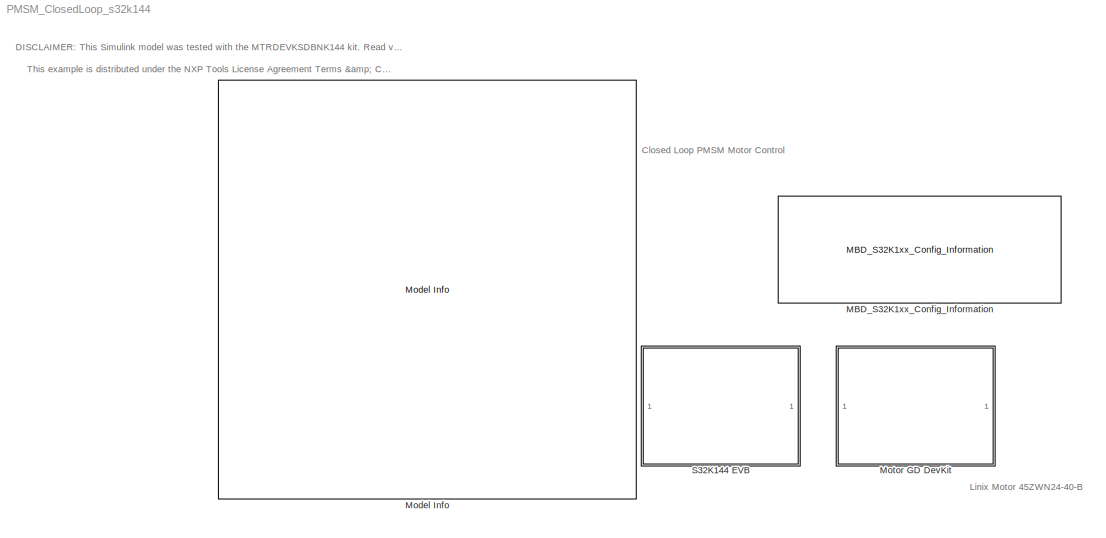
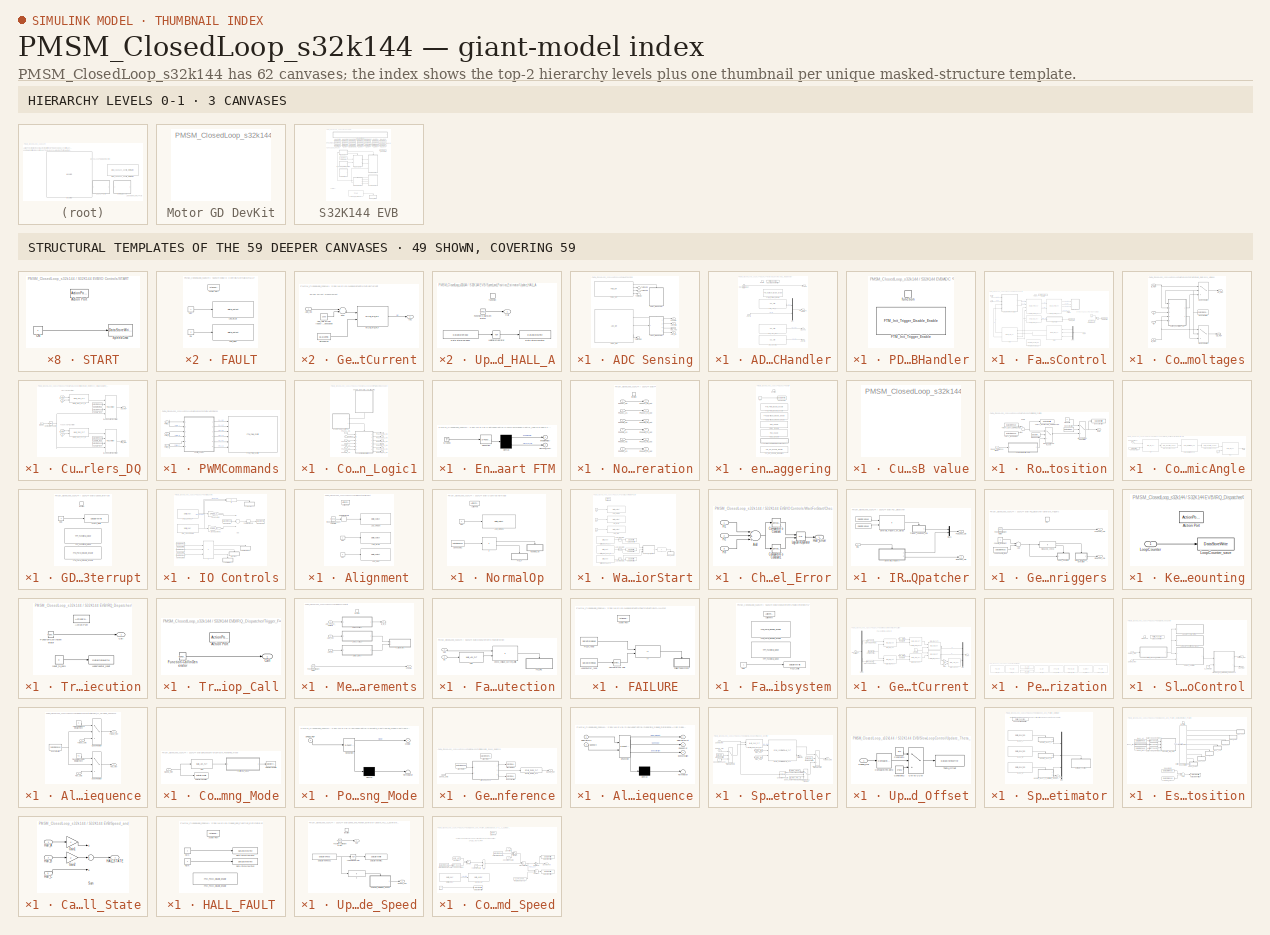
[diagram: thumbnail index - top-2 hierarchy levels (3 canvases) + 49 structural-template representatives of the remaining 59 canvases]
MODEL PMSM_ClosedLoop_s32k144
KIND model
CONFIG InitFcn = mbd_s32k_consistency_checks(bdroot(gcs));
BLOCK [Reference] MBD_S32K1xx_Config_Information  REF=mbd_s32k1xx_ec_toolbox/MBD_S32K1xx_Config_Information
  ADC_PcrCheckEnDis = on
  AMMCLIB_PcrCheckEnDis = on
  CMP_PcrCheckEnDis = on
  CSEc_PcrCheckEnDis = on
  ConfigParams_PcrCheckEnDis = on
  FM_PcrCheckEnDis = on
  FTM_Dual_Edge_Inputs_PcrCheckEnDis = on
  FTM_Hall_Sensor_Inputs_PcrCheckEnDis = on
  FTM_Input_Edge_Inputs_PcrCheckEnDis = on
  FTM_PWM_PcrCheckEnDis = on
  FTM_Quadrature_Inputs_PcrCheckEnDis = on
  FlexCAN_PcrCheckEnDis = on
  FlexIO_PcrCheckEnDis = on
  GPIO_InputPcrCheckEnDis = on
  GPIO_OutputPcrCheckEnDis = on
  LIN_PcrCheckEnDis = on
  LPI2C_PcrCheckEnDis = on
  LPSPI_PcrCheckEnDis = on
  LPTMR_PcrCheckEnDis = on
  LPUART_PcrCheckEnDis = on
  ModelRef_PcrCheckEnDis = on
  PDB0_PcrCheckEnDis = on
  PIT_PcrCheckEnDis = on
  Ports = []
  Profile_PcrCheckEnDis = on
  RTC_PcrCheckEnDis = on
  SBC_PcrCheckEnDis = on
  SID = 3303
  SourceBlock = mbd_s32k1xx_ec_toolbox/MBD_S32K1xx_Config_Information
  SourceType = MBDTBX_EC_S32K
  WDOG_PcrCheckEnDis = on
  config_params = []
  disp_str = Target : S32K144-64KB_SRAM\nPackage : 100-pin\nSystem clock : 80 MHz\nXTAL clock : External 8 MHz\nCompiler : IAR\nTarget Type : FLASH\nDownload Code after build : off\nStep Tick Interrupt Priority : 15
  ds_import_enable = on
  eDMA_PcrCheckEnDis = on
  gcc_target_assemble_opts = -mcpu=cortex-m4 -mthumb -mfloat-abi=hard -mfpu=fpv4-sp-d16 -g
  gcc_target_compile_opts = -mcpu=cortex-m4 -mthumb -mfloat-abi=hard -mfpu=fpv4-sp-d16 -O1 -g -gstrict-dwarf
  gcc_target_default_lcf = on
  gcc_target_link_opts = -mcpu=cortex-m4 -mthumb -mfloat-abi=hard -mfpu=fpv4-sp-d16
  gcc_target_user_lcf = S32K144_64_flash.ld
  ghs_target_assemble_opts = -cpu=cortexm4f -fpu=vfpv4_d16
  ghs_target_compile_opts = -cpu=cortexm4f -thumb -fpu=vfpv4_d16 -fsingle -Ogeneral -Wundef -Wimplicit-int -Wshadow -Wtrigraphs --no_commons --gnu_asm -gnu99 -gdwarf-2 -G
  ghs_target_default_lcf = on
  ghs_target_link_opts = -cpu=cortexm4f -thumb -fpu=vfpv4_d16
  ghs_target_user_lcf = S32K144_64_flash.ld
  iar_target_assemble_opts = --cpu Cortex-M4F --thumb --fpu VFPv4_sp
  iar_target_compile_opts = --cpu=Cortex-M4F --thumb --fpu=VFPv4_sp -Ol -e --debug --dlib_config normal
  iar_target_default_lcf = on
  iar_target_link_opts = --no_exceptions --vfe --inline
  iar_target_user_lcf = S32K144_64_flash.icf
  mbdt_ver = 0
  mcu_steptick_prio = 15
  mcu_steptick_timer = LPIT Channel 0
  mcu_system_clock_freq = 80
  mcu_target_name = S32K144
  mcu_target_package = 64-LQFP
  mcu_target_sram_size = 64KB
  mcu_xtal_freq = External 8
  pil_download_enable = off
  pil_download_rate = 57600
  pil_opensda_drive = Custom
  pil_opensda_drive_custom = D
  pil_uart_instance = 1
  pil_uart_rx = PTC6: [LPUART1_RX | Receive]
  pil_uart_tx = PTC7: [LPUART1_TX | Transmit]
  rbl_com_port = Custom
  rbl_com_port_custom = COM1
  rbl_download_enable = on
  rbl_download_interface = OpenSDA
  rbl_restart_request = off
  rbl_start_delay = 5000
  target_compiler = GCC
  target_memory = FLASH
BLOCK [Reference] Model Info  REF=simulink/Model-Wide\nUtilities/Model Info
  DisplayStringWithTags = Model Name: %<ModelName>\n\nDescription: %<Description>
  Frame = off
  HorizontalTextAlignment = Left
  LeftAlignmentValue = 0.02
  MaskDisplayString = Model Name: PMSM_ClosedLoop_s32k144\\n\\nDescription: Closed Loop Speed Control PMSM example for S32K144 and DevKit MotorGD. \\nThis Simulink model is designed to work with Linix 45ZWN24-40 Motor and validate\\nthat the motor can be based on FOC method. \\n\\nFEATURES:\\n- Speed command is read via SW2 (CW direction) or SW3 (CCW direction)\\n- Motor starts by default in CW direction. Use SW3 to de...<+1673ch>
  Ports = []
  SID = 1384
  SourceBlock = simulink/Model-Wide\nUtilities/Model Info
  SourceProductBaseCode = SL
  SourceProductName = Simulink
  SourceType = CMBlock
BLOCK [SubSystem] Motor GD DevKit
  Ports = []
  RequestExecContextInheritance = off
  SID = 467
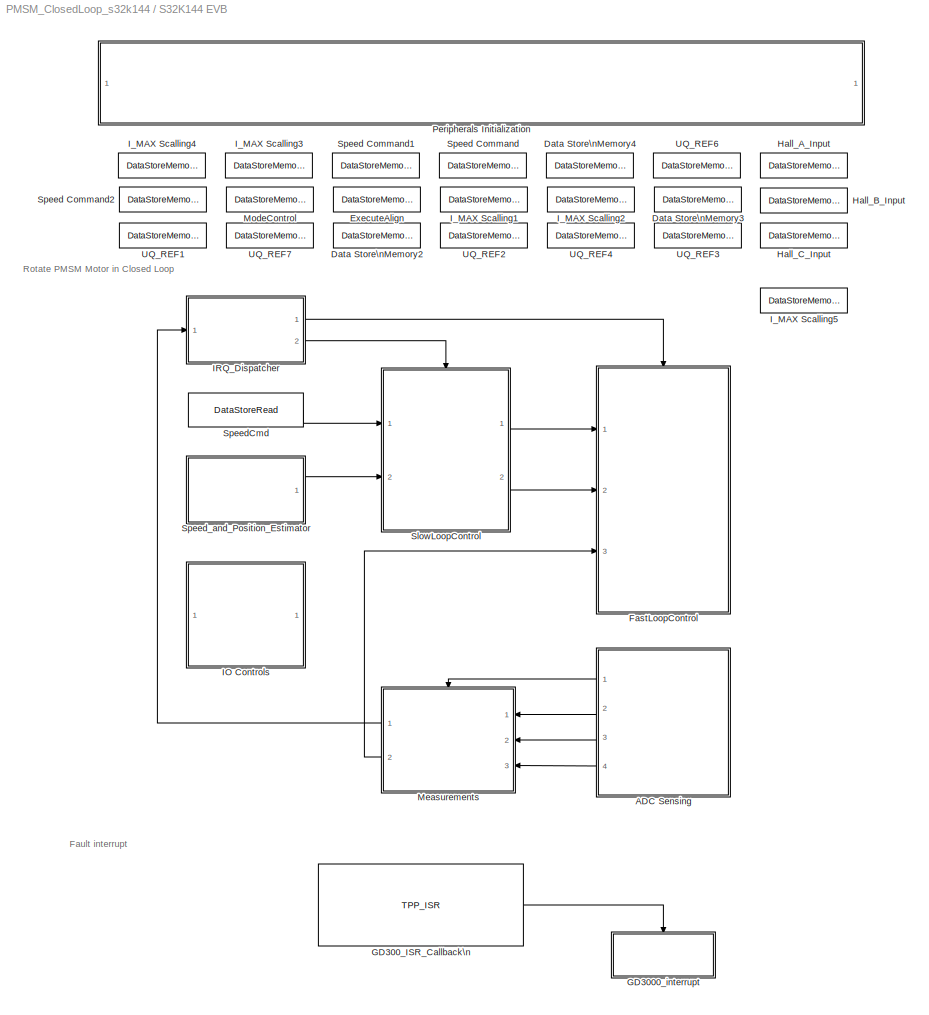
BLOCK [SubSystem] S32K144 EVB
  Ports = []
  RequestExecContextInheritance = off
  SID = 229
BLOCK [SubSystem] S32K144 EVB/ADC Sensing
  Ports = [0, 4]
  RequestExecContextInheritance = off
  SID = 3351
BLOCK [SubSystem] S32K144 EVB/ADC Sensing/ADC1_IRQHandler
  Ports = [1, 4, 0, 1]
  RequestExecContextInheritance = off
  SID = 3352
  TreatAsAtomicUnit = on
BLOCK [Reference] S32K144 EVB/ADC Sensing/ADC1_IRQHandler/ADC_AD4_IA  REF=mbd_s32k1xx_ec_toolbox/Motor Control Blocks/ADC Blocks/ADC_Start
  Ports = [0, 1]
  Priority = 2
  SID = 3355
  SourceBlock = mbd_s32k1xx_ec_toolbox/Motor Control Blocks/ADC Blocks/ADC_Start
  SourceType = adc_s32k_start_block
  adc_chan = PTB0: [ADC0_SE4 | ADC Single Ended Input]
  adc_r = A
  aien = off
  instance = 0
  mcuTargetUpdate = on
BLOCK [Reference] S32K144 EVB/ADC Sensing/ADC1_IRQHandler/ADC_AD6_IDC  REF=mbd_s32k1xx_ec_toolbox/Motor Control Blocks/ADC Blocks/ADC_Start
  Ports = [0, 1]
  Priority = 4
  SID = 3356
  SourceBlock = mbd_s32k1xx_ec_toolbox/Motor Control Blocks/ADC Blocks/ADC_Start
  SourceType = adc_s32k_start_block
  adc_chan = PTD4: [ADC1_SE6 | ADC Single Ended Input]
  adc_r = B
  aien = off
  instance = 1
  mcuTargetUpdate = on
BLOCK [Reference] S32K144 EVB/ADC Sensing/ADC1_IRQHandler/ADC_AD7_VDC  REF=mbd_s32k1xx_ec_toolbox/Motor Control Blocks/ADC Blocks/ADC_Start
  Ports = [0, 1]
  Priority = 3
  SID = 3357
  SourceBlock = mbd_s32k1xx_ec_toolbox/Motor Control Blocks/ADC Blocks/ADC_Start
  SourceType = adc_s32k_start_block
  adc_chan = PTB12: [ADC1_SE7 | ADC Single Ended Input]
  adc_r = A
  aien = off
  instance = 1
  mcuTargetUpdate = on
BLOCK [Inport] S32K144 EVB/ADC Sensing/ADC1_IRQHandler/ADC_IB
  IconDisplay = Port number
  SID = 3353
BLOCK [Reference] S32K144 EVB/ADC Sensing/ADC1_IRQHandler/ADC_IRQHandlerProfiler  REF=mbd_s32k1xx_ec_toolbox/Utility Blocks/Profiler_Function
  Ports = []
  SID = 3358
  SourceBlock = mbd_s32k1xx_ec_toolbox/Utility Blocks/Profiler_Function
  SourceType = profiler_s32k_func
  profile_indx = 0
  showOut = off
BLOCK [Outport] S32K144 EVB/ADC Sensing/ADC1_IRQHandler/ADC_Idc
  IconDisplay = Port number
  Port = 4
  SID = 3369
BLOCK [Outport] S32K144 EVB/ADC Sensing/ADC1_IRQHandler/ADC_Phase_Currents
  IconDisplay = Port number
  Port = 2
  SID = 3367
BLOCK [Outport] S32K144 EVB/ADC Sensing/ADC1_IRQHandler/ADC_Vdc
  IconDisplay = Port number
  Port = 3
  SID = 3368
BLOCK [Reference] S32K144 EVB/ADC Sensing/ADC1_IRQHandler/FTM_Init_Trigger_Disable  REF=mbd_s32k1xx_ec_toolbox/Motor Control Blocks/FTM Blocks/FTM_Init_Trigger_Disable_Enable
  Ports = []
  Priority = 2
  SID = 3361
  SourceBlock = mbd_s32k1xx_ec_toolbox/Motor Control Blocks/FTM Blocks/FTM_Init_Trigger_Disable_Enable
  SourceType = FTM_s32k_init_disen
  action = Disable
  ftmModule = 3
BLOCK [Outport] S32K144 EVB/ADC Sensing/ADC1_IRQHandler/FcnCall
  IconDisplay = Port number
  SID = 3366
BLOCK [Reference] S32K144 EVB/ADC Sensing/ADC1_IRQHandler/Function-Call\nGenerator  REF=simulink/Ports &\nSubsystems/Function-Call\nGenerator
  Ports = [0, 1]
  SID = 3362
  SourceBlock = simulink/Ports &\nSubsystems/Function-Call\nGenerator
  SourceProductBaseCode = SL
  SourceProductName = Simulink
  SourceType = Function-Call Generator
  numberOfIterations = 1
  sample_time = -1
BLOCK [Mux] S32K144 EVB/ADC Sensing/ADC1_IRQHandler/Mux
  DisplayOption = bar
  Inputs = 2
  Ports = [2, 1]
  SID = 3363
BLOCK [TriggerPort] S32K144 EVB/ADC Sensing/ADC1_IRQHandler/function
  Ports = []
  SID = 3354
  StatesWhenEnabling = held
  TriggerType = function-call
  VariantControl = (inherit)
BLOCK [Reference] S32K144 EVB/ADC Sensing/ADC1_ISR  REF=mbd_s32k1xx_ec_toolbox/Motor Control Blocks/ADC Blocks/ADC_ISR
  Ports = [0, 3]
  SID = 3370
  SourceBlock = mbd_s32k1xx_ec_toolbox/Motor Control Blocks/ADC Blocks/ADC_ISR
  SourceType = adc_s32k_isr_block
  instance = 1
  pri = 1
  sc1n = C
BLOCK [Outport] S32K144 EVB/ADC Sensing/ADC_IaIb
  IconDisplay = Port number
  Port = 2
  SID = 3384
BLOCK [Outport] S32K144 EVB/ADC Sensing/ADC_Idc
  IconDisplay = Port number
  Port = 4
  SID = 3386
BLOCK [Outport] S32K144 EVB/ADC Sensing/ADC_Vdc
  IconDisplay = Port number
  Port = 3
  SID = 3385
BLOCK [Outport] S32K144 EVB/ADC Sensing/FcnCall
  IconDisplay = Port number
  SID = 3383
BLOCK [SubSystem] S32K144 EVB/ADC Sensing/PDB1_IRQHandler
  Ports = [0, 0, 0, 1]
  RequestExecContextInheritance = off
  SID = 3371
  TreatAsAtomicUnit = on
BLOCK [Reference] S32K144 EVB/ADC Sensing/PDB1_IRQHandler/FTM_Init_Trigger_Enable  REF=mbd_s32k1xx_ec_toolbox/Motor Control Blocks/FTM Blocks/FTM_Init_Trigger_Disable_Enable
  Ports = []
  SID = 3375
  SourceBlock = mbd_s32k1xx_ec_toolbox/Motor Control Blocks/FTM Blocks/FTM_Init_Trigger_Disable_Enable
  SourceType = FTM_s32k_init_disen
  action = Enable
  ftmModule = 3
BLOCK [TriggerPort] S32K144 EVB/ADC Sensing/PDB1_IRQHandler/function
  Ports = []
  SID = 3372
  StatesWhenEnabling = held
  TriggerType = function-call
  VariantControl = (inherit)
BLOCK [Reference] S32K144 EVB/ADC Sensing/PDB1_ISR  REF=mbd_s32k1xx_ec_toolbox/Motor Control Blocks/PDB Blocks/PDB_ISR
  Ports = [0, 4]
  Priority = 8
  SID = 3378
  SourceBlock = mbd_s32k1xx_ec_toolbox/Motor Control Blocks/PDB Blocks/PDB_ISR
  SourceType = pdb_s32k_isr_block
  pdbModule = 1
  prioInterrupt = 2
  regIdlyIdly = 4999
  regScPdbeie = off
  regScPdbie = on
BLOCK [Terminator] S32K144 EVB/ADC Sensing/Terminator
  SID = 3379
BLOCK [Terminator] S32K144 EVB/ADC Sensing/Terminator1
  SID = 3380
BLOCK [Terminator] S32K144 EVB/ADC Sensing/Terminator2
  SID = 3381
BLOCK [Terminator] S32K144 EVB/ADC Sensing/Terminator6
  SID = 3382
BLOCK [DataStoreMemory] S32K144 EVB/Data Store\nMemory2
  DataStoreName = TIME_CNT
  OutDataTypeStr = uint32
  ReadBeforeWriteMsg = warning
  SID = 4216
  ShowAdditionalParam = off
  SignalType = real
  WriteAfterReadMsg = warning
  WriteAfterWriteMsg = warning
BLOCK [DataStoreMemory] S32K144 EVB/Data Store\nMemory3
  DataStoreName = LoopCounter
  OutDataTypeStr = uint16
  ReadBeforeWriteMsg = warning
  SID = 4222
  ShowAdditionalParam = off
  WriteAfterReadMsg = warning
  WriteAfterWriteMsg = warning
BLOCK [DataStoreMemory] S32K144 EVB/Data Store\nMemory4
  DataStoreName = SPEED_FBK
  OutDataTypeStr = single
  RTWStateStorageClass = ExportedGlobal
  ReadBeforeWriteMsg = warning
  SID = 4223
  ShowAdditionalParam = off
  SignalType = real
  WriteAfterReadMsg = warning
  WriteAfterWriteMsg = warning
BLOCK [DataStoreMemory] S32K144 EVB/ExecuteAlign
  DataStoreName = ExecuteAlign
  OutDataTypeStr = boolean
  RTWStateStorageClass = ExportedGlobal
  ReadBeforeWriteMsg = warning
  SID = 4224
  ShowAdditionalParam = off
  WriteAfterReadMsg = warning
  WriteAfterWriteMsg = warning
BLOCK [SubSystem] S32K144 EVB/FastLoopControl
  Ports = [3, 0, 0, 1]
  RTWFcnNameOpts = Use subsystem name
  RTWSystemCode = Nonreusable function
  RequestExecContextInheritance = off
  SID = 3387
BLOCK [Reference] S32K144 EVB/FastLoopControl/Clarke  REF=ammclib_bam_s32k14x/GMCLIB/bam_flt/GMCLIB_Clark_FLT  (lib defined in mdl_f341c9dd7fd9)
  Ports = [3, 2]
  SID = 4023
  SourceBlock = ammclib_bam_s32k14x/GMCLIB/bam_flt/GMCLIB_Clark_FLT
  SourceType = GMCLIB_Clark_FLT
BLOCK [SubSystem] S32K144 EVB/FastLoopControl/Compute_Reference_Voltages
  Ports = [4, 2]
  RequestExecContextInheritance = off
  SID = 3992
BLOCK [SubSystem] S32K144 EVB/FastLoopControl/Compute_Reference_Voltages/Current_Controllers_DQ
  Ports = [5, 2]
  RTWFcnNameOpts = Use subsystem name
  RTWSystemCode = Nonreusable function
  RequestExecContextInheritance = off
  SID = 3997
  TreatAsAtomicUnit = on
BLOCK [Reference] S32K144 EVB/FastLoopControl/Compute_Reference_Voltages/Current_Controllers_DQ/ D-Axis \nCurrent Controller  REF=simulink/Continuous/PID Controller
  AntiWindupMode = none
  Controller = PI
  ControllerParametersSource = external
  D = 0
  DGainOutDataTypeStr = Inherit: Inherit via internal rule
  DOutMax = []
  DOutMin = []
  DParamDataTypeStr = Inherit: Inherit via internal rule
  DParamMax = []
  DParamMin = []
  DProdOutDataTypeStr = Inherit: Inherit via internal rule
  DifferentiatorICPrevScaledInput = 0
  DifferentiatorOutDataTypeStr = Inherit: Inherit via internal rule
  DifferentiatorOutMax = []
  DifferentiatorOutMin = []
  DivideOutDataTypeStr = Inherit: Inherit via internal rule
  DivideOutMax = []
  DivideOutMin = []
  ExternalReset = rising
  FilterContinuousStateAttributes = ''
  FilterDiffDenAccumDataTypeStr = Inherit: Inherit via internal rule
  FilterDiffDenProductOutputDataTypeStr = Inherit: Inherit via internal rule
  FilterDiffNumAccumDataTypeStr = Inherit: Inherit via internal rule
  FilterDiffNumProductOutputDataTypeStr = Inherit: Inherit via internal rule
  FilterDiffOutCoefDataTypeStr = Inherit: Inherit via internal rule
  FilterDiffOutCoefMax = []
  FilterDiffOutCoefMin = []
  FilterMethod = Forward Euler
  FilterOutDataTypeStr = Inherit: Inherit via internal rule
  FilterOutMax = []
  FilterOutMin = []
  FilterRTWStateStorageClass = Auto
  FilterStateMustResolveToSignalObject = off
  Form = Parallel
  I = 1
  IGainOutDataTypeStr = Inherit: Inherit via internal rule
  IOutMax = []
  IOutMin = []
  IParamDataTypeStr = Inherit: Inherit via internal rule
  IParamMax = []
  IParamMin = []
  IProdOutDataTypeStr = Inherit: Inherit via internal rule
  IgnoreLimit = off
  InitialConditionForFilter = 0
  InitialConditionForIntegrator = 0
  InitialConditionSetting = Auto
  InitialConditionSource = internal
  IntegratorContinuousStateAttributes = ''
  IntegratorMethod = Forward Euler
  IntegratorOutDataTypeStr = Inherit: Inherit via internal rule
  IntegratorOutMax = []
  IntegratorOutMin = []
  IntegratorRTWStateStorageClass = Auto
  IntegratorStateMustResolveToSignalObject = off
  Kb = 1
  KbOutDataTypeStr = Inherit: Inherit via internal rule
  KbOutMax = []
  KbOutMin = []
  KbParamDataTypeStr = Inherit: Inherit via internal rule
  KbParamMax = []
  KbParamMin = []
  Kt = 1
  KtOutDataTypeStr = Inherit: Inherit via internal rule
  KtOutMax = []
  KtOutMin = []
  KtParamDataTypeStr = Inherit: Inherit via internal rule
  KtParamMax = []
  KtParamMin = []
  LimitOutput = on
  LinearizeAsGain = off
  LockScale = off
  LowerSaturationLimit = -0.9
  N = 100
  NGainOutDataTypeStr = Inherit: Inherit via internal rule
  NOutMax = []
  NOutMin = []
  NParamDataTypeStr = Inherit: Inherit via internal rule
  NParamMax = []
  NParamMin = []
  NProdOutDataTypeStr = Inherit: Inherit via internal rule
  P = 1
  PGainOutDataTypeStr = Inherit: Inherit via internal rule
  POutMax = []
  POutMin = []
  PParamDataTypeStr = Inherit: Inherit via internal rule
  PParamMax = []
  PParamMin = []
  PProdOutDataTypeStr = Inherit: Inherit via internal rule
  Ports = [4, 1]
  ReciprocalOutDataTypeStr = Inherit: Inherit via internal rule
  ReciprocalOutMax = []
  ReciprocalOutMin = []
  RndMeth = Simplest
  SID = 4003
  SampleTime = -1
  SaturateOnIntegerOverflow = off
  SaturationOutDataTypeStr = Inherit: Same as input
  SaturationOutMax = []
  SaturationOutMin = []
  SourceBlock = simulink/Continuous/PID Controller
  SourceProductBaseCode = SL
  SourceProductName = Simulink
  SourceType = PID 1dof
  SumAccumDataTypeStr = Inherit: Inherit via internal rule
  SumDAccumDataTypeStr = Inherit: Inherit via internal rule
  SumDOutDataTypeStr = Inherit: Inherit via internal rule
  SumDOutMax = []
  SumDOutMin = []
  SumDenAccumDataTypeStr = Inherit: Inherit via internal rule
  SumDenOutDataTypeStr = Inherit: Inherit via internal rule
  SumDenOutMax = []
  SumDenOutMin = []
  SumI1AccumDataTypeStr = Inherit: Inherit via internal rule
  SumI1OutDataTypeStr = Inherit: Inherit via internal rule
  SumI1OutMax = []
  SumI1OutMin = []
  SumI2AccumDataTypeStr = Inherit: Inherit via internal rule
  SumI2OutDataTypeStr = Inherit: Inherit via internal rule
  SumI2OutMax = []
  SumI2OutMin = []
  SumI3AccumDataTypeStr = Inherit: Inherit via internal rule
  SumI3OutDataTypeStr = Inherit: Inherit via internal rule
  SumI3OutMax = []
  SumI3OutMin = []
  SumNumAccumDataTypeStr = Inherit: Inherit via internal rule
  SumNumOutDataTypeStr = Inherit: Inherit via internal rule
  SumNumOutMax = []
  SumNumOutMin = []
  SumOutDataTypeStr = Inherit: Inherit via internal rule
  SumOutMax = []
  SumOutMin = []
  TimeDomain = Discrete-time
  TrackingMode = off
  TunerSelectOption = Transfer Function Based (PID Tuner App)
  UpperSaturationLimit = 0.9
  UseFilter = on
  ZeroCross = off
BLOCK [Reference] S32K144 EVB/FastLoopControl/Compute_Reference_Voltages/Current_Controllers_DQ/Compare\nTo Zero  REF=simulink/Logic and Bit\nOperations/Compare\nTo Zero
  OutDataTypeStr = boolean
  Ports = [1, 1]
  SID = 4004
  SourceBlock = simulink/Logic and Bit\nOperations/Compare\nTo Zero
  SourceProductBaseCode = SL
  SourceProductName = Simulink
  SourceType = Compare To Zero
  ZeroCross = on
  relop = ==
BLOCK [Inport] S32K144 EVB/FastLoopControl/Compute_Reference_Voltages/Current_Controllers_DQ/ID
  IconDisplay = Port number
  Port = 3
  SID = 4000
BLOCK [Inport] S32K144 EVB/FastLoopControl/Compute_Reference_Voltages/Current_Controllers_DQ/ID_REF
  IconDisplay = Port number
  Port = 2
  SID = 3999
BLOCK [Inport] S32K144 EVB/FastLoopControl/Compute_Reference_Voltages/Current_Controllers_DQ/IQ
  IconDisplay = Port number
  Port = 5
  SID = 4002
BLOCK [Inport] S32K144 EVB/FastLoopControl/Compute_Reference_Voltages/Current_Controllers_DQ/IQ_REF
  IconDisplay = Port number
  Port = 4
  SID = 4001
BLOCK [Reference] S32K144 EVB/FastLoopControl/Compute_Reference_Voltages/Current_Controllers_DQ/MLIB_Sub_FLT_D  REF=ammclib_bam_s32k14x/MLIB/bam_flt/MLIB_Sub_FLT  (lib defined in mdl_f341c9dd7fd9)
  Ports = [2, 1]
  SID = 4005
  SourceBlock = ammclib_bam_s32k14x/MLIB/bam_flt/MLIB_Sub_FLT
  SourceType = MLIB_Sub_FLT
BLOCK [Reference] S32K144 EVB/FastLoopControl/Compute_Reference_Voltages/Current_Controllers_DQ/MLIB_Sub_FLT_Q  REF=ammclib_bam_s32k14x/MLIB/bam_flt/MLIB_Sub_FLT  (lib defined in mdl_f341c9dd7fd9)
  Ports = [2, 1]
  SID = 4006
  SourceBlock = ammclib_bam_s32k14x/MLIB/bam_flt/MLIB_Sub_FLT
  SourceType = MLIB_Sub_FLT
BLOCK [Reference] S32K144 EVB/FastLoopControl/Compute_Reference_Voltages/Current_Controllers_DQ/Q-Axis\nCurrent Controller  REF=simulink/Continuous/PID Controller
  AntiWindupMode = clamping
  Controller = PI
  ControllerParametersSource = external
  D = 0
  DGainOutDataTypeStr = Inherit: Inherit via internal rule
  DOutMax = []
  DOutMin = []
  DParamDataTypeStr = Inherit: Inherit via internal rule
  DParamMax = []
  DParamMin = []
  DProdOutDataTypeStr = Inherit: Inherit via internal rule
  DifferentiatorICPrevScaledInput = 0
  DifferentiatorOutDataTypeStr = Inherit: Inherit via internal rule
  DifferentiatorOutMax = []
  DifferentiatorOutMin = []
  DivideOutDataTypeStr = Inherit: Inherit via internal rule
  DivideOutMax = []
  DivideOutMin = []
  ExternalReset = rising
  FilterContinuousStateAttributes = ''
  FilterDiffDenAccumDataTypeStr = Inherit: Inherit via internal rule
  FilterDiffDenProductOutputDataTypeStr = Inherit: Inherit via internal rule
  FilterDiffNumAccumDataTypeStr = Inherit: Inherit via internal rule
  FilterDiffNumProductOutputDataTypeStr = Inherit: Inherit via internal rule
  FilterDiffOutCoefDataTypeStr = Inherit: Inherit via internal rule
  FilterDiffOutCoefMax = []
  FilterDiffOutCoefMin = []
  FilterMethod = Forward Euler
  FilterOutDataTypeStr = Inherit: Inherit via internal rule
  FilterOutMax = []
  FilterOutMin = []
  FilterRTWStateStorageClass = Auto
  FilterStateMustResolveToSignalObject = off
  Form = Parallel
  I = 1
  IGainOutDataTypeStr = Inherit: Inherit via internal rule
  IOutMax = []
  IOutMin = []
  IParamDataTypeStr = Inherit: Inherit via internal rule
  IParamMax = []
  IParamMin = []
  IProdOutDataTypeStr = Inherit: Inherit via internal rule
  IgnoreLimit = off
  InitialConditionForFilter = 0
  InitialConditionForIntegrator = 0
  InitialConditionSetting = Auto
  InitialConditionSource = internal
  IntegratorContinuousStateAttributes = ''
  IntegratorMethod = Forward Euler
  IntegratorOutDataTypeStr = Inherit: Inherit via internal rule
  IntegratorOutMax = []
  IntegratorOutMin = []
  IntegratorRTWStateStorageClass = Auto
  IntegratorStateMustResolveToSignalObject = off
  Kb = 1
  KbOutDataTypeStr = Inherit: Inherit via internal rule
  KbOutMax = []
  KbOutMin = []
  KbParamDataTypeStr = Inherit: Inherit via internal rule
  KbParamMax = []
  KbParamMin = []
  Kt = 1
  KtOutDataTypeStr = Inherit: Inherit via internal rule
  KtOutMax = []
  KtOutMin = []
  KtParamDataTypeStr = Inherit: Inherit via internal rule
  KtParamMax = []
  KtParamMin = []
  LimitOutput = on
  LinearizeAsGain = off
  LockScale = off
  LowerSaturationLimit = -0.9
  N = 100
  NGainOutDataTypeStr = Inherit: Inherit via internal rule
  NOutMax = []
  NOutMin = []
  NParamDataTypeStr = Inherit: Inherit via internal rule
  NParamMax = []
  NParamMin = []
  NProdOutDataTypeStr = Inherit: Inherit via internal rule
  P = 1
  PGainOutDataTypeStr = Inherit: Inherit via internal rule
  POutMax = []
  POutMin = []
  PParamDataTypeStr = Inherit: Inherit via internal rule
  PParamMax = []
  PParamMin = []
  PProdOutDataTypeStr = Inherit: Inherit via internal rule
  Ports = [4, 1]
  ReciprocalOutDataTypeStr = Inherit: Inherit via internal rule
  ReciprocalOutMax = []
  ReciprocalOutMin = []
  RndMeth = Simplest
  SID = 4007
  SampleTime = -1
  SaturateOnIntegerOverflow = off
  SaturationOutDataTypeStr = Inherit: Same as input
  SaturationOutMax = []
  SaturationOutMin = []
  SourceBlock = simulink/Continuous/PID Controller
  SourceProductBaseCode = SL
  SourceProductName = Simulink
  SourceType = PID 1dof
  SumAccumDataTypeStr = Inherit: Inherit via internal rule
  SumDAccumDataTypeStr = Inherit: Inherit via internal rule
  SumDOutDataTypeStr = Inherit: Inherit via internal rule
  SumDOutMax = []
  SumDOutMin = []
  SumDenAccumDataTypeStr = Inherit: Inherit via internal rule
  SumDenOutDataTypeStr = Inherit: Inherit via internal rule
  SumDenOutMax = []
  SumDenOutMin = []
  SumI1AccumDataTypeStr = Inherit: Inherit via internal rule
  SumI1OutDataTypeStr = Inherit: Inherit via internal rule
  SumI1OutMax = []
  SumI1OutMin = []
  SumI2AccumDataTypeStr = Inherit: Inherit via internal rule
  SumI2OutDataTypeStr = Inherit: Inherit via internal rule
  SumI2OutMax = []
  SumI2OutMin = []
  SumI3AccumDataTypeStr = Inherit: Inherit via internal rule
  SumI3OutDataTypeStr = Inherit: Inherit via internal rule
  SumI3OutMax = []
  SumI3OutMin = []
  SumNumAccumDataTypeStr = Inherit: Inherit via internal rule
  SumNumOutDataTypeStr = Inherit: Inherit via internal rule
  SumNumOutMax = []
  SumNumOutMin = []
  SumOutDataTypeStr = Inherit: Inherit via internal rule
  SumOutMax = []
  SumOutMin = []
  TimeDomain = Discrete-time
  TrackingMode = off
  TunerSelectOption = Transfer Function Based (PID Tuner App)
  UpperSaturationLimit = 0.9
  UseFilter = on
  ZeroCross = off
BLOCK [Inport] S32K144 EVB/FastLoopControl/Compute_Reference_Voltages/Current_Controllers_DQ/Reset
  IconDisplay = Port number
  SID = 3998
BLOCK [Outport] S32K144 EVB/FastLoopControl/Compute_Reference_Voltages/Current_Controllers_DQ/UD_REF
  IconDisplay = Port number
  SID = 4012
BLOCK [Outport] S32K144 EVB/FastLoopControl/Compute_Reference_Voltages/Current_Controllers_DQ/UQ_REF
  IconDisplay = Port number
  Port = 2
  SID = 4013
BLOCK [DataStoreRead] S32K144 EVB/FastLoopControl/Compute_Reference_Voltages/Current_Controllers_DQ/el_angle_inc1
  DataStoreName = CC_KP
  Ports = [0, 1]
  SID = 4008
BLOCK [DataStoreRead] S32K144 EVB/FastLoopControl/Compute_Reference_Voltages/Current_Controllers_DQ/el_angle_inc2
  DataStoreName = CC_KI
  Ports = [0, 1]
  SID = 4009
BLOCK [DataStoreRead] S32K144 EVB/FastLoopControl/Compute_Reference_Voltages/Current_Controllers_DQ/el_angle_inc3
  DataStoreName = CC_KP
  Ports = [0, 1]
  SID = 4010
BLOCK [DataStoreRead] S32K144 EVB/FastLoopControl/Compute_Reference_Voltages/Current_Controllers_DQ/el_angle_inc4
  DataStoreName = CC_KI
  Ports = [0, 1]
  SID = 4011
BLOCK [Switch] S32K144 EVB/FastLoopControl/Compute_Reference_Voltages/D-axis Rotor Align
  Criteria = u2 > Threshold
  InputSameDT = off
  SID = 4016
  SaturateOnIntegerOverflow = off
BLOCK [DataStoreRead] S32K144 EVB/FastLoopControl/Compute_Reference_Voltages/Execure Align
  DataStoreName = ExecuteAlign
  Ports = [0, 1]
  SID = 4017
BLOCK [Inport] S32K144 EVB/FastLoopControl/Compute_Reference_Voltages/ID
  IconDisplay = Port number
  Port = 3
  SID = 3995
BLOCK [Inport] S32K144 EVB/FastLoopControl/Compute_Reference_Voltages/ID_REF
  IconDisplay = Port number
  SID = 3993
BLOCK [Inport] S32K144 EVB/FastLoopControl/Compute_Reference_Voltages/IQ
  IconDisplay = Port number
  Port = 4
  SID = 3996
BLOCK [Inport] S32K144 EVB/FastLoopControl/Compute_Reference_Voltages/IQ_REF
  IconDisplay = Port number
  Port = 2
  SID = 3994
BLOCK [Switch] S32K144 EVB/FastLoopControl/Compute_Reference_Voltages/Q-axis Rotor Align
  Criteria = u2 > Threshold
  InputSameDT = off
  SID = 4018
  SaturateOnIntegerOverflow = off
BLOCK [Outport] S32K144 EVB/FastLoopControl/Compute_Reference_Voltages/UD_REF
  IconDisplay = Port number
  SID = 4019
BLOCK [Outport] S32K144 EVB/FastLoopControl/Compute_Reference_Voltages/UQ_REF
  IconDisplay = Port number
  Port = 2
  SID = 4020
BLOCK [DataStoreRead] S32K144 EVB/FastLoopControl/Data Store\nRead1
  DataStoreName = TIME_CNT
  Ports = [0, 1]
  SID = 4231
BLOCK [DataStoreWrite] S32K144 EVB/FastLoopControl/Data Store\nWrite
  DataStoreName = TIME_CNT
  Ports = [1]
  SID = 4232
BLOCK [Demux] S32K144 EVB/FastLoopControl/Demux
  DisplayOption = bar
  Outputs = 3
  Ports = [1, 3]
  SID = 4024
BLOCK [Reference] S32K144 EVB/FastLoopControl/FOCProfiler  REF=mbd_s32k1xx_ec_toolbox/Utility Blocks/Profiler_Function
  Ports = []
  SID = 3401
  SourceBlock = mbd_s32k1xx_ec_toolbox/Utility Blocks/Profiler_Function
  SourceType = profiler_s32k_func
  profile_indx = 2
  showOut = off
BLOCK [TriggerPort] S32K144 EVB/FastLoopControl/FastLoop
  Ports = []
  SID = 3390
  StatesWhenEnabling = held
  TriggerType = function-call
  VariantControl = (inherit)
BLOCK [Reference] S32K144 EVB/FastLoopControl/FreeMaster_Recorder_Call  REF=mbd_s32k1xx_ec_toolbox/Utility Blocks/FreeMaster_Recorder_Call
  Ports = []
  SID = 3402
  SourceBlock = mbd_s32k1xx_ec_toolbox/Utility Blocks/FreeMaster_Recorder_Call
  SourceType = fm_s32k_recorder_call
BLOCK [Reference] S32K144 EVB/FastLoopControl/GFLIB_SinCos_FLT  REF=ammclib_bam_s32k14x/GFLIB/bam_flt/GFLIB_SinCos_FLT  (lib defined in mdl_f341c9dd7fd9)
  Ports = [1, 2]
  SID = 3403
  SourceBlock = ammclib_bam_s32k14x/GFLIB/bam_flt/GFLIB_SinCos_FLT
  SourceType = GFLIB_SinCos_FLT
BLOCK [Reference] S32K144 EVB/FastLoopControl/GMCLIB_ParkInv_FLT  REF=ammclib_bam_s32k14x/GMCLIB/bam_flt/GMCLIB_ParkInv_FLT  (lib defined in mdl_f341c9dd7fd9)
  Ports = [4, 2]
  SID = 3404
  SourceBlock = ammclib_bam_s32k14x/GMCLIB/bam_flt/GMCLIB_ParkInv_FLT
  SourceType = GMCLIB_ParkInv_FLT
BLOCK [Reference] S32K144 EVB/FastLoopControl/GMCLIB_SvmStd_FLT  REF=ammclib_bam_s32k14x/GMCLIB/bam_flt/GMCLIB_SvmStd_FLT  (lib defined in mdl_f341c9dd7fd9)
  Ports = [2, 4]
  SID = 3405
  SourceBlock = ammclib_bam_s32k14x/GMCLIB/bam_flt/GMCLIB_SvmStd_FLT
  SourceType = GMCLIB_SvmStd_FLT
BLOCK [Inport] S32K144 EVB/FastLoopControl/ID_REF
  IconDisplay = Port number
  SID = 3990
BLOCK [Inport] S32K144 EVB/FastLoopControl/IQ_REF
  IconDisplay = Port number
  Port = 2
  SID = 3991
BLOCK [Inport] S32K144 EVB/FastLoopControl/Ia_Ib_Ic
  IconDisplay = Port number
  Port = 3
  SID = 4022
BLOCK [SubSystem] S32K144 EVB/FastLoopControl/PWMCommands
  Ports = [3]
  RequestExecContextInheritance = off
  SID = 3406
BLOCK [SubSystem] S32K144 EVB/FastLoopControl/PWMCommands/Control_Logic1
  Ports = [6, 6]
  RequestExecContextInheritance = off
  SID = 4328
BLOCK [SubSystem] S32K144 EVB/FastLoopControl/PWMCommands/Control_Logic1/Enable PDB and start FTM
  ErrorFcn = Stateflow.Translate.translate
  PermitHierarchicalResolution = ExplicitOnly
  Ports = [0, 2]
  RequestExecContextInheritance = off
  SFBlockType = Chart
  SID = 4335
  TreatAsAtomicUnit = on
BLOCK [Demux] S32K144 EVB/FastLoopControl/PWMCommands/Control_Logic1/Enable PDB and start FTM/ Demux 
  Outputs = 2
  Ports = [1, 2]
  SID = 4335::33
BLOCK [Ground] S32K144 EVB/FastLoopControl/PWMCommands/Control_Logic1/Enable PDB and start FTM/ Ground 
  SID = 4335::34
BLOCK [S-Function] S32K144 EVB/FastLoopControl/PWMCommands/Control_Logic1/Enable PDB and start FTM/ SFunction 
  EnableBusSupport = on
  FunctionName = sf_sfun
  PortCounts = [1 1]
  Ports = [1, 1]
  SFcnIsStateOwnerBlock = off
  SFunctionDeploymentMode = off
  SID = 4335::32
  Tag = Stateflow S-Function PMSM_ClosedLoop_s32k144 2
BLOCK [Outport] S32K144 EVB/FastLoopControl/PWMCommands/Control_Logic1/Enable PDB and start FTM/Normal_Op()
  IconDisplay = Port number
  Port = 2
  SID = 4335::9
BLOCK [Outport] S32K144 EVB/FastLoopControl/PWMCommands/Control_Logic1/Enable PDB and start FTM/enablePDB()
  IconDisplay = Port number
  SID = 4335::28
BLOCK [SubSystem] S32K144 EVB/FastLoopControl/PWMCommands/Control_Logic1/Normal Operation
  Ports = [6, 6, 0, 1]
  RequestExecContextInheritance = off
  SID = 4336
  TreatAsAtomicUnit = on
BLOCK [Inport] S32K144 EVB/FastLoopControl/PWMCommands/Control_Logic1/Normal Operation/PhaseA_HS
  IconDisplay = Port number
  SID = 4337
BLOCK [Outport] S32K144 EVB/FastLoopControl/PWMCommands/Control_Logic1/Normal Operation/PhaseA_HS_out
  IconDisplay = Port number
  SID = 4344
BLOCK [Inport] S32K144 EVB/FastLoopControl/PWMCommands/Control_Logic1/Normal Operation/PhaseA_LS
  IconDisplay = Port number
  Port = 2
  SID = 4338
BLOCK [Outport] S32K144 EVB/FastLoopControl/PWMCommands/Control_Logic1/Normal Operation/PhaseA_LS_out
  IconDisplay = Port number
  Port = 2
  SID = 4345
BLOCK [Inport] S32K144 EVB/FastLoopControl/PWMCommands/Control_Logic1/Normal Operation/PhaseB_HS
  IconDisplay = Port number
  Port = 3
  SID = 4339
BLOCK [Outport] S32K144 EVB/FastLoopControl/PWMCommands/Control_Logic1/Normal Operation/PhaseB_HS_out
  IconDisplay = Port number
  Port = 3
  SID = 4346
BLOCK [Inport] S32K144 EVB/FastLoopControl/PWMCommands/Control_Logic1/Normal Operation/PhaseB_LS
  IconDisplay = Port number
  Port = 4
  SID = 4340
BLOCK [Outport] S32K144 EVB/FastLoopControl/PWMCommands/Control_Logic1/Normal Operation/PhaseB_LS_out
  IconDisplay = Port number
  Port = 4
  SID = 4347
BLOCK [Inport] S32K144 EVB/FastLoopControl/PWMCommands/Control_Logic1/Normal Operation/PhaseC_HS
  IconDisplay = Port number
  Port = 5
  SID = 4341
BLOCK [Outport] S32K144 EVB/FastLoopControl/PWMCommands/Control_Logic1/Normal Operation/PhaseC_HS_out
  IconDisplay = Port number
  Port = 5
  SID = 4348
BLOCK [Inport] S32K144 EVB/FastLoopControl/PWMCommands/Control_Logic1/Normal Operation/PhaseC_LS
  IconDisplay = Port number
  Port = 6
  SID = 4342
BLOCK [Outport] S32K144 EVB/FastLoopControl/PWMCommands/Control_Logic1/Normal Operation/PhaseC_LS_out
  IconDisplay = Port number
  Port = 6
  SID = 4349
BLOCK [TriggerPort] S32K144 EVB/FastLoopControl/PWMCommands/Control_Logic1/Normal Operation/function
  Ports = []
  SID = 4343
  StatesWhenEnabling = held
  TriggerType = function-call
  VariantControl = (inherit)
BLOCK [Inport] S32K144 EVB/FastLoopControl/PWMCommands/Control_Logic1/PhaseA_HS
  IconDisplay = Port number
  SID = 4329
BLOCK [Outport] S32K144 EVB/FastLoopControl/PWMCommands/Control_Logic1/PhaseA_HS_out
  IconDisplay = Port number
  SID = 4360
BLOCK [Inport] S32K144 EVB/FastLoopControl/PWMCommands/Control_Logic1/PhaseA_LS
  IconDisplay = Port number
  Port = 2
  SID = 4330
BLOCK [Outport] S32K144 EVB/FastLoopControl/PWMCommands/Control_Logic1/PhaseA_LS_out
  IconDisplay = Port number
  Port = 2
  SID = 4361
BLOCK [Inport] S32K144 EVB/FastLoopControl/PWMCommands/Control_Logic1/PhaseB_HS
  IconDisplay = Port number
  Port = 3
  SID = 4331
BLOCK [Outport] S32K144 EVB/FastLoopControl/PWMCommands/Control_Logic1/PhaseB_HS_out
  IconDisplay = Port number
  Port = 3
  SID = 4362
BLOCK [Inport] S32K144 EVB/FastLoopControl/PWMCommands/Control_Logic1/PhaseB_LS
  IconDisplay = Port number
  Port = 4
  SID = 4332
BLOCK [Outport] S32K144 EVB/FastLoopControl/PWMCommands/Control_Logic1/PhaseB_LS_out
  IconDisplay = Port number
  Port = 4
  SID = 4363
BLOCK [Inport] S32K144 EVB/FastLoopControl/PWMCommands/Control_Logic1/PhaseC_HS
  IconDisplay = Port number
  Port = 5
  SID = 4333
BLOCK [Outport] S32K144 EVB/FastLoopControl/PWMCommands/Control_Logic1/PhaseC_HS_out
  IconDisplay = Port number
  Port = 5
  SID = 4364
BLOCK [Inport] S32K144 EVB/FastLoopControl/PWMCommands/Control_Logic1/PhaseC_LS
  IconDisplay = Port number
  Port = 6
  SID = 4334
BLOCK [Outport] S32K144 EVB/FastLoopControl/PWMCommands/Control_Logic1/PhaseC_LS_out
  IconDisplay = Port number
  Port = 6
  SID = 4365
BLOCK [SubSystem] S32K144 EVB/FastLoopControl/PWMCommands/Control_Logic1/enable_FTM_PDB_ADC_triggering
  Ports = [0, 0, 0, 1]
  RTWSystemCode = Inline
  RequestExecContextInheritance = off
  SID = 4350
  TreatAsAtomicUnit = on
BLOCK [SubSystem] S32K144 EVB/FastLoopControl/PWMCommands/Control_Logic1/enable_FTM_PDB_ADC_triggering/Custom code to reload the PDB value
  CopyFcn = cccopyfcn(gcb)
  OpenFcn = ccopenfcn('System Outputs Function')
  Ports = []
  Priority = 6
  RequestExecContextInheritance = off
  SID = 4352
BLOCK [Reference] S32K144 EVB/FastLoopControl/PWMCommands/Control_Logic1/enable_FTM_PDB_ADC_triggering/FTM_Init_Trigger_Disable_Enable  REF=mbd_s32k1xx_ec_toolbox/Motor Control Blocks/FTM Blocks/FTM_Init_Trigger_Disable_Enable
  Ports = []
  Priority = 3
  SID = 4353
  SourceBlock = mbd_s32k1xx_ec_toolbox/Motor Control Blocks/FTM Blocks/FTM_Init_Trigger_Disable_Enable
  SourceType = FTM_s32k_init_disen
  action = Enable
  ftmModule = 3
BLOCK [Reference] S32K144 EVB/FastLoopControl/PWMCommands/Control_Logic1/enable_FTM_PDB_ADC_triggering/FTM_PWM_Disable_Enable  REF=mbd_s32k1xx_ec_toolbox/Motor Control Blocks/FTM Blocks/FTM_PWM_Disable_Enable
  Ports = []
  Priority = 1
  SID = 4354
  SourceBlock = mbd_s32k1xx_ec_toolbox/Motor Control Blocks/FTM Blocks/FTM_PWM_Disable_Enable
  SourceType = FTM_s32k_pwm_disen
  action = Enable
  ftmModule = 3
BLOCK [Constant] S32K144 EVB/FastLoopControl/PWMCommands/Control_Logic1/enable_FTM_PDB_ADC_triggering/ON
  OutDataTypeStr = boolean
  Priority = 2
  SID = 4355
BLOCK [Reference] S32K144 EVB/FastLoopControl/PWMCommands/Control_Logic1/enable_FTM_PDB_ADC_triggering/PDB0_Enable  REF=mbd_s32k1xx_ec_toolbox/Motor Control Blocks/PDB Blocks/PDB_Enable
  Ports = []
  Priority = 4
  SID = 4356
  SourceBlock = mbd_s32k1xx_ec_toolbox/Motor Control Blocks/PDB Blocks/PDB_Enable
  SourceType = pdb_s32k_enable_block
  pdbAction = Enable
  pdbModule = 0
BLOCK [Reference] S32K144 EVB/FastLoopControl/PWMCommands/Control_Logic1/enable_FTM_PDB_ADC_triggering/PDB1_Enable  REF=mbd_s32k1xx_ec_toolbox/Motor Control Blocks/PDB Blocks/PDB_Enable
  Ports = []
  Priority = 5
  SID = 4357
  SourceBlock = mbd_s32k1xx_ec_toolbox/Motor Control Blocks/PDB Blocks/PDB_Enable
  SourceType = pdb_s32k_enable_block
  pdbAction = Enable
  pdbModule = 1
BLOCK [DataStoreWrite] S32K144 EVB/FastLoopControl/PWMCommands/Control_Logic1/enable_FTM_PDB_ADC_triggering/SpeedCmd 
  DataStoreName = READY
  Ports = [1]
  SID = 4358
BLOCK [Reference] S32K144 EVB/FastLoopControl/PWMCommands/Control_Logic1/enable_FTM_PDB_ADC_triggering/TPP_ISR_Enable_Disable\n1  REF=mbd_msd_ec_toolbox/TPP/TPP_ISR_Enable_Disable
  Ports = []
  Priority = 7
  SID = 4359
  SourceBlock = mbd_msd_ec_toolbox/TPP/TPP_ISR_Enable_Disable
  SourceType = tpp_s32k_int_en_dis
  mcuTppIntEn = on
  prioInt = 15
  tppInstance = 0
BLOCK [TriggerPort] S32K144 EVB/FastLoopControl/PWMCommands/Control_Logic1/enable_FTM_PDB_ADC_triggering/function
  Ports = []
  SID = 4351
  StatesWhenEnabling = held
  TriggerType = function-call
  VariantControl = (inherit)
BLOCK [Reference] S32K144 EVB/FastLoopControl/PWMCommands/FTM_PWM_Config  REF=mbd_s32k1xx_ec_toolbox/Motor Control Blocks/FTM Blocks/FTM_PWM_Config
  Ports = [6]
  SID = 3485
  SourceBlock = mbd_s32k1xx_ec_toolbox/Motor Control Blocks/FTM Blocks/FTM_PWM_Config
  SourceType = FTM_s32k_pwm_config_block
  chTrigger0 = off
  chTrigger1 = off
  chTrigger2 = off
  chTrigger3 = off
  chTrigger4 = off
  chTrigger5 = off
  chTrigger6 = off
  chTrigger7 = off
  chan0En = on
  chan0Type = Independent
  chan2En = on
  chan2Type = Independent
  chan4En = on
  chan4Type = Independent
  chan6En = off
  chan6Type = Independent
  chnMatch0 = off
  chnMatch1 = off
  chnMatch2 = off
  chnMatch3 = off
  chnMatch4 = off
  chnMatch5 = off
  chnMatch6 = off
  chnMatch7 = off
  deadtimeNs = 0
  deadtimePrescaler = Divide by 1
  deadtimeTicks = 0
  deadtimeUnits = Nanoseconds
  dutyCycleCh0 = 0
  dutyCycleCh1 = 0
  dutyCycleCh2 = 0
  dutyCycleCh3 = 0
  dutyCycleCh4 = 0
  dutyCycleCh5 = 0
  dutyCycleCh6 = 0.25
  dutyCycleCh7 = 0.25
  dutyCycleSim = off
  fault_disen_0 = off
  fault_disen_1 = off
  fault_disen_2 = off
  fault_disen_3 = off
  fault_filter_0 = off
  fault_filter_1 = off
  fault_filter_2 = off
  fault_filter_3 = off
  fault_pin_0 = None
  fault_pin_1 = None
  fault_pin_2 = None
  fault_pin_3 = None
  fault_polarity_0 = Active High
  fault_polarity_1 = Active high
  fault_polarity_2 = Active high
  fault_polarity_3 = Active high
  ftmMode = Center-Aligned PWM
  ftmModule = 3
  ftmPeriod = 4000
  ftmPrescaler = Divide by 1
  ftmPwmUnits = Hz
  ftmSourceClock = 80 MHz
  initTrigger = off
  mcuTargetUpdate = on
  outFrequency = 20000
  outputComplem0 = Main duplicated
  outputComplem2 = Main duplicated
  outputComplem4 = Main duplicated
  outputComplem6 = Main duplicated
  outputLevel0 = Low
  outputLevel1 = Low
  outputLevel2 = Low
  outputLevel3 = Low
  outputLevel4 = Low
  outputLevel5 = Low
  outputLevel6 = Low
  outputLevel7 = Low
  pinFtmCh0 = PTB8: [FTM3_CH0 | FTM Channel]
  pinFtmCh1 = PTB9: [FTM3_CH1 | FTM Channel]
  pinFtmCh2 = PTB10: [FTM3_CH2 | FTM Channel]
  pinFtmCh3 = PTB11: [FTM3_CH3 | FTM Channel]
  pinFtmCh4 = PTC10: [FTM3_CH4 | FTM Channel]
  pinFtmCh5 = PTC11: [FTM3_CH5 | FTM Channel]
  pinFtmCh6 = PTC12: [FTM3_CH6 | FTM Channel]
  pinFtmCh7 = None
  pinPolCh0 = Active Low
  pinPolCh1 = Active Low
  pinPolCh2 = Active Low
  pinPolCh3 = Active Low
  pinPolCh4 = Active Low
  pinPolCh5 = Active Low
  pinPolCh6 = Active Low
  pinPolCh7 = Active Low
  pwmFaultClearing = Fault control disabled
  pwmFaultFilterValue = 0
  pwmFaultInterrupt = off
  pwmFaultPinState = Safe Value
  pwmFaultPriority = 15
  pwmFaultProtection = off
  pwmSyncAutoClear = off
  pwmSyncCounterInitial = PWM Syncronization
  pwmSyncHwRouting = TRGMUX_FTM7
  pwmSyncInvert = PWM Syncronization
  pwmSyncMaxLoad = on
  pwmSyncMinLoad = off
  pwmSyncOutControl = PWM Syncronization
  pwmSyncOutMask = PWM Syncronization
  pwmSyncPoints = Wait Loading Points
  pwmSyncTrg = Software trigger
  pwmSyncTrg0 = off
  pwmSyncTrg1 = off
  pwmSyncTrg2 = off
  reloadEnable = off
  reloadFrequency = 0
  reloadHCR = 0
  reloadHalfCycle = off
  reloadPriority = 15
  showAdvOpt = on
  startAfterInit = off
  swcontrol_enable = off
BLOCK [Inport] S32K144 EVB/FastLoopControl/PWMCommands/PWM_A
  IconDisplay = Port number
  SID = 4325
BLOCK [Inport] S32K144 EVB/FastLoopControl/PWMCommands/PWM_B
  IconDisplay = Port number
  Port = 2
  SID = 4326
BLOCK [Inport] S32K144 EVB/FastLoopControl/PWMCommands/PWM_C
  IconDisplay = Port number
  Port = 3
  SID = 4327
BLOCK [Reference] S32K144 EVB/FastLoopControl/Park  REF=ammclib_bam_s32k14x/GMCLIB/bam_flt/GMCLIB_Park_FLT  (lib defined in mdl_f341c9dd7fd9)
  Ports = [4, 2]
  SID = 4021
  SourceBlock = ammclib_bam_s32k14x/GMCLIB/bam_flt/GMCLIB_Park_FLT
  SourceType = GMCLIB_Park_FLT
BLOCK [SubSystem] S32K144 EVB/FastLoopControl/Rotor_Position
  Ports = [1, 1]
  RequestExecContextInheritance = off
  SID = 4233
BLOCK [Switch] S32K144 EVB/FastLoopControl/Rotor_Position/Align vs. Normal \nOperation
  InputSameDT = off
  SID = 4235
  SaturateOnIntegerOverflow = off
  Threshold = 1
BLOCK [SubSystem] S32K144 EVB/FastLoopControl/Rotor_Position/ComputeElectricAngle
  Ports = [1, 1]
  RTWFcnNameOpts = Use subsystem name
  RTWSystemCode = Nonreusable function
  RequestExecContextInheritance = off
  SID = 4236
  TreatAsAtomicUnit = on
BLOCK [Reference] S32K144 EVB/FastLoopControl/Rotor_Position/ComputeElectricAngle/DIV  REF=ammclib_bam_s32k14x/MLIB/bam_flt/MLIB_Div_FLT  (lib defined in mdl_f341c9dd7fd9)
  Ports = [2, 1]
  SID = 4238
  SourceBlock = ammclib_bam_s32k14x/MLIB/bam_flt/MLIB_Div_FLT
  SourceType = MLIB_Div_FLT
BLOCK [Reference] S32K144 EVB/FastLoopControl/Rotor_Position/ComputeElectricAngle/GFLIB_IntegratorTR_F32  REF=ammclib_bam_s32k14x/GFLIB/bam_f32/GFLIB_IntegratorTR_F32  (lib defined in mdl_f341c9dd7fd9)
  Ports = [1, 1]
  SID = 4239
  SourceBlock = ammclib_bam_s32k14x/GFLIB/bam_f32/GFLIB_IntegratorTR_F32
  SourceType = GFLIB_IntegratorTR_F32
  f32C1 = (2*pi/60)*PP*Nmax*(C_LST/2/pi)*(2^31)
  u16NShift = 0
BLOCK [Reference] S32K144 EVB/FastLoopControl/Rotor_Position/ComputeElectricAngle/MLIB_ConvertPU_F32FLT  REF=ammclib_bam_s32k14x/MLIB/bam_f32/MLIB_ConvertPU_F32FLT  (lib defined in mdl_f341c9dd7fd9)
  Ports = [1, 1]
  SID = 4240
  SourceBlock = ammclib_bam_s32k14x/MLIB/bam_f32/MLIB_ConvertPU_F32FLT
  SourceType = MLIB_ConvertPU_F32
BLOCK [Reference] S32K144 EVB/FastLoopControl/Rotor_Position/ComputeElectricAngle/MLIB_ConvertPU_FLTF32  REF=ammclib_bam_s32k14x/MLIB/bam_flt/MLIB_ConvertPU_FLTF32  (lib defined in mdl_f341c9dd7fd9)
  Ports = [1, 1]
  SID = 4241
  SourceBlock = ammclib_bam_s32k14x/MLIB/bam_flt/MLIB_ConvertPU_FLTF32
  SourceType = MLIB_ConvertPU_FLT
BLOCK [Reference] S32K144 EVB/FastLoopControl/Rotor_Position/ComputeElectricAngle/MUL  REF=ammclib_bam_s32k14x/MLIB/bam_flt/MLIB_Mul_FLT  (lib defined in mdl_f341c9dd7fd9)
  Ports = [2, 1]
  SID = 4242
  SourceBlock = ammclib_bam_s32k14x/MLIB/bam_flt/MLIB_Mul_FLT
  SourceType = MLIB_Mul_FLT
BLOCK [Constant] S32K144 EVB/FastLoopControl/Rotor_Position/ComputeElectricAngle/SpeedMax_rad//s
  OutDataTypeStr = Inherit: Inherit via back propagation
  SID = 4243
  Value = Nmax*(2*pi/60)
BLOCK [Inport] S32K144 EVB/FastLoopControl/Rotor_Position/ComputeElectricAngle/Speed_Reference [rad//s]
  IconDisplay = Port number
  SID = 4237
BLOCK [Constant] S32K144 EVB/FastLoopControl/Rotor_Position/ComputeElectricAngle/pi
  OutDataTypeStr = Inherit: Inherit via back propagation
  SID = 4244
  Value = pi
BLOCK [Outport] S32K144 EVB/FastLoopControl/Rotor_Position/ComputeElectricAngle/theta
  IconDisplay = Port number
  OutDataTypeStr = single
  SID = 4245
  SignalType = real
  VarSizeSig = No
BLOCK [DataStoreRead] S32K144 EVB/FastLoopControl/Rotor_Position/Execure Align
  DataStoreName = ExecuteAlign
  Ports = [0, 1]
  SID = 4246
BLOCK [DataStoreWrite] S32K144 EVB/FastLoopControl/Rotor_Position/ExecureAlign
  DataStoreName = THETA
  Ports = [1]
  SID = 4247
BLOCK [DataStoreRead] S32K144 EVB/FastLoopControl/Rotor_Position/ModeControl1
  DataStoreName = MODE
  Ports = [0, 1]
  SID = 4248
BLOCK [Switch] S32K144 EVB/FastLoopControl/Rotor_Position/Open vs Closed \nLoop
  Criteria = u2 > Threshold
  InputSameDT = off
  SID = 4249
  SaturateOnIntegerOverflow = off
  Threshold = 1
BLOCK [Inport] S32K144 EVB/FastLoopControl/Rotor_Position/Speed_Reference [rad//s]
  IconDisplay = Port number
  SID = 4234
BLOCK [Constant] S32K144 EVB/FastLoopControl/Rotor_Position/Standstill
  OutDataTypeStr = single
  SID = 4250
  SampleTime = -1
  Value = 0
BLOCK [Sum] S32K144 EVB/FastLoopControl/Rotor_Position/Sum1
  InputSameDT = off
  OutDataTypeStr = Inherit: Inherit via internal rule
  Ports = [2, 1]
  SID = 4251
  SaturateOnIntegerOverflow = off
BLOCK [DataStoreWrite] S32K144 EVB/FastLoopControl/Rotor_Position/THETA_ESTIMATED_CORRECTED
  DataStoreName = THETA_EST_COR
  Ports = [1]
  SID = 4252
BLOCK [DataStoreRead] S32K144 EVB/FastLoopControl/Rotor_Position/THETA_EST_CORRECTED
  DataStoreName = THETA_EST_COR
  Ports = [0, 1]
  SID = 4253
BLOCK [DataStoreRead] S32K144 EVB/FastLoopControl/Rotor_Position/THETA_INCREMENT
  DataStoreName = THETA_INC
  Ports = [0, 1]
  SID = 4254
BLOCK [Outport] S32K144 EVB/FastLoopControl/Rotor_Position/theta
  IconDisplay = Port number
  OutDataTypeStr = single
  SID = 4255
  SignalType = real
  VarSizeSig = No
BLOCK [DataStoreRead] S32K144 EVB/FastLoopControl/Speed_rad//s
  DataStoreName = SPEED_REF
  Ports = [0, 1]
  SID = 4256
BLOCK [Sum] S32K144 EVB/FastLoopControl/Sum
  InputSameDT = off
  OutDataTypeStr = Inherit: Inherit via internal rule
  Ports = [2, 1]
  SID = 4257
  SaturateOnIntegerOverflow = off
BLOCK [Terminator] S32K144 EVB/FastLoopControl/Terminator
  SID = 3488
BLOCK [Constant] S32K144 EVB/FastLoopControl/one
  OutDataTypeStr = uint32
  SID = 4258
BLOCK [SubSystem] S32K144 EVB/GD3000_interrupt
  Ports = [0, 0, 0, 1]
  RequestExecContextInheritance = off
  SID = 4368
  TreatAsAtomicUnit = on
BLOCK [DataStoreWrite] S32K144 EVB/GD3000_interrupt/FAULT_write
  DataStoreName = FAULT
  Ports = [1]
  SID = 4370
BLOCK [Reference] S32K144 EVB/GD3000_interrupt/FTM_PWM_Disable_Enable  REF=mbd_s32k1xx_ec_toolbox/Motor Control Blocks/FTM Blocks/FTM_PWM_Disable_Enable
  Ports = []
  SID = 4371
  SourceBlock = mbd_s32k1xx_ec_toolbox/Motor Control Blocks/FTM Blocks/FTM_PWM_Disable_Enable
  SourceType = FTM_s32k_pwm_disen
  action = Disable
  ftmModule = 3
BLOCK [Constant] S32K144 EVB/GD3000_interrupt/NOK
  OutDataTypeStr = boolean
  SID = 4372
BLOCK [Reference] S32K144 EVB/GD3000_interrupt/TPP_Functional_Mode  REF=mbd_msd_ec_toolbox/TPP/TPP_Functional_Mode
  Ports = []
  SID = 4373
  SourceBlock = mbd_msd_ec_toolbox/TPP/TPP_Functional_Mode
  SourceType = TPP_functional_mode
  action = Sleep
  tppInstance = 0
BLOCK [TriggerPort] S32K144 EVB/GD3000_interrupt/function
  Ports = []
  SID = 4369
  StatesWhenEnabling = held
  TriggerType = function-call
  VariantControl = Variant
BLOCK [Reference] S32K144 EVB/GD300_ISR_Callback\n  REF=mbd_msd_ec_toolbox/TPP/TPP_ISR
  Ports = [0, 1]
  SID = 4374
  SourceBlock = mbd_msd_ec_toolbox/TPP/TPP_ISR
  SourceType = tpp_s32k_isr
  tppInstance = 0
BLOCK [DataStoreMemory] S32K144 EVB/Hall_A_Input
  DataStoreName = HALL_A_Input
  OutDataTypeStr = boolean
  ReadBeforeWriteMsg = warning
  SID = 4161
  ShowAdditionalParam = off
  WriteAfterReadMsg = warning
  WriteAfterWriteMsg = warning
BLOCK [DataStoreMemory] S32K144 EVB/Hall_B_Input
  DataStoreName = HALL_B_Input
  OutDataTypeStr = boolean
  ReadBeforeWriteMsg = warning
  SID = 4162
  ShowAdditionalParam = off
  WriteAfterReadMsg = warning
  WriteAfterWriteMsg = warning
BLOCK [DataStoreMemory] S32K144 EVB/Hall_C_Input
  DataStoreName = HALL_C_Input
  OutDataTypeStr = boolean
  ReadBeforeWriteMsg = warning
  SID = 4163
  ShowAdditionalParam = off
  WriteAfterReadMsg = warning
  WriteAfterWriteMsg = warning
BLOCK [SubSystem] S32K144 EVB/IO Controls
  Ports = []
  RequestExecContextInheritance = off
  SID = 3607
BLOCK [Sum] S32K144 EVB/IO Controls/Add
  InputSameDT = off
  Inputs = ++-
  OutDataTypeStr = Inherit: Inherit via internal rule
  Ports = [3, 1]
  SID = 3608
  SaturateOnIntegerOverflow = off
BLOCK [SubSystem] S32K144 EVB/IO Controls/Alignment
  Ports = [0, 0, 0, 0, 0, 0, 0, 1]
  RequestExecContextInheritance = off
  SID = 3949
  TreatAsAtomicUnit = on
BLOCK [ActionPort] S32K144 EVB/IO Controls/Alignment/Action Port
  SID = 3950
BLOCK [Reference] S32K144 EVB/IO Controls/Alignment/LED_BLUE  REF=mbd_s32k1xx_ec_toolbox/GPIO Blocks/Digital_Output
  Ports = [1]
  SID = 3951
  SourceBlock = mbd_s32k1xx_ec_toolbox/GPIO Blocks/Digital_Output
  SourceType = gpio_s32k_output
  drive_strength = Low
  gpio_pin = PTD0: [PTD0 | Port D I/O]
  init_val = Low
BLOCK [Reference] S32K144 EVB/IO Controls/Alignment/LED_GREEN  REF=mbd_s32k1xx_ec_toolbox/GPIO Blocks/Digital_Output
  Ports = [1]
  SID = 3952
  SourceBlock = mbd_s32k1xx_ec_toolbox/GPIO Blocks/Digital_Output
  SourceType = gpio_s32k_output
  drive_strength = Low
  gpio_pin = PTD16: [PTD16 | Port D I/O]
  init_val = Low
BLOCK [Reference] S32K144 EVB/IO Controls/Alignment/LED_RED  REF=mbd_s32k1xx_ec_toolbox/GPIO Blocks/Digital_Output
  Ports = [1]
  SID = 3953
  SourceBlock = mbd_s32k1xx_ec_toolbox/GPIO Blocks/Digital_Output
  SourceType = gpio_s32k_output
  drive_strength = Low
  gpio_pin = PTD15: [PTD15 | Port D I/O]
  init_val = Low
BLOCK [Constant] S32K144 EVB/IO Controls/Alignment/OFF
  OutDataTypeStr = boolean
  SID = 3954
BLOCK [Constant] S32K144 EVB/IO Controls/Alignment/OFF 
  OutDataTypeStr = boolean
  SID = 3955
BLOCK [Reference] S32K144 EVB/IO Controls/Alignment/Repeating\nSequence\nStair  REF=simulink/Sources/Repeating\nSequence\nStair
  ConRadixGroup = Best Precision: Vector-wise
  LockScale = off
  OutDataType = fixdt('boolean')
  OutDataTypeStr = fixdt('boolean')
  OutMax = []
  OutMin = []
  OutScaling = []
  OutValues = [0 1].'
  OutputDataTypeScalingMode = Specify via dialog
  Ports = [0, 1]
  SID = 3956
  SourceBlock = simulink/Sources/Repeating\nSequence\nStair
  SourceProductBaseCode = SL
  SourceProductName = Simulink
  SourceType = Repeating Sequence Stair
  tsamp = -1
BLOCK [ZeroOrderHold] S32K144 EVB/IO Controls/Alignment/Zero-Order\nHold
  SID = 3957
  SampleTime = 0.1
BLOCK [If] S32K144 EVB/IO Controls/If
  ElseIfExpressions = (u1 == 1) & (u2 ~= 0) & (u3 == 0)
  IfExpression = (u1 == 0) & (u2 == 0) & (u3 == 0)
  NumInputs = 3
  Ports = [3, 3]
  SID = 3959
BLOCK [If] S32K144 EVB/IO Controls/If1
  IfExpression = (u1 == 1) | (u2 == 1)
  NumInputs = 2
  Ports = [2, 1]
  SID = 3611
  ShowElse = off
BLOCK [SubSystem] S32K144 EVB/IO Controls/NormalOp
  Ports = [0, 0, 0, 0, 0, 0, 0, 1]
  RequestExecContextInheritance = off
  SID = 3960
  TreatAsAtomicUnit = on
BLOCK [ActionPort] S32K144 EVB/IO Controls/NormalOp/Action Port
  SID = 3961
BLOCK [SubSystem] S32K144 EVB/IO Controls/NormalOp/FAULT
  Ports = [0, 0, 0, 0, 0, 0, 0, 1]
  RequestExecContextInheritance = off
  SID = 3963
  TreatAsAtomicUnit = on
BLOCK [ActionPort] S32K144 EVB/IO Controls/NormalOp/FAULT/Action Port
  SID = 3964
BLOCK [Reference] S32K144 EVB/IO Controls/NormalOp/FAULT/LED_BLUE  REF=mbd_s32k1xx_ec_toolbox/GPIO Blocks/Digital_Output
  Ports = [1]
  SID = 3965
  SourceBlock = mbd_s32k1xx_ec_toolbox/GPIO Blocks/Digital_Output
  SourceType = gpio_s32k_output
  drive_strength = Low
  gpio_pin = PTD0: [PTD0 | Port D I/O]
  init_val = Low
BLOCK [Reference] S32K144 EVB/IO Controls/NormalOp/FAULT/LED_RED  REF=mbd_s32k1xx_ec_toolbox/GPIO Blocks/Digital_Output
  Ports = [1]
  SID = 3966
  SourceBlock = mbd_s32k1xx_ec_toolbox/GPIO Blocks/Digital_Output
  SourceType = gpio_s32k_output
  drive_strength = Low
  gpio_pin = PTD15: [PTD15 | Port D I/O]
  init_val = Low
BLOCK [Constant] S32K144 EVB/IO Controls/NormalOp/FAULT/OFF
  OutDataTypeStr = boolean
  SID = 3967
BLOCK [Constant] S32K144 EVB/IO Controls/NormalOp/FAULT/ON
  OutDataTypeStr = boolean
  SID = 3968
  Value = 0
BLOCK [If] S32K144 EVB/IO Controls/NormalOp/If
  IfExpression = (u1 == 0)
  Ports = [1, 2]
  SID = 3969
BLOCK [Reference] S32K144 EVB/IO Controls/NormalOp/LED_GREEN  REF=mbd_s32k1xx_ec_toolbox/GPIO Blocks/Digital_Output
  Ports = [1]
  SID = 3970
  SourceBlock = mbd_s32k1xx_ec_toolbox/GPIO Blocks/Digital_Output
  SourceType = gpio_s32k_output
  drive_strength = Low
  gpio_pin = PTD16: [PTD16 | Port D I/O]
  init_val = Low
BLOCK [Constant] S32K144 EVB/IO Controls/NormalOp/OFF 
  OutDataTypeStr = boolean
  SID = 3971
BLOCK [SubSystem] S32K144 EVB/IO Controls/NormalOp/RUNNING_OK
  Ports = [0, 0, 0, 0, 0, 0, 0, 1]
  RequestExecContextInheritance = off
  SID = 3972
  TreatAsAtomicUnit = on
BLOCK [ActionPort] S32K144 EVB/IO Controls/NormalOp/RUNNING_OK/Action Port
  SID = 3973
BLOCK [Reference] S32K144 EVB/IO Controls/NormalOp/RUNNING_OK/LED_BLUE  REF=mbd_s32k1xx_ec_toolbox/GPIO Blocks/Digital_Output
  Ports = [1]
  SID = 3974
  SourceBlock = mbd_s32k1xx_ec_toolbox/GPIO Blocks/Digital_Output
  SourceType = gpio_s32k_output
  drive_strength = Low
  gpio_pin = PTD0: [PTD0 | Port D I/O]
  init_val = Low
BLOCK [Reference] S32K144 EVB/IO Controls/NormalOp/RUNNING_OK/LED_RED  REF=mbd_s32k1xx_ec_toolbox/GPIO Blocks/Digital_Output
  Ports = [1]
  SID = 3975
  SourceBlock = mbd_s32k1xx_ec_toolbox/GPIO Blocks/Digital_Output
  SourceType = gpio_s32k_output
  drive_strength = Low
  gpio_pin = PTD15: [PTD15 | Port D I/O]
  init_val = Low
BLOCK [Constant] S32K144 EVB/IO Controls/NormalOp/RUNNING_OK/OFF
  OutDataTypeStr = boolean
  SID = 3976
BLOCK [Constant] S32K144 EVB/IO Controls/NormalOp/RUNNING_OK/ON
  OutDataTypeStr = boolean
  SID = 3977
  Value = 0
BLOCK [DataStoreRead] S32K144 EVB/IO Controls/NormalOp/SpeedCmd2
  DataStoreName = FAULT
  Ports = [0, 1]
  SID = 3978
BLOCK [SubSystem] S32K144 EVB/IO Controls/START
  Ports = [0, 0, 0, 0, 0, 0, 0, 1]
  RequestExecContextInheritance = off
  SID = 3631
  TreatAsAtomicUnit = on
BLOCK [ActionPort] S32K144 EVB/IO Controls/START/Action Port
  SID = 3632
BLOCK [Constant] S32K144 EVB/IO Controls/START/ON
  OutDataTypeStr = boolean
  SID = 3633
BLOCK [DataStoreWrite] S32K144 EVB/IO Controls/START/SpeedCmd 
  DataStoreName = START
  Ports = [1]
  SID = 3634
BLOCK [Reference] S32K144 EVB/IO Controls/SW2_SpeedUP  REF=mbd_s32k1xx_ec_toolbox/GPIO Blocks/Digital_Input
  Ports = [0, 1]
  SID = 3635
  SourceBlock = mbd_s32k1xx_ec_toolbox/GPIO Blocks/Digital_Input
  SourceType = gpio_s32k_input
  gpio_pin = PTC12: [PTC12 | Port C I/O]
  passive_filter = off
  pull_resistor = None
BLOCK [Reference] S32K144 EVB/IO Controls/SW3_SpeedDOWN  REF=mbd_s32k1xx_ec_toolbox/GPIO Blocks/Digital_Input
  Ports = [0, 1]
  SID = 3636
  SourceBlock = mbd_s32k1xx_ec_toolbox/GPIO Blocks/Digital_Input
  SourceType = gpio_s32k_input
  gpio_pin = PTC13: [PTC13 | Port C I/O]
  passive_filter = off
  pull_resistor = None
BLOCK [DataStoreRead] S32K144 EVB/IO Controls/SpeedCmd
  DataStoreName = SPEED_CMD
  Ports = [0, 1]
  SID = 3637
BLOCK [DataStoreWrite] S32K144 EVB/IO Controls/SpeedCmd 
  DataStoreName = SPEED_CMD
  Ports = [1]
  SID = 3638
BLOCK [DataStoreRead] S32K144 EVB/IO Controls/SpeedCmd1
  DataStoreName = ExecuteAlign
  Ports = [0, 1]
  SID = 3979
BLOCK [DataStoreRead] S32K144 EVB/IO Controls/SpeedCmd2
  DataStoreName = FAULT
  Ports = [0, 1]
  SID = 3980
BLOCK [DataStoreRead] S32K144 EVB/IO Controls/SpeedCmd3
  DataStoreName = START
  Ports = [0, 1]
  SID = 3981
BLOCK [Gain] S32K144 EVB/IO Controls/SpeedDownInc
  Gain = SPEED_DOWN_INC
  OutDataTypeStr = single
  ParamDataTypeStr = Inherit: Inherit via internal rule
  SID = 3641
  SaturateOnIntegerOverflow = off
BLOCK [Gain] S32K144 EVB/IO Controls/SpeedUpInc
  Gain = SPEED_UP_INC
  OutDataTypeStr = single
  ParamDataTypeStr = Inherit: Inherit via internal rule
  SID = 3642
  SaturateOnIntegerOverflow = off
BLOCK [SubSystem] S32K144 EVB/IO Controls/WaitForStart
  Ports = [0, 0, 0, 0, 0, 0, 0, 1]
  RequestExecContextInheritance = off
  SID = 3982
  TreatAsAtomicUnit = on
BLOCK [ActionPort] S32K144 EVB/IO Controls/WaitForStart/Action Port
  SID = 3983
BLOCK [SubSystem] S32K144 EVB/IO Controls/WaitForStart/Check_Hall_Error
  Ports = [3, 1]
  RequestExecContextInheritance = off
  SID = 4264
BLOCK [Sum] S32K144 EVB/IO Controls/WaitForStart/Check_Hall_Error/Add
  InputSameDT = off
  Inputs = +++
  OutDataTypeStr = Inherit: Inherit via internal rule
  Ports = [3, 1]
  SID = 4268
  SaturateOnIntegerOverflow = off
BLOCK [Reference] S32K144 EVB/IO Controls/WaitForStart/Check_Hall_Error/Compare\nTo Constant  REF=simulink/Logic and Bit\nOperations/Compare\nTo Constant
  OutDataTypeStr = boolean
  Ports = [1, 1]
  SID = 4269
  SourceBlock = simulink/Logic and Bit\nOperations/Compare\nTo Constant
  SourceProductBaseCode = SL
  SourceProductName = Simulink
  SourceType = Compare To Constant
  ZeroCross = on
  const = 3
  relop = ==
BLOCK [Reference] S32K144 EVB/IO Controls/WaitForStart/Check_Hall_Error/Compare\nTo Constant1  REF=simulink/Logic and Bit\nOperations/Compare\nTo Constant
  OutDataTypeStr = boolean
  Ports = [1, 1]
  SID = 4270
  SourceBlock = simulink/Logic and Bit\nOperations/Compare\nTo Constant
  SourceProductBaseCode = SL
  SourceProductName = Simulink
  SourceType = Compare To Constant
  ZeroCross = on
  const = 0
  relop = ==
BLOCK [Inport] S32K144 EVB/IO Controls/WaitForStart/Check_Hall_Error/H1
  IconDisplay = Port number
  SID = 4265
BLOCK [Inport] S32K144 EVB/IO Controls/WaitForStart/Check_Hall_Error/H2
  IconDisplay = Port number
  Port = 2
  SID = 4266
BLOCK [Inport] S32K144 EVB/IO Controls/WaitForStart/Check_Hall_Error/H3
  IconDisplay = Port number
  Port = 3
  SID = 4267
BLOCK [Outport] S32K144 EVB/IO Controls/WaitForStart/Check_Hall_Error/Hall_Errorr
  IconDisplay = Port number
  SID = 4272
BLOCK [Logic] S32K144 EVB/IO Controls/WaitForStart/Check_Hall_Error/Logical\nOperator
  AllPortsSameDT = off
  Operator = OR
  OutDataTypeStr = boolean
  Ports = [2, 1]
  SID = 4271
BLOCK [DataStoreWrite] S32K144 EVB/IO Controls/WaitForStart/Data Store\nWrite
  DataStoreName = HALL_A_Input
  Ports = [1]
  SID = 4150
BLOCK [DataStoreWrite] S32K144 EVB/IO Controls/WaitForStart/Data Store\nWrite1
  DataStoreName = HALL_B_Input
  Ports = [1]
  SID = 4151
BLOCK [DataStoreWrite] S32K144 EVB/IO Controls/WaitForStart/Data Store\nWrite2
  DataStoreName = HALL_C_Input
  Ports = [1]
  SID = 4152
BLOCK [Reference] S32K144 EVB/IO Controls/WaitForStart/Digital_Input_HALL_A  REF=mbd_s32k1xx_ec_toolbox/GPIO Blocks/Digital_Input
  Ports = [0, 1]
  SID = 4153
  SourceBlock = mbd_s32k1xx_ec_toolbox/GPIO Blocks/Digital_Input
  SourceType = gpio_s32k_input
  gpio_pin = PTD11: [PTD11 | Port D I/O]
  passive_filter = off
  pull_resistor = None
BLOCK [Reference] S32K144 EVB/IO Controls/WaitForStart/Digital_Input_HALL_B  REF=mbd_s32k1xx_ec_toolbox/GPIO Blocks/Digital_Input
  Ports = [0, 1]
  SID = 4154
  SourceBlock = mbd_s32k1xx_ec_toolbox/GPIO Blocks/Digital_Input
  SourceType = gpio_s32k_input
  gpio_pin = PTD10: [PTD10 | Port D I/O]
  passive_filter = off
  pull_resistor = None
BLOCK [Reference] S32K144 EVB/IO Controls/WaitForStart/Digital_Input_HALL_C  REF=mbd_s32k1xx_ec_toolbox/GPIO Blocks/Digital_Input
  Ports = [0, 1]
  SID = 4282
  SourceBlock = mbd_s32k1xx_ec_toolbox/GPIO Blocks/Digital_Input
  SourceType = gpio_s32k_input
  gpio_pin = PTA1: [PTA1 | Port A I/O]
  passive_filter = off
  pull_resistor = None
BLOCK [SubSystem] S32K144 EVB/IO Controls/WaitForStart/HALL_FAULT
  Ports = [0, 0, 0, 0, 0, 0, 0, 1]
  RequestExecContextInheritance = off
  SID = 4273
  TreatAsAtomicUnit = on
BLOCK [ActionPort] S32K144 EVB/IO Controls/WaitForStart/HALL_FAULT/Action Port
  SID = 4274
BLOCK [DataStoreWrite] S32K144 EVB/IO Controls/WaitForStart/HALL_FAULT/Data Store\nWrite2
  DataStoreName = HALL_ERROR
  Ports = [1]
  SID = 4276
BLOCK [Constant] S32K144 EVB/IO Controls/WaitForStart/HALL_FAULT/NOK 
  OutDataTypeStr = uint8
  SID = 4279
BLOCK [If] S32K144 EVB/IO Controls/WaitForStart/If
  IfExpression = u1 ~= 0
  Ports = [1, 1]
  SID = 4280
  ShowElse = off
BLOCK [Reference] S32K144 EVB/IO Controls/WaitForStart/LED_BLUE  REF=mbd_s32k1xx_ec_toolbox/GPIO Blocks/Digital_Output
  Ports = [1]
  SID = 3984
  SourceBlock = mbd_s32k1xx_ec_toolbox/GPIO Blocks/Digital_Output
  SourceType = gpio_s32k_output
  drive_strength = Low
  gpio_pin = PTD0: [PTD0 | Port D I/O]
  init_val = Low
BLOCK [Reference] S32K144 EVB/IO Controls/WaitForStart/LED_GREEN  REF=mbd_s32k1xx_ec_toolbox/GPIO Blocks/Digital_Output
  Ports = [1]
  SID = 3985
  SourceBlock = mbd_s32k1xx_ec_toolbox/GPIO Blocks/Digital_Output
  SourceType = gpio_s32k_output
  drive_strength = Low
  gpio_pin = PTD16: [PTD16 | Port D I/O]
  init_val = Low
BLOCK [Reference] S32K144 EVB/IO Controls/WaitForStart/LED_RED  REF=mbd_s32k1xx_ec_toolbox/GPIO Blocks/Digital_Output
  Ports = [1]
  SID = 3986
  SourceBlock = mbd_s32k1xx_ec_toolbox/GPIO Blocks/Digital_Output
  SourceType = gpio_s32k_output
  drive_strength = Low
  gpio_pin = PTD15: [PTD15 | Port D I/O]
  init_val = Low
BLOCK [Logic] S32K144 EVB/IO Controls/WaitForStart/Logical\nOperator
  AllPortsSameDT = off
  Operator = NOT
  OutDataTypeStr = boolean
  Ports = [1, 1]
  SID = 4157
BLOCK [Logic] S32K144 EVB/IO Controls/WaitForStart/Logical\nOperator1
  AllPortsSameDT = off
  Operator = NOT
  OutDataTypeStr = boolean
  Ports = [1, 1]
  SID = 4158
BLOCK [Logic] S32K144 EVB/IO Controls/WaitForStart/Logical\nOperator2
  AllPortsSameDT = off
  Operator = NOT
  OutDataTypeStr = boolean
  Ports = [1, 1]
  SID = 4159
BLOCK [Constant] S32K144 EVB/IO Controls/WaitForStart/OFF
  OutDataTypeStr = boolean
  SID = 3987
BLOCK [Constant] S32K144 EVB/IO Controls/WaitForStart/OFF 
  OutDataTypeStr = boolean
  SID = 3988
BLOCK [Constant] S32K144 EVB/IO Controls/WaitForStart/ON 
  OutDataTypeStr = boolean
  SID = 3989
  Value = 0
BLOCK [ZeroOrderHold] S32K144 EVB/IO Controls/Zero-Order\nHold
  SID = 3651
  SampleTime = 0.25
BLOCK [SubSystem] S32K144 EVB/IRQ_Dispatcher
  MinAlgLoopOccurrences = on
  Ports = [1, 2]
  RequestExecContextInheritance = off
  SID = 3492
BLOCK [DataStoreRead] S32K144 EVB/IRQ_Dispatcher/ 
  DataStoreName = READY
  Ports = [0, 1]
  SID = 3494
BLOCK [DataStoreRead] S32K144 EVB/IRQ_Dispatcher/  
  DataStoreName = START
  Ports = [0, 1]
  SID = 3495
BLOCK [Outport] S32K144 EVB/IRQ_Dispatcher/FastLoop_Call
  IconDisplay = Port number
  SID = 3521
BLOCK [SubSystem] S32K144 EVB/IRQ_Dispatcher/Generate_Triggers
  Ports = [0, 2, 0, 1]
  RequestExecContextInheritance = off
  SID = 3496
  TreatAsAtomicUnit = on
BLOCK [Sum] S32K144 EVB/IRQ_Dispatcher/Generate_Triggers/Add
  AccumDataTypeStr = uint16
  OutDataTypeStr = Inherit: Inherit via internal rule
  Ports = [2, 1]
  SID = 3498
  SaturateOnIntegerOverflow = off
BLOCK [Outport] S32K144 EVB/IRQ_Dispatcher/Generate_Triggers/FastLoop_Call
  IconDisplay = Port number
  SID = 3513
BLOCK [Reference] S32K144 EVB/IRQ_Dispatcher/Generate_Triggers/Function-Call\nGenerator  REF=simulink/Ports &\nSubsystems/Function-Call\nGenerator
  Ports = [0, 1]
  Priority = 1
  SID = 3499
  SourceBlock = simulink/Ports &\nSubsystems/Function-Call\nGenerator
  SourceProductBaseCode = SL
  SourceProductName = Simulink
  SourceType = Function-Call Generator
  numberOfIterations = 1
  sample_time = -1
BLOCK [TriggerPort] S32K144 EVB/IRQ_Dispatcher/Generate_Triggers/IRQ
  Ports = []
  SID = 3497
  StatesWhenEnabling = held
  TriggerType = function-call
  VariantControl = (inherit)
BLOCK [SubSystem] S32K144 EVB/IRQ_Dispatcher/Generate_Triggers/Keep_Counting
  Ports = [1, 0, 0, 0, 0, 0, 0, 1]
  RequestExecContextInheritance = off
  SID = 3500
  TreatAsAtomicUnit = on
BLOCK [ActionPort] S32K144 EVB/IRQ_Dispatcher/Generate_Triggers/Keep_Counting/Action Port
  SID = 3502
BLOCK [Inport] S32K144 EVB/IRQ_Dispatcher/Generate_Triggers/Keep_Counting/LoopCounter
  IconDisplay = Port number
  SID = 3501
BLOCK [DataStoreWrite] S32K144 EVB/IRQ_Dispatcher/Generate_Triggers/Keep_Counting/LoopCounter_save
  DataStoreName = LoopCounter
  Ports = [1]
  SID = 3503
BLOCK [DataStoreRead] S32K144 EVB/IRQ_Dispatcher/Generate_Triggers/LoopCounter_read
  DataStoreName = LoopCounter
  Ports = [0, 1]
  SID = 3504
BLOCK [Outport] S32K144 EVB/IRQ_Dispatcher/Generate_Triggers/SlowLoop_Call
  IconDisplay = Port number
  Port = 2
  SID = 3514
BLOCK [If] S32K144 EVB/IRQ_Dispatcher/Generate_Triggers/SlowLoop_check
  IfExpression = u1 >= SPEED_LOOP_CNTR
  Ports = [1, 2]
  SID = 3505
BLOCK [SubSystem] S32K144 EVB/IRQ_Dispatcher/Generate_Triggers/Trigger_SlowLoop_Execution
  Ports = [0, 1, 0, 0, 0, 0, 0, 1]
  RequestExecContextInheritance = off
  SID = 3506
  TreatAsAtomicUnit = on
BLOCK [ActionPort] S32K144 EVB/IRQ_Dispatcher/Generate_Triggers/Trigger_SlowLoop_Execution/Action Port
  SID = 3507
BLOCK [Outport] S32K144 EVB/IRQ_Dispatcher/Generate_Triggers/Trigger_SlowLoop_Execution/Call
  IconDisplay = Port number
  SID = 3511
BLOCK [Reference] S32K144 EVB/IRQ_Dispatcher/Generate_Triggers/Trigger_SlowLoop_Execution/Function-Call\nGenerator  REF=simulink/Ports &\nSubsystems/Function-Call\nGenerator
  Ports = [0, 1]
  SID = 3508
  SourceBlock = simulink/Ports &\nSubsystems/Function-Call\nGenerator
  SourceProductBaseCode = SL
  SourceProductName = Simulink
  SourceType = Function-Call Generator
  numberOfIterations = 1
  sample_time = -1
BLOCK [DataStoreWrite] S32K144 EVB/IRQ_Dispatcher/Generate_Triggers/Trigger_SlowLoop_Execution/LoopCounter_reset
  DataStoreName = LoopCounter
  Ports = [1]
  SID = 3509
BLOCK [Constant] S32K144 EVB/IRQ_Dispatcher/Generate_Triggers/Trigger_SlowLoop_Execution/reset_to_zero
  OutDataTypeStr = uint16
  SID = 3510
  Value = 0
BLOCK [Constant] S32K144 EVB/IRQ_Dispatcher/Generate_Triggers/counter_increment
  OutDataTypeStr = uint16
  SID = 3512
BLOCK [If] S32K144 EVB/IRQ_Dispatcher/Generate_Triggers_on_Startup
  IfExpression = (u1 == 0) & (u2 == 1)
  NumInputs = 2
  Ports = [2, 1]
  SID = 3515
  ShowElse = off
BLOCK [Inport] S32K144 EVB/IRQ_Dispatcher/IRQ
  IconDisplay = Port number
  SID = 3493
BLOCK [Mux] S32K144 EVB/IRQ_Dispatcher/Mux1
  DisplayOption = bar
  Inputs = 2
  Ports = [2, 1]
  SID = 3516
BLOCK [Outport] S32K144 EVB/IRQ_Dispatcher/SlowLoop_Call
  IconDisplay = Port number
  Port = 2
  SID = 3522
BLOCK [SubSystem] S32K144 EVB/IRQ_Dispatcher/Trigger_FastLoop_Call
  Ports = [0, 1, 0, 0, 0, 0, 0, 1]
  RequestExecContextInheritance = off
  SID = 3517
  TreatAsAtomicUnit = on
BLOCK [ActionPort] S32K144 EVB/IRQ_Dispatcher/Trigger_FastLoop_Call/Action Port
  SID = 3518
BLOCK [Outport] S32K144 EVB/IRQ_Dispatcher/Trigger_FastLoop_Call/Call
  IconDisplay = Port number
  SID = 3520
BLOCK [Reference] S32K144 EVB/IRQ_Dispatcher/Trigger_FastLoop_Call/Function-Call\nGenerator  REF=simulink/Ports &\nSubsystems/Function-Call\nGenerator
  Ports = [0, 1]
  SID = 3519
  SourceBlock = simulink/Ports &\nSubsystems/Function-Call\nGenerator
  SourceProductBaseCode = SL
  SourceProductName = Simulink
  SourceType = Function-Call Generator
  numberOfIterations = 1
  sample_time = C_LST
BLOCK [DataStoreMemory] S32K144 EVB/I_MAX Scalling1
  DataStoreName = CC_KP
  InitialValue = 0.2
  OutDataTypeStr = single
  ReadBeforeWriteMsg = warning
  SID = 4225
  ShowAdditionalParam = off
  WriteAfterReadMsg = warning
  WriteAfterWriteMsg = warning
BLOCK [DataStoreMemory] S32K144 EVB/I_MAX Scalling2
  DataStoreName = CC_KI
  InitialValue = 0.25
  OutDataTypeStr = single
  ReadBeforeWriteMsg = warning
  SID = 4226
  ShowAdditionalParam = off
  WriteAfterReadMsg = warning
  WriteAfterWriteMsg = warning
BLOCK [DataStoreMemory] S32K144 EVB/I_MAX Scalling3
  DataStoreName = FAULT
  OutDataTypeStr = boolean
  ReadBeforeWriteMsg = warning
  SID = 3670
  ShowAdditionalParam = off
  WriteAfterReadMsg = warning
  WriteAfterWriteMsg = warning
BLOCK [DataStoreMemory] S32K144 EVB/I_MAX Scalling4
  DataStoreName = START
  OutDataTypeStr = boolean
  ReadBeforeWriteMsg = warning
  SID = 3671
  ShowAdditionalParam = off
  WriteAfterReadMsg = warning
  WriteAfterWriteMsg = warning
BLOCK [DataStoreMemory] S32K144 EVB/I_MAX Scalling5
  DataStoreName = HALL_ERROR
  OutDataTypeStr = uint8
  ReadBeforeWriteMsg = warning
  SID = 4261
  ShowAdditionalParam = off
  WriteAfterReadMsg = warning
  WriteAfterWriteMsg = warning
BLOCK [SubSystem] S32K144 EVB/Measurements
  Ports = [3, 2, 0, 1]
  RequestExecContextInheritance = off
  SID = 3523
  TreatAsAtomicUnit = on
BLOCK [Inport] S32K144 EVB/Measurements/ADC_Idc
  IconDisplay = Port number
  Port = 3
  SID = 3526
BLOCK [Inport] S32K144 EVB/Measurements/ADC_Phase_Currents
  IconDisplay = Port number
  SID = 3524
BLOCK [Inport] S32K144 EVB/Measurements/ADC_Vdc
  IconDisplay = Port number
  Port = 2
  SID = 3525
BLOCK [SubSystem] S32K144 EVB/Measurements/FaultDetection
  Ports = [2]
  RTWSystemCode = Reusable function
  RequestExecContextInheritance = off
  SID = 3652
  TreatAsAtomicUnit = on
BLOCK [Reference] S32K144 EVB/Measurements/FaultDetection/ABS  REF=ammclib_bam_s32k14x/MLIB/bam_flt/MLIB_Abs_FLT  (lib defined in mdl_f341c9dd7fd9)
  Ports = [1, 1]
  SID = 3655
  SourceBlock = ammclib_bam_s32k14x/MLIB/bam_flt/MLIB_Abs_FLT
  SourceType = MLIB_Abs_FLT
BLOCK [If] S32K144 EVB/Measurements/FaultDetection/Check_Voltage_Current_Limits
  IfExpression = (u1 < VDC_UNDERVOLTAGE) | (u1 > VDC_OVERVOLTAGE) | (u2 > IDC_OVERCURRENT)
  NumInputs = 2
  Ports = [2, 1]
  SID = 3656
  ShowElse = off
BLOCK [SubSystem] S32K144 EVB/Measurements/FaultDetection/FAILURE
  Ports = [0, 0, 0, 0, 0, 0, 0, 1]
  RequestExecContextInheritance = off
  SID = 3657
  TreatAsAtomicUnit = on
BLOCK [ActionPort] S32K144 EVB/Measurements/FaultDetection/FAILURE/Action Port
  SID = 3658
BLOCK [Reference] S32K144 EVB/Measurements/FaultDetection/FAILURE/Compare\nTo Two  REF=simulink/Logic and Bit\nOperations/Compare\nTo Constant
  OutDataTypeStr = boolean
  Ports = [1, 1]
  SID = 3659
  SourceBlock = simulink/Logic and Bit\nOperations/Compare\nTo Constant
  SourceProductBaseCode = SL
  SourceProductName = Simulink
  SourceType = Compare To Constant
  ZeroCross = on
  const = 2
  relop = >=
BLOCK [DataStoreRead] S32K144 EVB/Measurements/FaultDetection/FAILURE/FAULT_read
  DataStoreName = FAULT
  Ports = [0, 1]
  SID = 3661
BLOCK [SubSystem] S32K144 EVB/Measurements/FaultDetection/FAILURE/Failed Subsystem
  Ports = [0, 0, 0, 0, 0, 0, 0, 1]
  RequestExecContextInheritance = off
  SID = 3662
  TreatAsAtomicUnit = on
BLOCK [ActionPort] S32K144 EVB/Measurements/FaultDetection/FAILURE/Failed Subsystem/Action Port
  SID = 3663
BLOCK [DataStoreWrite] S32K144 EVB/Measurements/FaultDetection/FAILURE/Failed Subsystem/FAULT_write
  DataStoreName = FAULT
  Ports = [1]
  SID = 3664
BLOCK [Reference] S32K144 EVB/Measurements/FaultDetection/FAILURE/Failed Subsystem/FTM_PWM_Disable_Enable  REF=mbd_s32k1xx_ec_toolbox/Motor Control Blocks/FTM Blocks/FTM_PWM_Disable_Enable
  Ports = []
  Priority = 1
  SID = 3665
  SourceBlock = mbd_s32k1xx_ec_toolbox/Motor Control Blocks/FTM Blocks/FTM_PWM_Disable_Enable
  SourceType = FTM_s32k_pwm_disen
  action = Disable
  ftmModule = 3
BLOCK [Constant] S32K144 EVB/Measurements/FaultDetection/FAILURE/Failed Subsystem/NOK
  OutDataTypeStr = boolean
  SID = 3666
BLOCK [Reference] S32K144 EVB/Measurements/FaultDetection/FAILURE/Failed Subsystem/TPP_Functional_Mode  REF=mbd_msd_ec_toolbox/TPP/TPP_Functional_Mode
  Ports = []
  SID = 4283
  SourceBlock = mbd_msd_ec_toolbox/TPP/TPP_Functional_Mode
  SourceType = TPP_functional_mode
  action = Sleep
  tppInstance = 0
BLOCK [If] S32K144 EVB/Measurements/FaultDetection/FAILURE/If
  IfExpression = (u1 == 1)&(u2==1)
  NumInputs = 2
  Ports = [2, 1]
  SID = 3667
  ShowElse = off
BLOCK [DataStoreRead] S32K144 EVB/Measurements/FaultDetection/FAILURE/LoopCounter_read
  DataStoreName = LoopCounter
  Ports = [0, 1]
  SID = 3668
BLOCK [Inport] S32K144 EVB/Measurements/FaultDetection/Idc
  IconDisplay = Port number
  Port = 2
  SID = 3654
BLOCK [Inport] S32K144 EVB/Measurements/FaultDetection/Vdc
  IconDisplay = Port number
  SID = 3653
BLOCK [Outport] S32K144 EVB/Measurements/FcnCall
  IconDisplay = Port number
  SID = 3591
BLOCK [Reference] S32K144 EVB/Measurements/Function-Call\nGenerator  REF=simulink/Ports &\nSubsystems/Function-Call\nGenerator
  Ports = [0, 1]
  Priority = 4
  SID = 3528
  SourceBlock = simulink/Ports &\nSubsystems/Function-Call\nGenerator
  SourceProductBaseCode = SL
  SourceProductName = Simulink
  SourceType = Function-Call Generator
  numberOfIterations = 1
  sample_time = -1
BLOCK [SubSystem] S32K144 EVB/Measurements/Get3PhCurrent
  Ports = [1, 1]
  Priority = 1
  RTWSystemCode = Reusable function
  RequestExecContextInheritance = off
  SID = 3529
  TreatAsAtomicUnit = on
BLOCK [Constant] S32K144 EVB/Measurements/Get3PhCurrent/12bit ADC scaling
  OutDataTypeStr = single
  SID = 3531
  Value = I_MAX/4095
BLOCK [Inport] S32K144 EVB/Measurements/Get3PhCurrent/ADC_Phase_Currents
  IconDisplay = Port number
  SID = 3530
BLOCK [Constant] S32K144 EVB/Measurements/Get3PhCurrent/Constant4
  OutDataTypeStr = single
  SID = 3532
  Value = PhA_Offset
BLOCK [Constant] S32K144 EVB/Measurements/Get3PhCurrent/Constant5
  OutDataTypeStr = single
  SID = 3533
  Value = 2
BLOCK [Constant] S32K144 EVB/Measurements/Get3PhCurrent/Constant6
  OutDataTypeStr = single
  SID = 3534
  Value = PhB_Offset
BLOCK [DataTypeConversion] S32K144 EVB/Measurements/Get3PhCurrent/Data Type Conversion
  OutDataTypeStr = single
  RndMeth = Floor
  SID = 3535
  SaturateOnIntegerOverflow = off
BLOCK [DataTypeConversion] S32K144 EVB/Measurements/Get3PhCurrent/Data Type Conversion1
  OutDataTypeStr = single
  RndMeth = Floor
  SID = 3536
  SaturateOnIntegerOverflow = off
BLOCK [Demux] S32K144 EVB/Measurements/Get3PhCurrent/Demux
  DisplayOption = bar
  Outputs = 2
  Ports = [1, 2]
  SID = 3537
BLOCK [Gain] S32K144 EVB/Measurements/Get3PhCurrent/Gain
  Gain = -1
  OutDataTypeStr = single
  ParamDataTypeStr = Inherit: Inherit via internal rule
  SID = 3538
  SaturateOnIntegerOverflow = off
BLOCK [Gain] S32K144 EVB/Measurements/Get3PhCurrent/Gain1
  Gain = -1
  OutDataTypeStr = single
  ParamDataTypeStr = Inherit: Inherit via internal rule
  SID = 3539
  SaturateOnIntegerOverflow = off
BLOCK [Outport] S32K144 EVB/Measurements/Get3PhCurrent/Ia_Ib_Ic
  IconDisplay = Port number
  SID = 3548
BLOCK [Reference] S32K144 EVB/Measurements/Get3PhCurrent/MLIB_Add_FLT  REF=ammclib_bam_s32k14x/MLIB/bam_flt/MLIB_Add_FLT  (lib defined in mdl_f341c9dd7fd9)
  Ports = [2, 1]
  SID = 3540
  SourceBlock = ammclib_bam_s32k14x/MLIB/bam_flt/MLIB_Add_FLT
  SourceType = MLIB_Add_FLT
BLOCK [Reference] S32K144 EVB/Measurements/Get3PhCurrent/MLIB_Mul_FLT  REF=ammclib_bam_s32k14x/MLIB/bam_flt/MLIB_Mul_FLT  (lib defined in mdl_f341c9dd7fd9)
  Ports = [2, 1]
  SID = 3541
  SourceBlock = ammclib_bam_s32k14x/MLIB/bam_flt/MLIB_Mul_FLT
  SourceType = MLIB_Mul_FLT
BLOCK [Reference] S32K144 EVB/Measurements/Get3PhCurrent/MLIB_Mul_FLT1  REF=ammclib_bam_s32k14x/MLIB/bam_flt/MLIB_Mul_FLT  (lib defined in mdl_f341c9dd7fd9)
  Ports = [2, 1]
  SID = 3542
  SourceBlock = ammclib_bam_s32k14x/MLIB/bam_flt/MLIB_Mul_FLT
  SourceType = MLIB_Mul_FLT
BLOCK [Reference] S32K144 EVB/Measurements/Get3PhCurrent/MLIB_Mul_FLT2  REF=ammclib_bam_s32k14x/MLIB/bam_flt/MLIB_Mul_FLT  (lib defined in mdl_f341c9dd7fd9)
  Ports = [2, 1]
  SID = 3543
  SourceBlock = ammclib_bam_s32k14x/MLIB/bam_flt/MLIB_Mul_FLT
  SourceType = MLIB_Mul_FLT
BLOCK [Reference] S32K144 EVB/Measurements/Get3PhCurrent/MLIB_Mul_FLT3  REF=ammclib_bam_s32k14x/MLIB/bam_flt/MLIB_Mul_FLT  (lib defined in mdl_f341c9dd7fd9)
  Ports = [2, 1]
  SID = 3544
  SourceBlock = ammclib_bam_s32k14x/MLIB/bam_flt/MLIB_Mul_FLT
  SourceType = MLIB_Mul_FLT
BLOCK [Reference] S32K144 EVB/Measurements/Get3PhCurrent/MLIB_Sub_FLT  REF=ammclib_bam_s32k14x/MLIB/bam_flt/MLIB_Sub_FLT  (lib defined in mdl_f341c9dd7fd9)
  Ports = [2, 1]
  SID = 3545
  SourceBlock = ammclib_bam_s32k14x/MLIB/bam_flt/MLIB_Sub_FLT
  SourceType = MLIB_Sub_FLT
BLOCK [Reference] S32K144 EVB/Measurements/Get3PhCurrent/MLIB_Sub_FLT1  REF=ammclib_bam_s32k14x/MLIB/bam_flt/MLIB_Sub_FLT  (lib defined in mdl_f341c9dd7fd9)
  Ports = [2, 1]
  SID = 3546
  SourceBlock = ammclib_bam_s32k14x/MLIB/bam_flt/MLIB_Sub_FLT
  SourceType = MLIB_Sub_FLT
BLOCK [Mux] S32K144 EVB/Measurements/Get3PhCurrent/Mux
  DisplayOption = bar
  Inputs = 3
  Ports = [3, 1]
  SID = 3547
BLOCK [SubSystem] S32K144 EVB/Measurements/GetIdcCurrent
  Ports = [1, 1]
  Priority = 3
  RTWFcnNameOpts = Use subsystem name
  RTWSystemCode = Reusable function
  RequestExecContextInheritance = off
  SID = 3550
  TreatAsAtomicUnit = on
BLOCK [Constant] S32K144 EVB/Measurements/GetIdcCurrent/ADC_AD6 offset \nand \nLogic power supply compensation
  OutDataTypeStr = uint32
  SID = 3552
  Value = 2090
BLOCK [Inport] S32K144 EVB/Measurements/GetIdcCurrent/ADC_Idc
  IconDisplay = Port number
  SID = 3551
BLOCK [Outport] S32K144 EVB/Measurements/GetIdcCurrent/Idc
  IconDisplay = Port number
  SID = 3556
BLOCK [Reference] S32K144 EVB/Measurements/GetIdcCurrent/MLIB_Mul_FLT  REF=ammclib_bam_s32k14x/MLIB/bam_flt/MLIB_Mul_FLT  (lib defined in mdl_f341c9dd7fd9)
  Ports = [2, 1]
  SID = 3553
  SourceBlock = ammclib_bam_s32k14x/MLIB/bam_flt/MLIB_Mul_FLT
  SourceType = MLIB_Mul_FLT
BLOCK [Sum] S32K144 EVB/Measurements/GetIdcCurrent/Sum
  InputSameDT = off
  Inputs = +-
  OutDataTypeStr = single
  Ports = [2, 1]
  SID = 3554
  SaturateOnIntegerOverflow = off
BLOCK [Constant] S32K144 EVB/Measurements/GetIdcCurrent/bits2amps
  OutDataTypeStr = single
  SID = 3555
  Value = 16.5/2048
BLOCK [SubSystem] S32K144 EVB/Measurements/GetVdcVoltage
  Ports = [1, 1]
  Priority = 2
  RTWFcnNameOpts = Use subsystem name
  RTWSystemCode = Reusable function
  RequestExecContextInheritance = off
  SID = 3558
  TreatAsAtomicUnit = on
BLOCK [Constant] S32K144 EVB/Measurements/GetVdcVoltage/ADC1_AD7_Offset
  OutDataTypeStr = uint32
  SID = 3560
  Value = 17
BLOCK [Inport] S32K144 EVB/Measurements/GetVdcVoltage/ADC_Vdc
  IconDisplay = Port number
  SID = 3559
BLOCK [Sum] S32K144 EVB/Measurements/GetVdcVoltage/Add
  AccumDataTypeStr = uint32
  Inputs = -+
  OutDataTypeStr = Inherit: Inherit via back propagation
  OutMax = 4095
  OutMin = 0
  Ports = [2, 1]
  SID = 3561
  SaturateOnIntegerOverflow = off
BLOCK [Reference] S32K144 EVB/Measurements/GetVdcVoltage/MLIB_Mul_FLT  REF=ammclib_bam_s32k14x/MLIB/bam_flt/MLIB_Mul_FLT  (lib defined in mdl_f341c9dd7fd9)
  Ports = [2, 1]
  SID = 3562
  SourceBlock = ammclib_bam_s32k14x/MLIB/bam_flt/MLIB_Mul_FLT
  SourceType = MLIB_Mul_FLT
BLOCK [Outport] S32K144 EVB/Measurements/GetVdcVoltage/Vdc
  IconDisplay = Port number
  SID = 3564
BLOCK [Constant] S32K144 EVB/Measurements/GetVdcVoltage/bits2volts
  OutDataTypeStr = single
  SID = 3563
  Value = 45/4095
BLOCK [Outport] S32K144 EVB/Measurements/Ia_Ib_Ic
  IconDisplay = Port number
  Port = 2
  SID = 3592
BLOCK [TriggerPort] S32K144 EVB/Measurements/function
  Ports = []
  SID = 3527
  StatesWhenEnabling = held
  TriggerType = function-call
  VariantControl = (inherit)
BLOCK [DataStoreMemory] S32K144 EVB/ModeControl
  DataStoreName = MODE
  OutDataTypeStr = uint16
  OutMax = 2
  OutMin = 0
  RTWStateStorageClass = ExportedGlobal
  ReadBeforeWriteMsg = warning
  SID = 4228
  ShowAdditionalParam = off
  WriteAfterReadMsg = warning
  WriteAfterWriteMsg = warning
BLOCK [SubSystem] S32K144 EVB/Peripherals Initialization
  Ports = []
  Priority = 1
  RequestExecContextInheritance = off
  SID = 3680
BLOCK [Reference] S32K144 EVB/Peripherals Initialization/ADC0_Init  REF=mbd_s32k1xx_ec_toolbox/Motor Control Blocks/ADC Blocks/ADC_Config
  Ports = []
  Priority = 3
  SID = 3681
  SourceBlock = mbd_s32k1xx_ec_toolbox/Motor Control Blocks/ADC Blocks/ADC_Config
  SourceType = adc_s32k_config_block
  acfe = off
  acfgt = off
  acren = off
  adco = off
  adiclk = alternate clock 1
  adiv = input clock
  adtrg = hardware
  avge = off
  avgs = 4 samples
  cv1 = 0
  cv2 = 0
  instance = 0
  mode = 12-bit conversion
  pretrgsel = PDB pre-trigger
  refsel = Vrefh and Vrefl
  show_adv_opts = on
  smplts = 2
  supply_monitoring = off
  swpretrg = Disabled
  trgsel = PDB output
BLOCK [Reference] S32K144 EVB/Peripherals Initialization/ADC1_IRQ  REF=mbd_s32k1xx_ec_toolbox/Motor Control Blocks/ADC Blocks/ADC_Start
  Ports = []
  Priority = 5
  SID = 3682
  SourceBlock = mbd_s32k1xx_ec_toolbox/Motor Control Blocks/ADC Blocks/ADC_Start
  SourceType = adc_s32k_start_block
  adc_chan = PTB16: [ADC1_SE15 | ADC Single Ended Input]
  adc_r = C
  aien = on
  instance = 1
  mcuTargetUpdate = on
BLOCK [Reference] S32K144 EVB/Peripherals Initialization/ADC1_Init  REF=mbd_s32k1xx_ec_toolbox/Motor Control Blocks/ADC Blocks/ADC_Config
  Ports = []
  Priority = 4
  SID = 3683
  SourceBlock = mbd_s32k1xx_ec_toolbox/Motor Control Blocks/ADC Blocks/ADC_Config
  SourceType = adc_s32k_config_block
  acfe = off
  acfgt = off
  acren = off
  adco = off
  adiclk = alternate clock 1
  adiv = input clock
  adtrg = hardware
  avge = off
  avgs = 4 samples
  cv1 = 0
  cv2 = 0
  instance = 1
  mode = 12-bit conversion
  pretrgsel = PDB pre-trigger
  refsel = Vrefh and Vrefl
  show_adv_opts = on
  smplts = 2
  supply_monitoring = off
  swpretrg = Disabled
  trgsel = PDB output
BLOCK [Reference] S32K144 EVB/Peripherals Initialization/ADC_Interleave  REF=mbd_s32k1xx_ec_toolbox/Motor Control Blocks/ADC Blocks/ADC_Interleave
  Ports = []
  SID = 3852
  SourceBlock = mbd_s32k1xx_ec_toolbox/Motor Control Blocks/ADC Blocks/ADC_Interleave
  SourceType = adc_s32k_interleave_block
  adcInterleaveInit = on
  adcInterleavePins = PTB1 to ADC0_SE5 and ADC1_SE15
BLOCK [Reference] S32K144 EVB/Peripherals Initialization/FreeMaster_Config  REF=mbd_s32k1xx_ec_toolbox/Utility Blocks/FreeMaster_Config
  Ports = []
  SID = 3684
  SourceBlock = mbd_s32k1xx_ec_toolbox/Utility Blocks/FreeMaster_Config
  SourceType = fm_s32k_config
  baudrate = 115200
  comm_buffer_size = 255
  comm_buffer_size_auto = on
  comm_rqueue_size = 32
  comm_rqueue_size_default = on
  interface = LPUART1
  isr_prio = 10
  max_rec_vars = 8
  max_scope_vars = 8
  mode = Short Interrupt
  rec_buff_size = 8192
  rec_timebase = 100
  rec_timebase_unit = microseconds
  rxd = PTC6: [LPUART1_RX | Receive]
  show_adv_opts = on
  txd = PTC7: [LPUART1_TX | Transmit]
  use_recorder = on
  use_scope = on
BLOCK [Reference] S32K144 EVB/Peripherals Initialization/GD3000_Config  REF=mbd_msd_ec_toolbox/TPP/TPP_Config
  Ports = []
  Priority = 1
  SID = 4366
  SourceBlock = mbd_msd_ec_toolbox/TPP/TPP_Config
  SourceType = tpp_s32k_config
  desatEvent = off
  desatMode = on
  framingEvent = on
  fullonMode = off
  initTppNow = on
  lockMode = off
  mcuTppIntEn = off
  overcurrentEvent = on
  overtempEvent = on
  phaseEvent = off
  prioInt = 15
  resetEvent = on
  tppCsPin = PTB5: [PTB5 | Port B I/O]
  tppDeadtime = 500
  tppEn1Pin = PTA2: [PTA2 | Port A I/O]
  tppEn2Pin = PTA2: [PTA2 | Port A I/O]
  tppFirstChHS = on
  tppInstance = 0
  tppIntPin = PTE10: [PTE10 | Port E I/O]
  tppPair0_1 = on
  tppPair2_3 = on
  tppPair4_5 = on
  tppPair6_7 = off
  tppPwmModule = Please add FTM block to workspace
  tppRstPin = PTA3: [PTA3 | Port A I/O]
  tppSpiInst = Please add SPI block to workspace
  vlsEvent = on
  writeErrEvent = on
BLOCK [Reference] S32K144 EVB/Peripherals Initialization/LPSPI_Config\n  REF=mbd_s32k1xx_ec_toolbox/Communication Blocks/SPI Blocks/LPSPI_Config\n
  BaudRate = 1000000
  BitOrder = MSB first
  CPHA = 1
  CPOL = 0
  ContinuousTransfer = off
  InstanceNumber = 0
  PCSPol = ActiveLow
  Ports = []
  Role = Master
  SID = 3685
  ShowAdvanced = on
  SourceBlock = mbd_s32k1xx_ec_toolbox/Communication Blocks/SPI Blocks/LPSPI_Config\n
  SourceType = lpspi_s32k_config
  TransferSize = 8
  WhichPCS = 1
  pcs0 = None
  pcs1 = PTB5: [LPSPI0_PCS1 | Peripheral Chip Select 1]
  pcs2 = None
  pcs3 = None
  sck = PTB2: [LPSPI0_SCK | LPSPI Serial Clock I/O]
  sin = PTB3: [LPSPI0_SIN | LPSPI Serial Data Input]
  sout = PTB4: [LPSPI0_SOUT | LPSPI Serial Data Output]
BLOCK [Reference] S32K144 EVB/Peripherals Initialization/PDB0_Init  REF=mbd_s32k1xx_ec_toolbox/Motor Control Blocks/PDB Blocks/PDB_Config
  Ports = []
  Priority = 1
  SID = 3686
  SourceBlock = mbd_s32k1xx_ec_toolbox/Motor Control Blocks/PDB Blocks/PDB_Config
  SourceType = pdb_s32k_config_block
  enable_pdb_init = off
  pdbModule = 0
  regCh0C1Bb0 = off
  regCh0C1Bb1 = off
  regCh0C1Bb2 = off
  regCh0C1Bb3 = off
  regCh0C1Bb4 = off
  regCh0C1Bb5 = off
  regCh0C1Bb6 = off
  regCh0C1Bb7 = off
  regCh0C1En0 = on
  regCh0C1En1 = off
  regCh0C1En2 = off
  regCh0C1En3 = off
  regCh0C1En4 = off
  regCh0C1En5 = off
  regCh0C1En6 = off
  regCh0C1En7 = off
  regCh0C1Tos0 = Pre-trigger is in delay mode
  regCh0C1Tos1 = Pre-trigger is in delay mode
  regCh0C1Tos2 = Pre-trigger is in delay mode
  regCh0C1Tos3 = Pre-trigger is in delay mode
  regCh0C1Tos4 = Pre-trigger is in delay mode
  regCh0C1Tos5 = Pre-trigger is in delay mode
  regCh0C1Tos6 = Pre-trigger is in delay mode
  regCh0C1Tos7 = Pre-trigger is in delay mode
  regCh0DlyDly0 = 2000
  regCh0DlyDly1 = 0
  regCh0DlyDly2 = 0
  regCh0DlyDly3 = 0
  regCh0DlyDly4 = 0
  regCh0DlyDly5 = 0
  regCh0DlyDly6 = 0
  regCh0DlyDly7 = 0
  regCh1C1Bb0 = off
  regCh1C1Bb1 = off
  regCh1C1Bb2 = off
  regCh1C1Bb3 = off
  regCh1C1Bb4 = off
  regCh1C1Bb5 = off
  regCh1C1Bb6 = off
  regCh1C1Bb7 = off
  regCh1C1En0 = off
  regCh1C1En1 = off
  regCh1C1En2 = off
  regCh1C1En3 = off
  regCh1C1En4 = off
  regCh1C1En5 = off
  regCh1C1En6 = off
  regCh1C1En7 = off
  regCh1C1Tos0 = Pre-trigger is in delay mode
  regCh1C1Tos1 = Pre-trigger is in delay mode
  regCh1C1Tos2 = Pre-trigger is in delay mode
  regCh1C1Tos3 = Pre-trigger is in delay mode
  regCh1C1Tos4 = Pre-trigger is in delay mode
  regCh1C1Tos5 = Pre-trigger is in delay mode
  regCh1C1Tos6 = Pre-trigger is in delay mode
  regCh1C1Tos7 = Pre-trigger is in delay mode
  regCh1DlyDly0 = 0
  regCh1DlyDly1 = 0
  regCh1DlyDly2 = 0
  regCh1DlyDly3 = 0
  regCh1DlyDly4 = 0
  regCh1DlyDly5 = 0
  regCh1DlyDly6 = 0
  regCh1DlyDly7 = 0
  regModModulus = 5000
  regPo0DlyDly1 = 0
  regPo0DlyDly2 = 0
  regPoenPoen0 = off
  regScCont = One-Shot
  regScMult = 1
  regScPrescaler = 1
  regScTrgsel = External (TRGMUX_PDB_TRIG)
  show_adv_opts = on
  trgMuxSel = FTM3 Initialize Trigger
  trgMuxSelPin = PTB5: [TRGMUX_IN0 | Trigger Mux Input]
BLOCK [Reference] S32K144 EVB/Peripherals Initialization/PDB1_Init  REF=mbd_s32k1xx_ec_toolbox/Motor Control Blocks/PDB Blocks/PDB_Config
  Ports = []
  Priority = 2
  SID = 3687
  SourceBlock = mbd_s32k1xx_ec_toolbox/Motor Control Blocks/PDB Blocks/PDB_Config
  SourceType = pdb_s32k_config_block
  enable_pdb_init = off
  pdbModule = 1
  regCh0C1Bb0 = off
  regCh0C1Bb1 = off
  regCh0C1Bb2 = off
  regCh0C1Bb3 = off
  regCh0C1Bb4 = off
  regCh0C1Bb5 = off
  regCh0C1Bb6 = off
  regCh0C1Bb7 = off
  regCh0C1En0 = on
  regCh0C1En1 = on
  regCh0C1En2 = on
  regCh0C1En3 = off
  regCh0C1En4 = off
  regCh0C1En5 = off
  regCh0C1En6 = off
  regCh0C1En7 = off
  regCh0C1Tos0 = Pre-trigger is in delay mode
  regCh0C1Tos1 = Pre-trigger is in delay mode
  regCh0C1Tos2 = Pre-trigger is in delay mode
  regCh0C1Tos3 = Pre-trigger is in delay mode
  regCh0C1Tos4 = Pre-trigger is in delay mode
  regCh0C1Tos5 = Pre-trigger is in delay mode
  regCh0C1Tos6 = Pre-trigger is in delay mode
  regCh0C1Tos7 = Pre-trigger is in delay mode
  regCh0DlyDly0 = 0
  regCh0DlyDly1 = 1000
  regCh0DlyDly2 = 2000
  regCh0DlyDly3 = 0
  regCh0DlyDly4 = 0
  regCh0DlyDly5 = 0
  regCh0DlyDly6 = 0
  regCh0DlyDly7 = 0
  regCh1C1Bb0 = off
  regCh1C1Bb1 = off
  regCh1C1Bb2 = off
  regCh1C1Bb3 = off
  regCh1C1Bb4 = off
  regCh1C1Bb5 = off
  regCh1C1Bb6 = off
  regCh1C1Bb7 = off
  regCh1C1En0 = off
  regCh1C1En1 = off
  regCh1C1En2 = off
  regCh1C1En3 = off
  regCh1C1En4 = off
  regCh1C1En5 = off
  regCh1C1En6 = off
  regCh1C1En7 = off
  regCh1C1Tos0 = Pre-trigger is in delay mode
  regCh1C1Tos1 = Pre-trigger is in delay mode
  regCh1C1Tos2 = Pre-trigger is in delay mode
  regCh1C1Tos3 = Pre-trigger is in delay mode
  regCh1C1Tos4 = Pre-trigger is in delay mode
  regCh1C1Tos5 = Pre-trigger is in delay mode
  regCh1C1Tos6 = Pre-trigger is in delay mode
  regCh1C1Tos7 = Pre-trigger is in delay mode
  regCh1DlyDly0 = 0
  regCh1DlyDly1 = 0
  regCh1DlyDly2 = 0
  regCh1DlyDly3 = 0
  regCh1DlyDly4 = 0
  regCh1DlyDly5 = 0
  regCh1DlyDly6 = 0
  regCh1DlyDly7 = 0
  regModModulus = 5000
  regPo0DlyDly1 = 0
  regPo0DlyDly2 = 0
  regPoenPoen0 = off
  regScCont = One-Shot
  regScMult = 1
  regScPrescaler = 1
  regScTrgsel = External (TRGMUX_PDB_TRIG)
  show_adv_opts = on
  trgMuxSel = FTM3 Initialize Trigger
  trgMuxSelPin = PTB5: [TRGMUX_IN0 | Trigger Mux Input]
BLOCK [SubSystem] S32K144 EVB/SlowLoopControl
  Ports = [2, 2, 0, 1]
  PropExecContextOutsideSubsystem = on
  RTWFcnNameOpts = Use subsystem name
  RTWSystemCode = Nonreusable function
  RequestExecContextInheritance = off
  SID = 3593
BLOCK [SubSystem] S32K144 EVB/SlowLoopControl/Alignment_vs_NormalOp_Sequence
  Ports = [2, 2]
  RTWFcnNameOpts = Use subsystem name
  RTWSystemCode = Nonreusable function
  RequestExecContextInheritance = off
  SID = 3892
  TreatAsAtomicUnit = on
BLOCK [Switch] S32K144 EVB/SlowLoopControl/Alignment_vs_NormalOp_Sequence/D-axis Rotor Align
  Criteria = u2 > Threshold
  InputSameDT = off
  SID = 3895
  SaturateOnIntegerOverflow = off
BLOCK [DataStoreRead] S32K144 EVB/SlowLoopControl/Alignment_vs_NormalOp_Sequence/Execure Align
  DataStoreName = ExecuteAlign
  Ports = [0, 1]
  SID = 3896
BLOCK [Constant] S32K144 EVB/SlowLoopControl/Alignment_vs_NormalOp_Sequence/Flux Reference\nfor rotor alignment
  OutDataTypeStr = single
  SID = 3897
  SampleTime = -1
  Value = 0.1
BLOCK [Inport] S32K144 EVB/SlowLoopControl/Alignment_vs_NormalOp_Sequence/Flux_Cmd
  IconDisplay = Port number
  Port = 2
  SID = 3894
BLOCK [Outport] S32K144 EVB/SlowLoopControl/Alignment_vs_NormalOp_Sequence/Flux_Ref
  IconDisplay = Port number
  Port = 2
  SID = 3901
BLOCK [Switch] S32K144 EVB/SlowLoopControl/Alignment_vs_NormalOp_Sequence/Q-axis Rotor Align
  Criteria = u2 > Threshold
  InputSameDT = off
  SID = 3898
  SaturateOnIntegerOverflow = off
BLOCK [Constant] S32K144 EVB/SlowLoopControl/Alignment_vs_NormalOp_Sequence/Torque Reference \nfor Alignment
  OutDataTypeStr = single
  SID = 3899
  SampleTime = -1
  Value = 0
BLOCK [Inport] S32K144 EVB/SlowLoopControl/Alignment_vs_NormalOp_Sequence/Torque_Cmd
  IconDisplay = Port number
  SID = 3893
BLOCK [Outport] S32K144 EVB/SlowLoopControl/Alignment_vs_NormalOp_Sequence/Torque_Ref
  IconDisplay = Port number
  SID = 3900
BLOCK [SubSystem] S32K144 EVB/SlowLoopControl/Compute_Positioning_Mode
  Ports = [1]
  RTWFcnNameOpts = Use subsystem name
  RTWSystemCode = Nonreusable function
  RequestExecContextInheritance = off
  SID = 3902
  TreatAsAtomicUnit = on
BLOCK [Reference] S32K144 EVB/SlowLoopControl/Compute_Positioning_Mode/ABS  REF=ammclib_bam_s32k14x/MLIB/bam_flt/MLIB_Abs_FLT  (lib defined in mdl_f341c9dd7fd9)
  Ports = [1, 1]
  SID = 3904
  SourceBlock = ammclib_bam_s32k14x/MLIB/bam_flt/MLIB_Abs_FLT
  SourceType = MLIB_Abs_FLT
BLOCK [DataStoreWrite] S32K144 EVB/SlowLoopControl/Compute_Positioning_Mode/Data Store\nWrite
  DataStoreName = MODE
  Ports = [1]
  SID = 3905
BLOCK [DataStoreWrite] S32K144 EVB/SlowLoopControl/Compute_Positioning_Mode/Data Store\nWrite2
  DataStoreName = SPEED_REF
  Ports = [1]
  SID = 3906
BLOCK [SubSystem] S32K144 EVB/SlowLoopControl/Compute_Positioning_Mode/Positioning_Mode
  ErrorFcn = Stateflow.Translate.translate
  PermitHierarchicalResolution = ExplicitOnly
  Ports = [1, 1]
  RTWFcnNameOpts = Use subsystem name
  RTWFileNameOpts = Use subsystem name
  RTWSystemCode = Nonreusable function
  RequestExecContextInheritance = off
  SFBlockType = Chart
  SID = 3907
  TreatAsAtomicUnit = on
BLOCK [Demux] S32K144 EVB/SlowLoopControl/Compute_Positioning_Mode/Positioning_Mode/ Demux 
  Outputs = 1
  Ports = [1, 1]
  SID = 3907::39
BLOCK [S-Function] S32K144 EVB/SlowLoopControl/Compute_Positioning_Mode/Positioning_Mode/ SFunction 
  EnableBusSupport = on
  FunctionName = sf_sfun
  Parameters = FORCE_MODE_SPEED,TRACKING_MODE_SPEED
  PortCounts = [1 2]
  Ports = [1, 2]
  SFcnIsStateOwnerBlock = off
  SFunctionDeploymentMode = off
  SID = 3907::38
  Tag = Stateflow S-Function PMSM_ClosedLoop_s32k144 5
BLOCK [Terminator] S32K144 EVB/SlowLoopControl/Compute_Positioning_Mode/Positioning_Mode/ Terminator 
  SID = 3907::40
BLOCK [Outport] S32K144 EVB/SlowLoopControl/Compute_Positioning_Mode/Positioning_Mode/Mode
  IconDisplay = Port number
  SID = 3907::22
BLOCK [Inport] S32K144 EVB/SlowLoopControl/Compute_Positioning_Mode/Positioning_Mode/SPEED_REF
  IconDisplay = Port number
  SID = 3907::21
BLOCK [Inport] S32K144 EVB/SlowLoopControl/Compute_Positioning_Mode/Speed_Ref
  IconDisplay = Port number
  SID = 3903
BLOCK [Constant] S32K144 EVB/SlowLoopControl/D_axis_flux
  OutDataTypeStr = single
  SID = 3908
  SampleTime = -1
  Value = 0
BLOCK [Outport] S32K144 EVB/SlowLoopControl/Flux_Ref
  IconDisplay = Port number
  SID = 3943
BLOCK [SubSystem] S32K144 EVB/SlowLoopControl/Generate_Speed_Reference
  Ports = [1, 1]
  RTWFcnNameOpts = Use subsystem name
  RTWSystemCode = Nonreusable function
  RequestExecContextInheritance = off
  SID = 3909
  TreatAsAtomicUnit = on
BLOCK [SubSystem] S32K144 EVB/SlowLoopControl/Generate_Speed_Reference/Align Sequence
  ErrorFcn = Stateflow.Translate.translate
  PermitHierarchicalResolution = ExplicitOnly
  Ports = [2, 3]
  RequestExecContextInheritance = off
  SFBlockType = Chart
  SID = 3911
  TreatAsAtomicUnit = on
BLOCK [Demux] S32K144 EVB/SlowLoopControl/Generate_Speed_Reference/Align Sequence/ Demux 
  Outputs = 1
  Ports = [1, 1]
  SID = 3911::39
BLOCK [S-Function] S32K144 EVB/SlowLoopControl/Generate_Speed_Reference/Align Sequence/ SFunction 
  EnableBusSupport = on
  FunctionName = sf_sfun
  PortCounts = [2 4]
  Ports = [2, 4]
  SFcnIsStateOwnerBlock = off
  SFunctionDeploymentMode = off
  SID = 3911::38
  Tag = Stateflow S-Function PMSM_ClosedLoop_s32k144 1
BLOCK [Terminator] S32K144 EVB/SlowLoopControl/Generate_Speed_Reference/Align Sequence/ Terminator 
  SID = 3911::40
BLOCK [Inport] S32K144 EVB/SlowLoopControl/Generate_Speed_Reference/Align Sequence/DelayTimeIn
  IconDisplay = Port number
  SID = 3911::18
BLOCK [Outport] S32K144 EVB/SlowLoopControl/Generate_Speed_Reference/Align Sequence/DelayTimeOut
  IconDisplay = Port number
  SID = 3911::5
BLOCK [Outport] S32K144 EVB/SlowLoopControl/Generate_Speed_Reference/Align Sequence/ExecuteAlign
  IconDisplay = Port number
  Port = 3
  SID = 3911::28
BLOCK [Inport] S32K144 EVB/SlowLoopControl/Generate_Speed_Reference/Align Sequence/SpeedIn
  IconDisplay = Port number
  Port = 2
  SID = 3911::20
BLOCK [Outport] S32K144 EVB/SlowLoopControl/Generate_Speed_Reference/Align Sequence/SpeedOut
  IconDisplay = Port number
  Port = 2
  SID = 3911::19
BLOCK [DataStoreMemory] S32K144 EVB/SlowLoopControl/Generate_Speed_Reference/AlignTimer
  DataStoreName = AlignTimer
  OutDataTypeStr = uint16
  RTWStateStorageClass = ExportedGlobal
  ReadBeforeWriteMsg = warning
  SID = 3912
  ShowAdditionalParam = off
  WriteAfterReadMsg = warning
  WriteAfterWriteMsg = warning
BLOCK [DataStoreRead] S32K144 EVB/SlowLoopControl/Generate_Speed_Reference/AlignTimerIn
  DataStoreName = AlignTimer
  Ports = [0, 1]
  SID = 3913
BLOCK [DataStoreWrite] S32K144 EVB/SlowLoopControl/Generate_Speed_Reference/AlignTimerOut
  DataStoreName = AlignTimer
  Ports = [1]
  SID = 3914
BLOCK [DataStoreWrite] S32K144 EVB/SlowLoopControl/Generate_Speed_Reference/ExecureAlign
  DataStoreName = ExecuteAlign
  Ports = [1]
  SID = 3915
BLOCK [Reference] S32K144 EVB/SlowLoopControl/Generate_Speed_Reference/GFLIB_Ramp_FLT  REF=ammclib_bam_s32k14x/GFLIB/bam_flt/GFLIB_Ramp_FLT  (lib defined in mdl_f341c9dd7fd9)
  Ports = [1, 1]
  SID = 3916
  SourceBlock = ammclib_bam_s32k14x/GFLIB/bam_flt/GFLIB_Ramp_FLT
  SourceType = GFLIB_Ramp
  fltRampDown = 0.1
  fltRampUp = 0.1
BLOCK [Inport] S32K144 EVB/SlowLoopControl/Generate_Speed_Reference/Speed_Cmd
  IconDisplay = Port number
  SID = 3910
BLOCK [Outport] S32K144 EVB/SlowLoopControl/Generate_Speed_Reference/Speed_Ref
  IconDisplay = Port number
  SID = 3917
BLOCK [TriggerPort] S32K144 EVB/SlowLoopControl/SlowLoop
  Ports = []
  SID = 3594
  StatesWhenEnabling = held
  TriggerType = function-call
  VariantControl = (inherit)
BLOCK [Reference] S32K144 EVB/SlowLoopControl/SlowLoopProfiler  REF=mbd_s32k1xx_ec_toolbox/Utility Blocks/Profiler_Function
  Ports = []
  SID = 3599
  SourceBlock = mbd_s32k1xx_ec_toolbox/Utility Blocks/Profiler_Function
  SourceType = profiler_s32k_func
  profile_indx = 1
  showOut = off
BLOCK [Inport] S32K144 EVB/SlowLoopControl/Speed_Cmd
  IconDisplay = Port number
  SID = 3890
BLOCK [SubSystem] S32K144 EVB/SlowLoopControl/Speed_Controller
  Ports = [2, 1]
  RTWFcnNameOpts = Use subsystem name
  RTWSystemCode = Nonreusable function
  RequestExecContextInheritance = off
  SID = 3918
  TreatAsAtomicUnit = on
BLOCK [Reference] S32K144 EVB/SlowLoopControl/Speed_Controller/Compare\nTo Zero  REF=simulink/Logic and Bit\nOperations/Compare\nTo Zero
  OutDataTypeStr = boolean
  Ports = [1, 1]
  SID = 3921
  SourceBlock = simulink/Logic and Bit\nOperations/Compare\nTo Zero
  SourceProductBaseCode = SL
  SourceProductName = Simulink
  SourceType = Compare To Zero
  ZeroCross = on
  relop = >=
BLOCK [Reference] S32K144 EVB/SlowLoopControl/Speed_Controller/GFLIB_ControllerPIpAW_FLT  REF=ammclib_bam_s32k14x/GFLIB/bam_flt/GFLIB_ControllerPIpAW_FLT  (lib defined in mdl_f341c9dd7fd9)
  Ports = [3, 2]
  SID = 3922
  SourceBlock = ammclib_bam_s32k14x/GFLIB/bam_flt/GFLIB_ControllerPIpAW_FLT
  SourceType = GFLIB_ControllerPIpAW_FLT
  fltIntegGain = 0.00002231679909799742
  fltPropGain = 0.014207315561740161
BLOCK [Reference] S32K144 EVB/SlowLoopControl/Speed_Controller/MLIB_Sub_FLT_D  REF=ammclib_bam_s32k14x/MLIB/bam_flt/MLIB_Sub_FLT  (lib defined in mdl_f341c9dd7fd9)
  Ports = [2, 1]
  SID = 3923
  SourceBlock = ammclib_bam_s32k14x/MLIB/bam_flt/MLIB_Sub_FLT
  SourceType = MLIB_Sub_FLT
BLOCK [DataStoreRead] S32K144 EVB/SlowLoopControl/Speed_Controller/ModeControl1
  DataStoreName = MODE
  Ports = [0, 1]
  SID = 3924
BLOCK [DataStoreRead] S32K144 EVB/SlowLoopControl/Speed_Controller/ModeControl2
  DataStoreName = MODE
  Ports = [0, 1]
  SID = 3925
BLOCK [Switch] S32K144 EVB/SlowLoopControl/Speed_Controller/Open Loop Tracking
  Criteria = u2 > Threshold
  InputSameDT = off
  SID = 3928
  SaturateOnIntegerOverflow = off
BLOCK [Constant] S32K144 EVB/SlowLoopControl/Speed_Controller/Open Loop\nTorque Command
  OutDataTypeStr = Inherit: Inherit via back propagation
  SID = 3926
  Value = IQ_REF_TRACKING
BLOCK [Constant] S32K144 EVB/SlowLoopControl/Speed_Controller/Open Loop\nTorque Command1
  OutDataTypeStr = Inherit: Inherit via back propagation
  SID = 3927
  Value = -IQ_REF_TRACKING
BLOCK [Switch] S32K144 EVB/SlowLoopControl/Speed_Controller/OpenLoop or ClosedLoop
  Criteria = u2 > Threshold
  InputSameDT = off
  SID = 3929
  SaturateOnIntegerOverflow = off
BLOCK [Switch] S32K144 EVB/SlowLoopControl/Speed_Controller/OpenLoop or ClosedLoop 
  Criteria = u2 > Threshold
  InputSameDT = off
  SID = 3930
  SaturateOnIntegerOverflow = off
  Threshold = 1
BLOCK [Constant] S32K144 EVB/SlowLoopControl/Speed_Controller/Speed Open Loop
  OutDataTypeStr = Inherit: Inherit via back propagation
  SID = 3931
  Value = 0
BLOCK [Inport] S32K144 EVB/SlowLoopControl/Speed_Controller/Speed_Fbk
  IconDisplay = Port number
  Port = 2
  SID = 3920
BLOCK [Inport] S32K144 EVB/SlowLoopControl/Speed_Controller/Speed_Ref
  IconDisplay = Port number
  SID = 3919
BLOCK [Terminator] S32K144 EVB/SlowLoopControl/Speed_Controller/Terminator
  SID = 3932
BLOCK [Outport] S32K144 EVB/SlowLoopControl/Speed_Controller/Torque_Cmd
  IconDisplay = Port number
  SID = 3935
BLOCK [Constant] S32K144 EVB/SlowLoopControl/Speed_Controller/max_neg
  OutDataTypeStr = Inherit: Inherit via back propagation
  SID = 3933
  Value = -IQ_REF_MAX
BLOCK [Constant] S32K144 EVB/SlowLoopControl/Speed_Controller/max_pos
  OutDataTypeStr = Inherit: Inherit via back propagation
  SID = 3934
  Value = IQ_REF_MAX
BLOCK [Inport] S32K144 EVB/SlowLoopControl/Speed_Fbk
  IconDisplay = Port number
  Port = 2
  SID = 3891
BLOCK [Outport] S32K144 EVB/SlowLoopControl/Torque_Ref
  IconDisplay = Port number
  Port = 2
  SID = 3944
BLOCK [SubSystem] S32K144 EVB/SlowLoopControl/Update_Theta_Offset
  Ports = [1]
  RequestExecContextInheritance = off
  SID = 4085
BLOCK [Switch] S32K144 EVB/SlowLoopControl/Update_Theta_Offset/CW vs CCW
  Criteria = u2 > Threshold
  InputSameDT = off
  SID = 4087
  SaturateOnIntegerOverflow = off
BLOCK [Reference] S32K144 EVB/SlowLoopControl/Update_Theta_Offset/Compare\nTo Zero  REF=simulink/Logic and Bit\nOperations/Compare\nTo Zero
  OutDataTypeStr = boolean
  Ports = [1, 1]
  SID = 4088
  SourceBlock = simulink/Logic and Bit\nOperations/Compare\nTo Zero
  SourceProductBaseCode = SL
  SourceProductName = Simulink
  SourceType = Compare To Zero
  ZeroCross = on
  relop = >=
BLOCK [Constant] S32K144 EVB/SlowLoopControl/Update_Theta_Offset/Constant1
  OutDataTypeStr = Inherit: Inherit via back propagation
  SID = 4089
  Value = pi/2
BLOCK [Constant] S32K144 EVB/SlowLoopControl/Update_Theta_Offset/Constant2
  OutDataTypeStr = Inherit: Inherit via back propagation
  SID = 4090
  Value = 3*pi/2
BLOCK [Inport] S32K144 EVB/SlowLoopControl/Update_Theta_Offset/Speed_Ref
  IconDisplay = Port number
  SID = 4086
BLOCK [DataStoreWrite] S32K144 EVB/SlowLoopControl/Update_Theta_Offset/Theta_Offset
  DataStoreName = THETA_OFFSET
  Ports = [1]
  SID = 4091
BLOCK [DataStoreMemory] S32K144 EVB/Speed Command
  DataStoreName = SPEED_CMD
  InitialValue = 52.35
  OutDataTypeStr = single
  OutMax = 209.4
  OutMin = 0
  ReadBeforeWriteMsg = warning
  SID = 3672
  ShowAdditionalParam = off
  WriteAfterReadMsg = warning
  WriteAfterWriteMsg = warning
BLOCK [DataStoreMemory] S32K144 EVB/Speed Command1
  DataStoreName = READY
  OutDataTypeStr = boolean
  OutMax = 1
  OutMin = 0
  ReadBeforeWriteMsg = warning
  SID = 3673
  ShowAdditionalParam = off
  WriteAfterReadMsg = warning
  WriteAfterWriteMsg = warning
BLOCK [DataStoreMemory] S32K144 EVB/Speed Command2
  DataStoreName = STATE_READY
  OutDataTypeStr = boolean
  OutMax = 1
  OutMin = 0
  ReadBeforeWriteMsg = warning
  SID = 4229
  ShowAdditionalParam = off
  WriteAfterReadMsg = warning
  WriteAfterWriteMsg = warning
BLOCK [DataStoreRead] S32K144 EVB/SpeedCmd
  DataStoreName = SPEED_CMD
  Ports = [0, 1]
  SID = 3888
BLOCK [SubSystem] S32K144 EVB/Speed_and_Position_Estimator
  Ports = [0, 1]
  RTWFcnNameOpts = Use subsystem name
  RTWSystemCode = Reusable function
  RequestExecContextInheritance = off
  SID = 4093
  TreatAsAtomicUnit = on
BLOCK [SubSystem] S32K144 EVB/Speed_and_Position_Estimator/Estimate_Position
  Ports = [0, 0, 0, 1]
  RequestExecContextInheritance = off
  SID = 4094
BLOCK [Sum] S32K144 EVB/Speed_and_Position_Estimator/Estimate_Position/Add
  InputSameDT = off
  OutDataTypeStr = Inherit: Inherit via internal rule
  Ports = [2, 1]
  SID = 4096
  SaturateOnIntegerOverflow = off
BLOCK [SubSystem] S32K144 EVB/Speed_and_Position_Estimator/Estimate_Position/Calculate_Hall_State
  Ports = [3, 1]
  Priority = 1
  RequestExecContextInheritance = off
  SID = 4097
BLOCK [Gain] S32K144 EVB/Speed_and_Position_Estimator/Estimate_Position/Calculate_Hall_State/Gain1
  Gain = 4
  OutDataTypeStr = uint8
  SID = 4101
  SaturateOnIntegerOverflow = off
BLOCK [Gain] S32K144 EVB/Speed_and_Position_Estimator/Estimate_Position/Calculate_Hall_State/Gain2
  Gain = 2
  OutDataTypeStr = uint8
  SID = 4102
  SaturateOnIntegerOverflow = off
BLOCK [Outport] S32K144 EVB/Speed_and_Position_Estimator/Estimate_Position/Calculate_Hall_State/HALL_STATE
  IconDisplay = Port number
  SID = 4104
BLOCK [Inport] S32K144 EVB/Speed_and_Position_Estimator/Estimate_Position/Calculate_Hall_State/Hall_A
  IconDisplay = Port number
  SID = 4098
BLOCK [Inport] S32K144 EVB/Speed_and_Position_Estimator/Estimate_Position/Calculate_Hall_State/Hall_B
  IconDisplay = Port number
  Port = 2
  SID = 4099
BLOCK [Inport] S32K144 EVB/Speed_and_Position_Estimator/Estimate_Position/Calculate_Hall_State/Hall_C
  IconDisplay = Port number
  Port = 3
  SID = 4100
BLOCK [Sum] S32K144 EVB/Speed_and_Position_Estimator/Estimate_Position/Calculate_Hall_State/Sum
  AccumDataTypeStr = uint8
  Inputs = +++
  OutDataTypeStr = uint8
  Ports = [3, 1]
  SID = 4103
  SaturateOnIntegerOverflow = off
BLOCK [DataStoreWrite] S32K144 EVB/Speed_and_Position_Estimator/Estimate_Position/Data Store\nWrite1
  DataStoreName = THETA_EST_COR
  Ports = [1]
  Priority = 20
  SID = 4105
BLOCK [DataTypeConversion] S32K144 EVB/Speed_and_Position_Estimator/Estimate_Position/Data Type Conversion1
  OutDataTypeStr = uint8
  RndMeth = Floor
  SID = 4106
  SaturateOnIntegerOverflow = off
BLOCK [DataTypeConversion] S32K144 EVB/Speed_and_Position_Estimator/Estimate_Position/Data Type Conversion2
  OutDataTypeStr = uint8
  RndMeth = Floor
  SID = 4107
  SaturateOnIntegerOverflow = off
BLOCK [DataTypeConversion] S32K144 EVB/Speed_and_Position_Estimator/Estimate_Position/Data Type Conversion3
  OutDataTypeStr = uint8
  RndMeth = Floor
  SID = 4108
  SaturateOnIntegerOverflow = off
BLOCK [SubSystem] S32K144 EVB/Speed_and_Position_Estimator/Estimate_Position/HALL_001
  Ports = [0, 0, 0, 0, 0, 0, 0, 1]
  RequestExecContextInheritance = off
  SID = 4114
  TreatAsAtomicUnit = on
BLOCK [Constant] S32K144 EVB/Speed_and_Position_Estimator/Estimate_Position/HALL_001/-180deg
  OutDataTypeStr = Inherit: Inherit via back propagation
  SID = 4116
  Value = -pi
BLOCK [ActionPort] S32K144 EVB/Speed_and_Position_Estimator/Estimate_Position/HALL_001/Action Port
  SID = 4115
BLOCK [DataStoreWrite] S32K144 EVB/Speed_and_Position_Estimator/Estimate_Position/HALL_001/Data Store\nWrite4
  DataStoreName = THETA_EST
  Ports = [1]
  SID = 4117
BLOCK [SubSystem] S32K144 EVB/Speed_and_Position_Estimator/Estimate_Position/HALL_010
  Ports = [0, 0, 0, 0, 0, 0, 0, 1]
  RequestExecContextInheritance = off
  SID = 4118
  TreatAsAtomicUnit = on
BLOCK [Constant] S32K144 EVB/Speed_and_Position_Estimator/Estimate_Position/HALL_010/60deg
  OutDataTypeStr = Inherit: Inherit via back propagation
  SID = 4120
  Value = pi/3
BLOCK [ActionPort] S32K144 EVB/Speed_and_Position_Estimator/Estimate_Position/HALL_010/Action Port
  SID = 4119
BLOCK [DataStoreWrite] S32K144 EVB/Speed_and_Position_Estimator/Estimate_Position/HALL_010/Data Store\nWrite4
  DataStoreName = THETA_EST
  Ports = [1]
  SID = 4121
BLOCK [SubSystem] S32K144 EVB/Speed_and_Position_Estimator/Estimate_Position/HALL_011
  Ports = [0, 0, 0, 0, 0, 0, 0, 1]
  RequestExecContextInheritance = off
  SID = 4122
  TreatAsAtomicUnit = on
BLOCK [Constant] S32K144 EVB/Speed_and_Position_Estimator/Estimate_Position/HALL_011/120deg
  OutDataTypeStr = Inherit: Inherit via back propagation
  SID = 4124
  Value = 2*pi/3
BLOCK [ActionPort] S32K144 EVB/Speed_and_Position_Estimator/Estimate_Position/HALL_011/Action Port
  SID = 4123
BLOCK [DataStoreWrite] S32K144 EVB/Speed_and_Position_Estimator/Estimate_Position/HALL_011/Data Store\nWrite4
  DataStoreName = THETA_EST
  Ports = [1]
  SID = 4125
BLOCK [SubSystem] S32K144 EVB/Speed_and_Position_Estimator/Estimate_Position/HALL_100
  Ports = [0, 0, 0, 0, 0, 0, 0, 1]
  RequestExecContextInheritance = off
  SID = 4126
  TreatAsAtomicUnit = on
BLOCK [Constant] S32K144 EVB/Speed_and_Position_Estimator/Estimate_Position/HALL_100/-60deg
  OutDataTypeStr = Inherit: Inherit via back propagation
  SID = 4128
  Value = -pi/3
BLOCK [ActionPort] S32K144 EVB/Speed_and_Position_Estimator/Estimate_Position/HALL_100/Action Port
  SID = 4127
BLOCK [DataStoreWrite] S32K144 EVB/Speed_and_Position_Estimator/Estimate_Position/HALL_100/Data Store\nWrite4
  DataStoreName = THETA_EST
  Ports = [1]
  SID = 4129
BLOCK [SubSystem] S32K144 EVB/Speed_and_Position_Estimator/Estimate_Position/HALL_101
  Ports = [0, 0, 0, 0, 0, 0, 0, 1]
  RequestExecContextInheritance = off
  SID = 4130
  TreatAsAtomicUnit = on
BLOCK [Constant] S32K144 EVB/Speed_and_Position_Estimator/Estimate_Position/HALL_101/-120deg
  OutDataTypeStr = Inherit: Inherit via back propagation
  SID = 4132
  Value = -2*pi/3
BLOCK [ActionPort] S32K144 EVB/Speed_and_Position_Estimator/Estimate_Position/HALL_101/Action Port
  SID = 4131
BLOCK [DataStoreWrite] S32K144 EVB/Speed_and_Position_Estimator/Estimate_Position/HALL_101/Data Store\nWrite4
  DataStoreName = THETA_EST
  Ports = [1]
  SID = 4133
BLOCK [SubSystem] S32K144 EVB/Speed_and_Position_Estimator/Estimate_Position/HALL_110
  Ports = [0, 0, 0, 0, 0, 0, 0, 1]
  RequestExecContextInheritance = off
  SID = 4134
  TreatAsAtomicUnit = on
BLOCK [Constant] S32K144 EVB/Speed_and_Position_Estimator/Estimate_Position/HALL_110/0deg
  OutDataTypeStr = Inherit: Inherit via back propagation
  SID = 4136
  Value = 0
BLOCK [ActionPort] S32K144 EVB/Speed_and_Position_Estimator/Estimate_Position/HALL_110/Action Port
  SID = 4135
BLOCK [DataStoreWrite] S32K144 EVB/Speed_and_Position_Estimator/Estimate_Position/HALL_110/Data Store\nWrite4
  DataStoreName = THETA_EST
  Ports = [1]
  SID = 4137
BLOCK [DataStoreRead] S32K144 EVB/Speed_and_Position_Estimator/Estimate_Position/HALL_A1
  DataStoreName = HALL_A_Input
  Ports = [0, 1]
  SID = 4138
BLOCK [DataStoreRead] S32K144 EVB/Speed_and_Position_Estimator/Estimate_Position/HALL_A2
  DataStoreName = THETA_EST
  Ports = [0, 1]
  SID = 4139
BLOCK [DataStoreRead] S32K144 EVB/Speed_and_Position_Estimator/Estimate_Position/HALL_B1
  DataStoreName = HALL_B_Input
  Ports = [0, 1]
  SID = 4140
BLOCK [DataStoreRead] S32K144 EVB/Speed_and_Position_Estimator/Estimate_Position/HALL_C1
  DataStoreName = HALL_C_Input
  Ports = [0, 1]
  SID = 4141
BLOCK [SubSystem] S32K144 EVB/Speed_and_Position_Estimator/Estimate_Position/HALL_FAULT
  Ports = [0, 0, 0, 0, 0, 0, 0, 1]
  RequestExecContextInheritance = off
  SID = 4109
  TreatAsAtomicUnit = on
BLOCK [ActionPort] S32K144 EVB/Speed_and_Position_Estimator/Estimate_Position/HALL_FAULT/Action Port
  SID = 4110
BLOCK [DataStoreWrite] S32K144 EVB/Speed_and_Position_Estimator/Estimate_Position/HALL_FAULT/Data Store\nWrite1
  DataStoreName = FAULT
  Ports = [1]
  SID = 4111
BLOCK [DataStoreWrite] S32K144 EVB/Speed_and_Position_Estimator/Estimate_Position/HALL_FAULT/Data Store\nWrite2
  DataStoreName = HALL_ERROR
  Ports = [1]
  SID = 4262
BLOCK [Reference] S32K144 EVB/Speed_and_Position_Estimator/Estimate_Position/HALL_FAULT/FTM_PWM_Disable_Enable  REF=mbd_s32k1xx_ec_toolbox/Motor Control Blocks/FTM Blocks/FTM_PWM_Disable_Enable
  Ports = []
  SID = 4112
  SourceBlock = mbd_s32k1xx_ec_toolbox/Motor Control Blocks/FTM Blocks/FTM_PWM_Disable_Enable
  SourceType = FTM_s32k_pwm_disen
  action = Disable
  ftmModule = 3
BLOCK [Constant] S32K144 EVB/Speed_and_Position_Estimator/Estimate_Position/HALL_FAULT/NOK
  OutDataTypeStr = boolean
  SID = 4113
BLOCK [Constant] S32K144 EVB/Speed_and_Position_Estimator/Estimate_Position/HALL_FAULT/NOK 
  OutDataTypeStr = uint8
  SID = 4263
BLOCK [DataStoreRead] S32K144 EVB/Speed_and_Position_Estimator/Estimate_Position/SpeedRef3
  DataStoreName = THETA_OFFSET
  Ports = [0, 1]
  SID = 4142
BLOCK [SwitchCase] S32K144 EVB/Speed_and_Position_Estimator/Estimate_Position/Switch Case based \non HALL patern
  CaseConditions = {1, 5, 4, 6, 2, 3}
  Ports = [1, 7]
  Priority = 2
  SID = 4143
BLOCK [TriggerPort] S32K144 EVB/Speed_and_Position_Estimator/Estimate_Position/function
  Ports = []
  SID = 4095
  StatesWhenEnabling = held
  TriggerType = function-call
  VariantControl = (inherit)
BLOCK [Reference] S32K144 EVB/Speed_and_Position_Estimator/HALL_A  REF=mbd_s32k1xx_ec_toolbox/GPIO Blocks/Digital_Input_ISR
  Ports = [0, 1]
  SID = 4144
  SourceBlock = mbd_s32k1xx_ec_toolbox/GPIO Blocks/Digital_Input_ISR
  SourceType = gpi_s32k_isr
  gpio_pin = PTD11: [PTD11 | Port D I/O]
  irqc = on either-edge
  prio = 5
BLOCK [Reference] S32K144 EVB/Speed_and_Position_Estimator/HALL_B  REF=mbd_s32k1xx_ec_toolbox/GPIO Blocks/Digital_Input_ISR
  Ports = [0, 1]
  SID = 4145
  SourceBlock = mbd_s32k1xx_ec_toolbox/GPIO Blocks/Digital_Input_ISR
  SourceType = gpi_s32k_isr
  gpio_pin = PTD10: [PTD10 | Port D I/O]
  irqc = on either-edge
  prio = 5
BLOCK [Reference] S32K144 EVB/Speed_and_Position_Estimator/HALL_C  REF=mbd_s32k1xx_ec_toolbox/GPIO Blocks/Digital_Input_ISR
  Ports = [0, 1]
  SID = 4146
  SourceBlock = mbd_s32k1xx_ec_toolbox/GPIO Blocks/Digital_Input_ISR
  SourceType = gpi_s32k_isr
  gpio_pin = PTA1: [PTA1 | Port A I/O]
  irqc = on either-edge
  prio = 5
BLOCK [Mux] S32K144 EVB/Speed_and_Position_Estimator/Mux
  DisplayOption = bar
  Inputs = 3
  Ports = [3, 1]
  SID = 4164
BLOCK [Reference] S32K144 EVB/Speed_and_Position_Estimator/SpeedEstimatorProfiler  REF=mbd_s32k1xx_ec_toolbox/Utility Blocks/Profiler_Function
  Ports = []
  SID = 4166
  SourceBlock = mbd_s32k1xx_ec_toolbox/Utility Blocks/Profiler_Function
  SourceType = profiler_s32k_func
  profile_indx = 3
  showOut = off
BLOCK [Outport] S32K144 EVB/Speed_and_Position_Estimator/Speed_Fbk
  IconDisplay = Port number
  SID = 4214
BLOCK [SubSystem] S32K144 EVB/Speed_and_Position_Estimator/Update_HALL_A
  Ports = [0, 1, 0, 1]
  RequestExecContextInheritance = off
  SID = 4167
BLOCK [Outport] S32K144 EVB/Speed_and_Position_Estimator/Update_HALL_A/Call
  IconDisplay = Port number
  SID = 4173
BLOCK [DataStoreRead] S32K144 EVB/Speed_and_Position_Estimator/Update_HALL_A/Data Store\nRead1
  DataStoreName = HALL_A_Input
  Ports = [0, 1]
  SID = 4169
BLOCK [DataStoreWrite] S32K144 EVB/Speed_and_Position_Estimator/Update_HALL_A/Data Store\nWrite1
  DataStoreName = HALL_A_Input
  Ports = [1]
  SID = 4170
BLOCK [Reference] S32K144 EVB/Speed_and_Position_Estimator/Update_HALL_A/Function-Call\nGenerator  REF=simulink/Ports &\nSubsystems/Function-Call\nGenerator
  Ports = [0, 1]
  SID = 4171
  SourceBlock = simulink/Ports &\nSubsystems/Function-Call\nGenerator
  SourceProductBaseCode = SL
  SourceProductName = Simulink
  SourceType = Function-Call Generator
  numberOfIterations = 1
  sample_time = -1
BLOCK [Logic] S32K144 EVB/Speed_and_Position_Estimator/Update_HALL_A/Logical\nOperator
  AllPortsSameDT = off
  Operator = NOT
  OutDataTypeStr = boolean
  Ports = [1, 1]
  SID = 4172
BLOCK [TriggerPort] S32K144 EVB/Speed_and_Position_Estimator/Update_HALL_A/function
  Ports = []
  SID = 4168
  StatesWhenEnabling = held
  TriggerType = function-call
  VariantControl = (inherit)
BLOCK [SubSystem] S32K144 EVB/Speed_and_Position_Estimator/Update_HALL_B
  Ports = [0, 1, 0, 1]
  RequestExecContextInheritance = off
  SID = 4174
BLOCK [Outport] S32K144 EVB/Speed_and_Position_Estimator/Update_HALL_B/Call
  IconDisplay = Port number
  SID = 4180
BLOCK [DataStoreRead] S32K144 EVB/Speed_and_Position_Estimator/Update_HALL_B/Data Store\nRead1
  DataStoreName = HALL_B_Input
  Ports = [0, 1]
  SID = 4176
BLOCK [DataStoreWrite] S32K144 EVB/Speed_and_Position_Estimator/Update_HALL_B/Data Store\nWrite1
  DataStoreName = HALL_B_Input
  Ports = [1]
  SID = 4177
BLOCK [Reference] S32K144 EVB/Speed_and_Position_Estimator/Update_HALL_B/Function-Call\nGenerator  REF=simulink/Ports &\nSubsystems/Function-Call\nGenerator
  Ports = [0, 1]
  SID = 4178
  SourceBlock = simulink/Ports &\nSubsystems/Function-Call\nGenerator
  SourceProductBaseCode = SL
  SourceProductName = Simulink
  SourceType = Function-Call Generator
  numberOfIterations = 1
  sample_time = -1
BLOCK [Logic] S32K144 EVB/Speed_and_Position_Estimator/Update_HALL_B/Logical\nOperator
  AllPortsSameDT = off
  Operator = NOT
  OutDataTypeStr = boolean
  Ports = [1, 1]
  SID = 4179
BLOCK [TriggerPort] S32K144 EVB/Speed_and_Position_Estimator/Update_HALL_B/function
  Ports = []
  SID = 4175
  StatesWhenEnabling = held
  TriggerType = function-call
  VariantControl = (inherit)
BLOCK [SubSystem] S32K144 EVB/Speed_and_Position_Estimator/Update_HALL_C_Estimate_Speed
  Ports = [0, 2, 0, 1]
  RequestExecContextInheritance = off
  SID = 4181
BLOCK [Outport] S32K144 EVB/Speed_and_Position_Estimator/Update_HALL_C_Estimate_Speed/Call
  IconDisplay = Port number
  SID = 4212
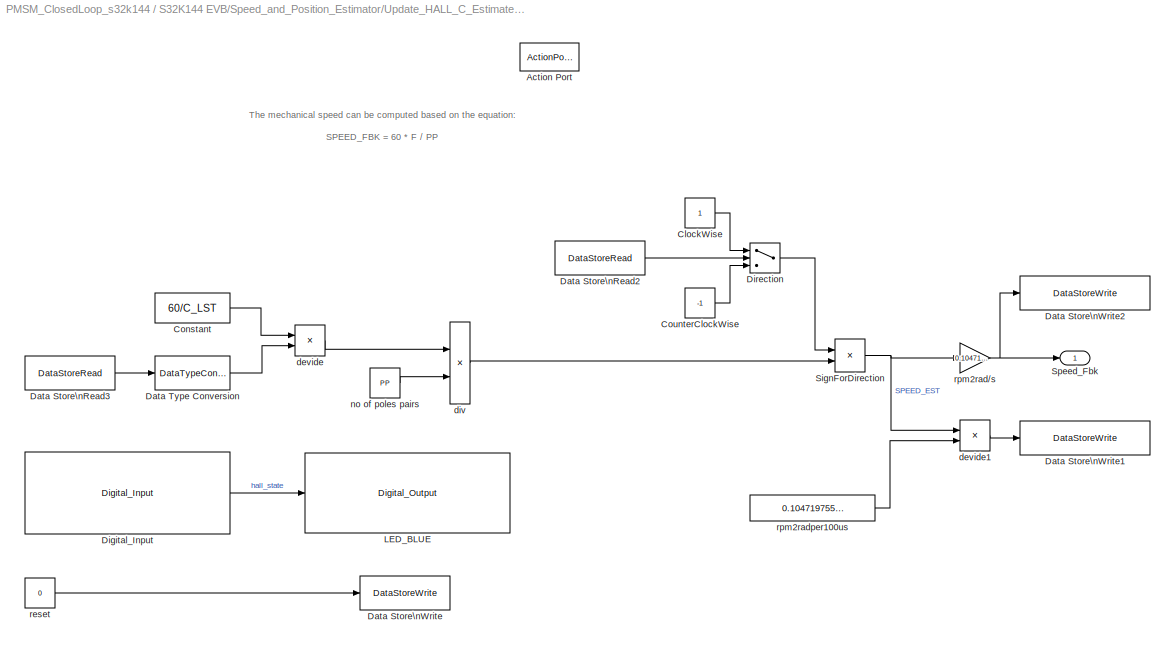
BLOCK [SubSystem] S32K144 EVB/Speed_and_Position_Estimator/Update_HALL_C_Estimate_Speed/Compute_Estimated_Speed
  Ports = [0, 1, 0, 0, 0, 0, 0, 1]
  RequestExecContextInheritance = off
  SID = 4183
  TreatAsAtomicUnit = on
BLOCK [ActionPort] S32K144 EVB/Speed_and_Position_Estimator/Update_HALL_C_Estimate_Speed/Compute_Estimated_Speed/Action Port
  SID = 4184
BLOCK [Constant] S32K144 EVB/Speed_and_Position_Estimator/Update_HALL_C_Estimate_Speed/Compute_Estimated_Speed/ClockWise
  OutDataTypeStr = Inherit: Inherit via back propagation
  SID = 4185
BLOCK [Constant] S32K144 EVB/Speed_and_Position_Estimator/Update_HALL_C_Estimate_Speed/Compute_Estimated_Speed/Constant
  OutDataTypeStr = single
  SID = 4186
  Value = 60/C_LST
BLOCK [Constant] S32K144 EVB/Speed_and_Position_Estimator/Update_HALL_C_Estimate_Speed/Compute_Estimated_Speed/CounterClockWise
  OutDataTypeStr = Inherit: Inherit via back propagation
  SID = 4187
  Value = -1
BLOCK [DataStoreRead] S32K144 EVB/Speed_and_Position_Estimator/Update_HALL_C_Estimate_Speed/Compute_Estimated_Speed/Data Store\nRead2
  DataStoreName = SPEED_REF
  Ports = [0, 1]
  SID = 4188
BLOCK [DataStoreRead] S32K144 EVB/Speed_and_Position_Estimator/Update_HALL_C_Estimate_Speed/Compute_Estimated_Speed/Data Store\nRead3
  DataStoreName = TIME_CNT
  Ports = [0, 1]
  SID = 4189
BLOCK [DataStoreWrite] S32K144 EVB/Speed_and_Position_Estimator/Update_HALL_C_Estimate_Speed/Compute_Estimated_Speed/Data Store\nWrite
  DataStoreName = TIME_CNT
  Ports = [1]
  SID = 4190
BLOCK [DataStoreWrite] S32K144 EVB/Speed_and_Position_Estimator/Update_HALL_C_Estimate_Speed/Compute_Estimated_Speed/Data Store\nWrite1
  DataStoreName = THETA_INC
  Ports = [1]
  Priority = 1
  SID = 4191
BLOCK [DataStoreWrite] S32K144 EVB/Speed_and_Position_Estimator/Update_HALL_C_Estimate_Speed/Compute_Estimated_Speed/Data Store\nWrite2
  DataStoreName = SPEED_FBK
  Ports = [1]
  Priority = 1
  SID = 4192
BLOCK [DataTypeConversion] S32K144 EVB/Speed_and_Position_Estimator/Update_HALL_C_Estimate_Speed/Compute_Estimated_Speed/Data Type Conversion
  OutDataTypeStr = single
  RndMeth = Floor
  SID = 4193
  SaturateOnIntegerOverflow = off
BLOCK [Reference] S32K144 EVB/Speed_and_Position_Estimator/Update_HALL_C_Estimate_Speed/Compute_Estimated_Speed/Digital_Input  REF=mbd_s32k1xx_ec_toolbox/GPIO Blocks/Digital_Input
  Ports = [0, 1]
  SID = 4194
  SourceBlock = mbd_s32k1xx_ec_toolbox/GPIO Blocks/Digital_Input
  SourceType = gpio_s32k_input
  gpio_pin = PTA1: [PTA1 | Port A I/O]
  passive_filter = off
  pull_resistor = None
BLOCK [Switch] S32K144 EVB/Speed_and_Position_Estimator/Update_HALL_C_Estimate_Speed/Compute_Estimated_Speed/Direction
  InputSameDT = off
  OutDataTypeStr = single
  SID = 4195
  SaturateOnIntegerOverflow = off
BLOCK [Reference] S32K144 EVB/Speed_and_Position_Estimator/Update_HALL_C_Estimate_Speed/Compute_Estimated_Speed/LED_BLUE  REF=mbd_s32k1xx_ec_toolbox/GPIO Blocks/Digital_Output
  Ports = [1]
  SID = 4196
  SourceBlock = mbd_s32k1xx_ec_toolbox/GPIO Blocks/Digital_Output
  SourceType = gpio_s32k_output
  drive_strength = Low
  gpio_pin = PTD0: [PTD0 | Port D I/O]
  init_val = Low
BLOCK [Product] S32K144 EVB/Speed_and_Position_Estimator/Update_HALL_C_Estimate_Speed/Compute_Estimated_Speed/SignForDirection
  InputSameDT = off
  Inputs = **
  OutDataTypeStr = single
  Ports = [2, 1]
  SID = 4197
  SaturateOnIntegerOverflow = off
BLOCK [Outport] S32K144 EVB/Speed_and_Position_Estimator/Update_HALL_C_Estimate_Speed/Compute_Estimated_Speed/Speed_Fbk
  IconDisplay = Port number
  SID = 4205
BLOCK [Product] S32K144 EVB/Speed_and_Position_Estimator/Update_HALL_C_Estimate_Speed/Compute_Estimated_Speed/devide
  InputSameDT = off
  Inputs = */
  OutDataTypeStr = single
  Ports = [2, 1]
  RndMeth = Floor
  SID = 4198
  SaturateOnIntegerOverflow = off
BLOCK [Product] S32K144 EVB/Speed_and_Position_Estimator/Update_HALL_C_Estimate_Speed/Compute_Estimated_Speed/devide1
  InputSameDT = off
  Inputs = **
  OutDataTypeStr = single
  Ports = [2, 1]
  RndMeth = Floor
  SID = 4199
  SaturateOnIntegerOverflow = off
BLOCK [Product] S32K144 EVB/Speed_and_Position_Estimator/Update_HALL_C_Estimate_Speed/Compute_Estimated_Speed/div
  InputSameDT = off
  Inputs = */
  OutDataTypeStr = single
  Ports = [2, 1]
  Priority = 0
  RndMeth = Floor
  SID = 4200
  SaturateOnIntegerOverflow = off
BLOCK [Constant] S32K144 EVB/Speed_and_Position_Estimator/Update_HALL_C_Estimate_Speed/Compute_Estimated_Speed/no of poles pairs
  OutDataTypeStr = single
  SID = 4201
  Value = PP
BLOCK [Constant] S32K144 EVB/Speed_and_Position_Estimator/Update_HALL_C_Estimate_Speed/Compute_Estimated_Speed/reset
  OutDataTypeStr = uint32
  SID = 4202
  Value = 0
BLOCK [Gain] S32K144 EVB/Speed_and_Position_Estimator/Update_HALL_C_Estimate_Speed/Compute_Estimated_Speed/rpm2rad//s
  Gain = 0.104719755
  OutDataTypeStr = Inherit: Inherit via internal rule
  ParamDataTypeStr = Inherit: Inherit via internal rule
  SID = 4203
  SaturateOnIntegerOverflow = off
BLOCK [Constant] S32K144 EVB/Speed_and_Position_Estimator/Update_HALL_C_Estimate_Speed/Compute_Estimated_Speed/rpm2radper100us
  OutDataTypeStr = single
  SID = 4204
  Value = 0.104719755*C_LST*PP
BLOCK [DataStoreRead] S32K144 EVB/Speed_and_Position_Estimator/Update_HALL_C_Estimate_Speed/Data Store\nRead1
  DataStoreName = HALL_C_Input
  Ports = [0, 1]
  Priority = 0
  SID = 4207
BLOCK [DataStoreWrite] S32K144 EVB/Speed_and_Position_Estimator/Update_HALL_C_Estimate_Speed/Data Store\nWrite1
  DataStoreName = HALL_C_Input
  Ports = [1]
  SID = 4208
BLOCK [Reference] S32K144 EVB/Speed_and_Position_Estimator/Update_HALL_C_Estimate_Speed/Function-Call\nGenerator  REF=simulink/Ports &\nSubsystems/Function-Call\nGenerator
  Ports = [0, 1]
  SID = 4209
  SourceBlock = simulink/Ports &\nSubsystems/Function-Call\nGenerator
  SourceProductBaseCode = SL
  SourceProductName = Simulink
  SourceType = Function-Call Generator
  numberOfIterations = 1
  sample_time = -1
BLOCK [If] S32K144 EVB/Speed_and_Position_Estimator/Update_HALL_C_Estimate_Speed/If
  IfExpression = u1 == 1
  Ports = [1, 1]
  Priority = 1
  SID = 4210
  ShowElse = off
BLOCK [Logic] S32K144 EVB/Speed_and_Position_Estimator/Update_HALL_C_Estimate_Speed/Logical\nOperator
  AllPortsSameDT = off
  Operator = NOT
  OutDataTypeStr = boolean
  Ports = [1, 1]
  Priority = 2
  SID = 4211
BLOCK [Outport] S32K144 EVB/Speed_and_Position_Estimator/Update_HALL_C_Estimate_Speed/Speed_Fbk
  IconDisplay = Port number
  Port = 2
  SID = 4213
BLOCK [TriggerPort] S32K144 EVB/Speed_and_Position_Estimator/Update_HALL_C_Estimate_Speed/function
  Ports = []
  SID = 4182
  StatesWhenEnabling = held
  TriggerType = function-call
  VariantControl = (inherit)
BLOCK [DataStoreMemory] S32K144 EVB/UQ_REF1
  DataStoreName = THETA
  OutDataTypeStr = single
  ReadBeforeWriteMsg = warning
  SID = 4217
  ShowAdditionalParam = off
  WriteAfterReadMsg = warning
  WriteAfterWriteMsg = warning
BLOCK [DataStoreMemory] S32K144 EVB/UQ_REF2
  DataStoreName = THETA_EST
  OutDataTypeStr = single
  ReadBeforeWriteMsg = warning
  SID = 4218
  ShowAdditionalParam = off
  WriteAfterReadMsg = warning
  WriteAfterWriteMsg = warning
BLOCK [DataStoreMemory] S32K144 EVB/UQ_REF3
  DataStoreName = THETA_EST_COR
  OutDataTypeStr = single
  ReadBeforeWriteMsg = warning
  SID = 4219
  ShowAdditionalParam = off
  WriteAfterReadMsg = warning
  WriteAfterWriteMsg = warning
BLOCK [DataStoreMemory] S32K144 EVB/UQ_REF4
  DataStoreName = THETA_INC
  OutDataTypeStr = single
  ReadBeforeWriteMsg = warning
  SID = 4220
  ShowAdditionalParam = off
  WriteAfterReadMsg = warning
  WriteAfterWriteMsg = warning
BLOCK [DataStoreMemory] S32K144 EVB/UQ_REF6
  DataStoreName = SPEED_REF
  OutDataTypeStr = single
  ReadBeforeWriteMsg = warning
  SID = 3674
  ShowAdditionalParam = off
  WriteAfterReadMsg = warning
  WriteAfterWriteMsg = warning
BLOCK [DataStoreMemory] S32K144 EVB/UQ_REF7
  DataStoreName = THETA_OFFSET
  OutDataTypeStr = single
  ReadBeforeWriteMsg = warning
  SID = 4221
  ShowAdditionalParam = off
  WriteAfterReadMsg = warning
  WriteAfterWriteMsg = warning
ANNOTATION (root): \n \n \n Closed Loop PMSM Motor Control \n with MTRDEVKSBNK144 DevKit \n
ANNOTATION (root): \n \n DISCLAIMER: This Simulink model was tested with the MTRDEVKSDBNK144 kit. Read very carefully the HW&SW Setup below. \n This example is distributed under the NXP Tools License Agreement Terms & Conditions that can be found in LA_OPT_NXP_Software_License.htm
ANNOTATION (root): \n \n
ANNOTATION (root): \n \n Linix Motor 45ZWN24-40-B
ANNOTATION S32K144 EVB: Fault interrupt
ANNOTATION S32K144 EVB: Rotate PMSM Motor in Closed Loop
ANNOTATION S32K144 EVB/FastLoopControl: Generic FocFastLoop counter used for Speed Estimation
ANNOTATION S32K144 EVB/FastLoopControl/Compute_Reference_Voltages/Current_Controllers_DQ: Toque Axis PI Controller
ANNOTATION S32K144 EVB/FastLoopControl/Compute_Reference_Voltages/Current_Controllers_DQ: Flux Axis PI Controller
ANNOTATION S32K144 EVB/Measurements/Get3PhCurrent: \n \n \n Phase Current Measurements \n \n This function performs measurement of three phase currents from two shunt resistors. Because a non-zero length PWM pulse width is required for successful current sample, this approach can not be utilized up to full PWM dutycycle \n
ANNOTATION S32K144 EVB/Measurements/GetIdcCurrent: \n \n \n DC-Link Current Measurement \n \n This function performs measurement of DC-Bus Current \n
ANNOTATION S32K144 EVB/Measurements/GetVdcVoltage: \n \n \n DC-Link Voltage Measurement \n \n This function performs measurement of DC-Bus Voltage \n
ANNOTATION S32K144 EVB/Measurements/GetVdcVoltage: `
ANNOTATION S32K144 EVB/Speed_and_Position_Estimator: \n \n Estimate the motor speed based on HALL transitions and FocFastLoop counter \n
ANNOTATION S32K144 EVB/Speed_and_Position_Estimator/Update_HALL_C_Estimate_Speed/Compute_Estimated_Speed: \n \n The mechanical speed can be computed based on the equation: \n SPEED_FBK = 60 * F / PP \n where: \n - F is the HALL signal changing frequency = 1/(TIME_CNT*C_LST) \n - PP is the number of pole pairs of the motor
LINE S32K144 EVB/ADC Sensing/ADC1_IRQHandler/ADC_AD4_IA:1 -> S32K144 EVB/ADC Sensing/ADC1_IRQHandler/Mux:1
LINE S32K144 EVB/ADC Sensing/ADC1_IRQHandler/ADC_AD6_IDC:1 -> S32K144 EVB/ADC Sensing/ADC1_IRQHandler/ADC_Idc:1
LINE S32K144 EVB/ADC Sensing/ADC1_IRQHandler/ADC_AD7_VDC:1 -> S32K144 EVB/ADC Sensing/ADC1_IRQHandler/ADC_Vdc:1
LINE S32K144 EVB/ADC Sensing/ADC1_IRQHandler/ADC_IB:1 -> S32K144 EVB/ADC Sensing/ADC1_IRQHandler/Mux:2
LINE S32K144 EVB/ADC Sensing/ADC1_IRQHandler/Function-Call\nGenerator:1 -> S32K144 EVB/ADC Sensing/ADC1_IRQHandler/FcnCall:1
LINE S32K144 EVB/ADC Sensing/ADC1_IRQHandler/Mux:1 -> S32K144 EVB/ADC Sensing/ADC1_IRQHandler/ADC_Phase_Currents:1
LINE S32K144 EVB/ADC Sensing/ADC1_IRQHandler:1 -> S32K144 EVB/ADC Sensing/FcnCall:1
LINE S32K144 EVB/ADC Sensing/ADC1_IRQHandler:2 -> S32K144 EVB/ADC Sensing/ADC_IaIb:1
LINE S32K144 EVB/ADC Sensing/ADC1_IRQHandler:3 -> S32K144 EVB/ADC Sensing/ADC_Vdc:1
LINE S32K144 EVB/ADC Sensing/ADC1_IRQHandler:4 -> S32K144 EVB/ADC Sensing/ADC_Idc:1
LINE S32K144 EVB/ADC Sensing/ADC1_ISR:1 -> S32K144 EVB/ADC Sensing/ADC1_IRQHandler:trigger
LINE S32K144 EVB/ADC Sensing/ADC1_ISR:2 -> S32K144 EVB/ADC Sensing/ADC1_IRQHandler:1
LINE S32K144 EVB/ADC Sensing/ADC1_ISR:3 -> S32K144 EVB/ADC Sensing/Terminator6:1
LINE S32K144 EVB/ADC Sensing/PDB1_ISR:1 -> S32K144 EVB/ADC Sensing/PDB1_IRQHandler:trigger
LINE S32K144 EVB/ADC Sensing/PDB1_ISR:2 -> S32K144 EVB/ADC Sensing/Terminator1:1
LINE S32K144 EVB/ADC Sensing/PDB1_ISR:3 -> S32K144 EVB/ADC Sensing/Terminator2:1
LINE S32K144 EVB/ADC Sensing/PDB1_ISR:4 -> S32K144 EVB/ADC Sensing/Terminator:1
LINE S32K144 EVB/ADC Sensing:1 -> S32K144 EVB/Measurements:trigger
LINE S32K144 EVB/ADC Sensing:2 -> S32K144 EVB/Measurements:1
LINE S32K144 EVB/ADC Sensing:3 -> S32K144 EVB/Measurements:2
LINE S32K144 EVB/ADC Sensing:4 -> S32K144 EVB/Measurements:3
LINE S32K144 EVB/FastLoopControl/Clarke:1 -> S32K144 EVB/FastLoopControl/Park:1
LINE S32K144 EVB/FastLoopControl/Clarke:2 -> S32K144 EVB/FastLoopControl/Park:2
LINE S32K144 EVB/FastLoopControl/Compute_Reference_Voltages/Current_Controllers_DQ/ D-Axis \nCurrent Controller:1 -> S32K144 EVB/FastLoopControl/Compute_Reference_Voltages/Current_Controllers_DQ/UD_REF:1
NET S32K144 EVB/FastLoopControl/Compute_Reference_Voltages/Current_Controllers_DQ/Compare\nTo Zero:1 -> S32K144 EVB/FastLoopControl/Compute_Reference_Voltages/Current_Controllers_DQ/ D-Axis \nCurrent Controller:4, S32K144 EVB/FastLoopControl/Compute_Reference_Voltages/Current_Controllers_DQ/Q-Axis\nCurrent Controller:4
LINE S32K144 EVB/FastLoopControl/Compute_Reference_Voltages/Current_Controllers_DQ/ID:1 -> S32K144 EVB/FastLoopControl/Compute_Reference_Voltages/Current_Controllers_DQ/MLIB_Sub_FLT_D:2
LINE S32K144 EVB/FastLoopControl/Compute_Reference_Voltages/Current_Controllers_DQ/ID_REF:1 -> S32K144 EVB/FastLoopControl/Compute_Reference_Voltages/Current_Controllers_DQ/MLIB_Sub_FLT_D:1
LINE S32K144 EVB/FastLoopControl/Compute_Reference_Voltages/Current_Controllers_DQ/IQ:1 -> S32K144 EVB/FastLoopControl/Compute_Reference_Voltages/Current_Controllers_DQ/MLIB_Sub_FLT_Q:2
LINE S32K144 EVB/FastLoopControl/Compute_Reference_Voltages/Current_Controllers_DQ/IQ_REF:1 -> S32K144 EVB/FastLoopControl/Compute_Reference_Voltages/Current_Controllers_DQ/MLIB_Sub_FLT_Q:1
LINE S32K144 EVB/FastLoopControl/Compute_Reference_Voltages/Current_Controllers_DQ/MLIB_Sub_FLT_D:1 -> S32K144 EVB/FastLoopControl/Compute_Reference_Voltages/Current_Controllers_DQ/ D-Axis \nCurrent Controller:1
LINE S32K144 EVB/FastLoopControl/Compute_Reference_Voltages/Current_Controllers_DQ/MLIB_Sub_FLT_Q:1 -> S32K144 EVB/FastLoopControl/Compute_Reference_Voltages/Current_Controllers_DQ/Q-Axis\nCurrent Controller:1
LINE S32K144 EVB/FastLoopControl/Compute_Reference_Voltages/Current_Controllers_DQ/Q-Axis\nCurrent Controller:1 -> S32K144 EVB/FastLoopControl/Compute_Reference_Voltages/Current_Controllers_DQ/UQ_REF:1
LINE S32K144 EVB/FastLoopControl/Compute_Reference_Voltages/Current_Controllers_DQ/Reset:1 -> S32K144 EVB/FastLoopControl/Compute_Reference_Voltages/Current_Controllers_DQ/Compare\nTo Zero:1
LINE S32K144 EVB/FastLoopControl/Compute_Reference_Voltages/Current_Controllers_DQ/el_angle_inc1:1 -> S32K144 EVB/FastLoopControl/Compute_Reference_Voltages/Current_Controllers_DQ/ D-Axis \nCurrent Controller:2
LINE S32K144 EVB/FastLoopControl/Compute_Reference_Voltages/Current_Controllers_DQ/el_angle_inc2:1 -> S32K144 EVB/FastLoopControl/Compute_Reference_Voltages/Current_Controllers_DQ/ D-Axis \nCurrent Controller:3
LINE S32K144 EVB/FastLoopControl/Compute_Reference_Voltages/Current_Controllers_DQ/el_angle_inc3:1 -> S32K144 EVB/FastLoopControl/Compute_Reference_Voltages/Current_Controllers_DQ/Q-Axis\nCurrent Controller:2
LINE S32K144 EVB/FastLoopControl/Compute_Reference_Voltages/Current_Controllers_DQ/el_angle_inc4:1 -> S32K144 EVB/FastLoopControl/Compute_Reference_Voltages/Current_Controllers_DQ/Q-Axis\nCurrent Controller:3
LINE S32K144 EVB/FastLoopControl/Compute_Reference_Voltages/Current_Controllers_DQ:1 -> S32K144 EVB/FastLoopControl/Compute_Reference_Voltages/D-axis Rotor Align:3
LINE S32K144 EVB/FastLoopControl/Compute_Reference_Voltages/Current_Controllers_DQ:2 -> S32K144 EVB/FastLoopControl/Compute_Reference_Voltages/Q-axis Rotor Align:3
LINE S32K144 EVB/FastLoopControl/Compute_Reference_Voltages/D-axis Rotor Align:1 -> S32K144 EVB/FastLoopControl/Compute_Reference_Voltages/UD_REF:1
NET S32K144 EVB/FastLoopControl/Compute_Reference_Voltages/Execure Align:1 -> S32K144 EVB/FastLoopControl/Compute_Reference_Voltages/Current_Controllers_DQ:1, S32K144 EVB/FastLoopControl/Compute_Reference_Voltages/D-axis Rotor Align:2, S32K144 EVB/FastLoopControl/Compute_Reference_Voltages/Q-axis Rotor Align:2
LINE S32K144 EVB/FastLoopControl/Compute_Reference_Voltages/ID:1 -> S32K144 EVB/FastLoopControl/Compute_Reference_Voltages/Current_Controllers_DQ:3
NET S32K144 EVB/FastLoopControl/Compute_Reference_Voltages/ID_REF:1 -> S32K144 EVB/FastLoopControl/Compute_Reference_Voltages/Current_Controllers_DQ:2, S32K144 EVB/FastLoopControl/Compute_Reference_Voltages/D-axis Rotor Align:1
LINE S32K144 EVB/FastLoopControl/Compute_Reference_Voltages/IQ:1 -> S32K144 EVB/FastLoopControl/Compute_Reference_Voltages/Current_Controllers_DQ:5
NET S32K144 EVB/FastLoopControl/Compute_Reference_Voltages/IQ_REF:1 -> S32K144 EVB/FastLoopControl/Compute_Reference_Voltages/Current_Controllers_DQ:4, S32K144 EVB/FastLoopControl/Compute_Reference_Voltages/Q-axis Rotor Align:1
LINE S32K144 EVB/FastLoopControl/Compute_Reference_Voltages/Q-axis Rotor Align:1 -> S32K144 EVB/FastLoopControl/Compute_Reference_Voltages/UQ_REF:1
LINE S32K144 EVB/FastLoopControl/Compute_Reference_Voltages:1 -> S32K144 EVB/FastLoopControl/GMCLIB_ParkInv_FLT:1
LINE S32K144 EVB/FastLoopControl/Compute_Reference_Voltages:2 -> S32K144 EVB/FastLoopControl/GMCLIB_ParkInv_FLT:2
LINE S32K144 EVB/FastLoopControl/Data Store\nRead1:1 -> S32K144 EVB/FastLoopControl/Sum:2
LINE S32K144 EVB/FastLoopControl/Demux:1 -> S32K144 EVB/FastLoopControl/Clarke:1
LINE S32K144 EVB/FastLoopControl/Demux:2 -> S32K144 EVB/FastLoopControl/Clarke:2
LINE S32K144 EVB/FastLoopControl/Demux:3 -> S32K144 EVB/FastLoopControl/Clarke:3
NET S32K144 EVB/FastLoopControl/GFLIB_SinCos_FLT:1 -> S32K144 EVB/FastLoopControl/GMCLIB_ParkInv_FLT:3, S32K144 EVB/FastLoopControl/Park:3
NET S32K144 EVB/FastLoopControl/GFLIB_SinCos_FLT:2 -> S32K144 EVB/FastLoopControl/GMCLIB_ParkInv_FLT:4, S32K144 EVB/FastLoopControl/Park:4
LINE S32K144 EVB/FastLoopControl/GMCLIB_ParkInv_FLT:1 -> S32K144 EVB/FastLoopControl/GMCLIB_SvmStd_FLT:1
LINE S32K144 EVB/FastLoopControl/GMCLIB_ParkInv_FLT:2 -> S32K144 EVB/FastLoopControl/GMCLIB_SvmStd_FLT:2
LINE S32K144 EVB/FastLoopControl/GMCLIB_SvmStd_FLT:1 -> S32K144 EVB/FastLoopControl/PWMCommands:1
LINE S32K144 EVB/FastLoopControl/GMCLIB_SvmStd_FLT:2 -> S32K144 EVB/FastLoopControl/PWMCommands:2
LINE S32K144 EVB/FastLoopControl/GMCLIB_SvmStd_FLT:3 -> S32K144 EVB/FastLoopControl/PWMCommands:3
LINE S32K144 EVB/FastLoopControl/GMCLIB_SvmStd_FLT:4 -> S32K144 EVB/FastLoopControl/Terminator:1
LINE S32K144 EVB/FastLoopControl/ID_REF:1 -> S32K144 EVB/FastLoopControl/Compute_Reference_Voltages:1
LINE S32K144 EVB/FastLoopControl/IQ_REF:1 -> S32K144 EVB/FastLoopControl/Compute_Reference_Voltages:2
LINE S32K144 EVB/FastLoopControl/Ia_Ib_Ic:1 -> S32K144 EVB/FastLoopControl/Demux:1
LINE S32K144 EVB/FastLoopControl/PWMCommands/Control_Logic1/Enable PDB and start FTM/ Demux :1 -> S32K144 EVB/FastLoopControl/PWMCommands/Control_Logic1/Enable PDB and start FTM/enablePDB():1
LINE S32K144 EVB/FastLoopControl/PWMCommands/Control_Logic1/Enable PDB and start FTM/ Demux :2 -> S32K144 EVB/FastLoopControl/PWMCommands/Control_Logic1/Enable PDB and start FTM/Normal_Op():1
LINE S32K144 EVB/FastLoopControl/PWMCommands/Control_Logic1/Enable PDB and start FTM/ Ground :1 -> S32K144 EVB/FastLoopControl/PWMCommands/Control_Logic1/Enable PDB and start FTM/ SFunction :1
LINE S32K144 EVB/FastLoopControl/PWMCommands/Control_Logic1/Enable PDB and start FTM/ SFunction :1 -> S32K144 EVB/FastLoopControl/PWMCommands/Control_Logic1/Enable PDB and start FTM/ Demux :1
LINE S32K144 EVB/FastLoopControl/PWMCommands/Control_Logic1/Enable PDB and start FTM:1 -> S32K144 EVB/FastLoopControl/PWMCommands/Control_Logic1/enable_FTM_PDB_ADC_triggering:trigger
LINE S32K144 EVB/FastLoopControl/PWMCommands/Control_Logic1/Enable PDB and start FTM:2 -> S32K144 EVB/FastLoopControl/PWMCommands/Control_Logic1/Normal Operation:trigger
LINE S32K144 EVB/FastLoopControl/PWMCommands/Control_Logic1/Normal Operation/PhaseA_HS:1 -> S32K144 EVB/FastLoopControl/PWMCommands/Control_Logic1/Normal Operation/PhaseA_HS_out:1
LINE S32K144 EVB/FastLoopControl/PWMCommands/Control_Logic1/Normal Operation/PhaseA_LS:1 -> S32K144 EVB/FastLoopControl/PWMCommands/Control_Logic1/Normal Operation/PhaseA_LS_out:1
LINE S32K144 EVB/FastLoopControl/PWMCommands/Control_Logic1/Normal Operation/PhaseB_HS:1 -> S32K144 EVB/FastLoopControl/PWMCommands/Control_Logic1/Normal Operation/PhaseB_HS_out:1
LINE S32K144 EVB/FastLoopControl/PWMCommands/Control_Logic1/Normal Operation/PhaseB_LS:1 -> S32K144 EVB/FastLoopControl/PWMCommands/Control_Logic1/Normal Operation/PhaseB_LS_out:1
LINE S32K144 EVB/FastLoopControl/PWMCommands/Control_Logic1/Normal Operation/PhaseC_HS:1 -> S32K144 EVB/FastLoopControl/PWMCommands/Control_Logic1/Normal Operation/PhaseC_HS_out:1
LINE S32K144 EVB/FastLoopControl/PWMCommands/Control_Logic1/Normal Operation/PhaseC_LS:1 -> S32K144 EVB/FastLoopControl/PWMCommands/Control_Logic1/Normal Operation/PhaseC_LS_out:1
LINE S32K144 EVB/FastLoopControl/PWMCommands/Control_Logic1/Normal Operation:1 -> S32K144 EVB/FastLoopControl/PWMCommands/Control_Logic1/PhaseA_HS_out:1
LINE S32K144 EVB/FastLoopControl/PWMCommands/Control_Logic1/Normal Operation:2 -> S32K144 EVB/FastLoopControl/PWMCommands/Control_Logic1/PhaseA_LS_out:1
LINE S32K144 EVB/FastLoopControl/PWMCommands/Control_Logic1/Normal Operation:3 -> S32K144 EVB/FastLoopControl/PWMCommands/Control_Logic1/PhaseB_HS_out:1
LINE S32K144 EVB/FastLoopControl/PWMCommands/Control_Logic1/Normal Operation:4 -> S32K144 EVB/FastLoopControl/PWMCommands/Control_Logic1/PhaseB_LS_out:1
LINE S32K144 EVB/FastLoopControl/PWMCommands/Control_Logic1/Normal Operation:5 -> S32K144 EVB/FastLoopControl/PWMCommands/Control_Logic1/PhaseC_HS_out:1
LINE S32K144 EVB/FastLoopControl/PWMCommands/Control_Logic1/Normal Operation:6 -> S32K144 EVB/FastLoopControl/PWMCommands/Control_Logic1/PhaseC_LS_out:1
LINE S32K144 EVB/FastLoopControl/PWMCommands/Control_Logic1/PhaseA_HS:1 -> S32K144 EVB/FastLoopControl/PWMCommands/Control_Logic1/Normal Operation:1
LINE S32K144 EVB/FastLoopControl/PWMCommands/Control_Logic1/PhaseA_LS:1 -> S32K144 EVB/FastLoopControl/PWMCommands/Control_Logic1/Normal Operation:2
LINE S32K144 EVB/FastLoopControl/PWMCommands/Control_Logic1/PhaseB_HS:1 -> S32K144 EVB/FastLoopControl/PWMCommands/Control_Logic1/Normal Operation:3
LINE S32K144 EVB/FastLoopControl/PWMCommands/Control_Logic1/PhaseB_LS:1 -> S32K144 EVB/FastLoopControl/PWMCommands/Control_Logic1/Normal Operation:4
LINE S32K144 EVB/FastLoopControl/PWMCommands/Control_Logic1/PhaseC_HS:1 -> S32K144 EVB/FastLoopControl/PWMCommands/Control_Logic1/Normal Operation:5
LINE S32K144 EVB/FastLoopControl/PWMCommands/Control_Logic1/PhaseC_LS:1 -> S32K144 EVB/FastLoopControl/PWMCommands/Control_Logic1/Normal Operation:6
LINE S32K144 EVB/FastLoopControl/PWMCommands/Control_Logic1/enable_FTM_PDB_ADC_triggering/ON:1 -> S32K144 EVB/FastLoopControl/PWMCommands/Control_Logic1/enable_FTM_PDB_ADC_triggering/SpeedCmd :1
LINE S32K144 EVB/FastLoopControl/PWMCommands/Control_Logic1:1 -> S32K144 EVB/FastLoopControl/PWMCommands/FTM_PWM_Config:1
LINE S32K144 EVB/FastLoopControl/PWMCommands/Control_Logic1:2 -> S32K144 EVB/FastLoopControl/PWMCommands/FTM_PWM_Config:2
LINE S32K144 EVB/FastLoopControl/PWMCommands/Control_Logic1:3 -> S32K144 EVB/FastLoopControl/PWMCommands/FTM_PWM_Config:3
LINE S32K144 EVB/FastLoopControl/PWMCommands/Control_Logic1:4 -> S32K144 EVB/FastLoopControl/PWMCommands/FTM_PWM_Config:4
LINE S32K144 EVB/FastLoopControl/PWMCommands/Control_Logic1:5 -> S32K144 EVB/FastLoopControl/PWMCommands/FTM_PWM_Config:5
LINE S32K144 EVB/FastLoopControl/PWMCommands/Control_Logic1:6 -> S32K144 EVB/FastLoopControl/PWMCommands/FTM_PWM_Config:6
NET S32K144 EVB/FastLoopControl/PWMCommands/PWM_A:1 -> S32K144 EVB/FastLoopControl/PWMCommands/Control_Logic1:1, S32K144 EVB/FastLoopControl/PWMCommands/Control_Logic1:2
NET S32K144 EVB/FastLoopControl/PWMCommands/PWM_B:1 -> S32K144 EVB/FastLoopControl/PWMCommands/Control_Logic1:3, S32K144 EVB/FastLoopControl/PWMCommands/Control_Logic1:4
NET S32K144 EVB/FastLoopControl/PWMCommands/PWM_C:1 -> S32K144 EVB/FastLoopControl/PWMCommands/Control_Logic1:5, S32K144 EVB/FastLoopControl/PWMCommands/Control_Logic1:6
LINE S32K144 EVB/FastLoopControl/Park:1 -> S32K144 EVB/FastLoopControl/Compute_Reference_Voltages:3
LINE S32K144 EVB/FastLoopControl/Park:2 -> S32K144 EVB/FastLoopControl/Compute_Reference_Voltages:4
NET S32K144 EVB/FastLoopControl/Rotor_Position/Align vs. Normal \nOperation:1 -> S32K144 EVB/FastLoopControl/Rotor_Position/ExecureAlign:1, S32K144 EVB/FastLoopControl/Rotor_Position/theta:1
LINE S32K144 EVB/FastLoopControl/Rotor_Position/ComputeElectricAngle/DIV:1 -> S32K144 EVB/FastLoopControl/Rotor_Position/ComputeElectricAngle/MLIB_ConvertPU_F32FLT:1
LINE S32K144 EVB/FastLoopControl/Rotor_Position/ComputeElectricAngle/GFLIB_IntegratorTR_F32:1 -> S32K144 EVB/FastLoopControl/Rotor_Position/ComputeElectricAngle/MLIB_ConvertPU_FLTF32:1
LINE S32K144 EVB/FastLoopControl/Rotor_Position/ComputeElectricAngle/MLIB_ConvertPU_F32FLT:1 -> S32K144 EVB/FastLoopControl/Rotor_Position/ComputeElectricAngle/GFLIB_IntegratorTR_F32:1
LINE S32K144 EVB/FastLoopControl/Rotor_Position/ComputeElectricAngle/MLIB_ConvertPU_FLTF32:1 -> S32K144 EVB/FastLoopControl/Rotor_Position/ComputeElectricAngle/MUL:1
LINE S32K144 EVB/FastLoopControl/Rotor_Position/ComputeElectricAngle/MUL:1 -> S32K144 EVB/FastLoopControl/Rotor_Position/ComputeElectricAngle/theta:1
LINE S32K144 EVB/FastLoopControl/Rotor_Position/ComputeElectricAngle/SpeedMax_rad//s:1 -> S32K144 EVB/FastLoopControl/Rotor_Position/ComputeElectricAngle/DIV:2
LINE S32K144 EVB/FastLoopControl/Rotor_Position/ComputeElectricAngle/Speed_Reference [rad//s]:1 -> S32K144 EVB/FastLoopControl/Rotor_Position/ComputeElectricAngle/DIV:1
LINE S32K144 EVB/FastLoopControl/Rotor_Position/ComputeElectricAngle/pi:1 -> S32K144 EVB/FastLoopControl/Rotor_Position/ComputeElectricAngle/MUL:2
LINE S32K144 EVB/FastLoopControl/Rotor_Position/ComputeElectricAngle:1 -> S32K144 EVB/FastLoopControl/Rotor_Position/Open vs Closed \nLoop:3
LINE S32K144 EVB/FastLoopControl/Rotor_Position/Execure Align:1 -> S32K144 EVB/FastLoopControl/Rotor_Position/Align vs. Normal \nOperation:2
LINE S32K144 EVB/FastLoopControl/Rotor_Position/ModeControl1:1 -> S32K144 EVB/FastLoopControl/Rotor_Position/Open vs Closed \nLoop:2
LINE S32K144 EVB/FastLoopControl/Rotor_Position/Open vs Closed \nLoop:1 -> S32K144 EVB/FastLoopControl/Rotor_Position/Align vs. Normal \nOperation:3
LINE S32K144 EVB/FastLoopControl/Rotor_Position/Speed_Reference [rad//s]:1 -> S32K144 EVB/FastLoopControl/Rotor_Position/ComputeElectricAngle:1
LINE S32K144 EVB/FastLoopControl/Rotor_Position/Standstill:1 -> S32K144 EVB/FastLoopControl/Rotor_Position/Align vs. Normal \nOperation:1
NET S32K144 EVB/FastLoopControl/Rotor_Position/Sum1:1 -> S32K144 EVB/FastLoopControl/Rotor_Position/Open vs Closed \nLoop:1, S32K144 EVB/FastLoopControl/Rotor_Position/THETA_ESTIMATED_CORRECTED:1
LINE S32K144 EVB/FastLoopControl/Rotor_Position/THETA_EST_CORRECTED:1 -> S32K144 EVB/FastLoopControl/Rotor_Position/Sum1:1
LINE S32K144 EVB/FastLoopControl/Rotor_Position/THETA_INCREMENT:1 -> S32K144 EVB/FastLoopControl/Rotor_Position/Sum1:2
LINE S32K144 EVB/FastLoopControl/Rotor_Position:1 -> S32K144 EVB/FastLoopControl/GFLIB_SinCos_FLT:1
LINE S32K144 EVB/FastLoopControl/Speed_rad//s:1 -> S32K144 EVB/FastLoopControl/Rotor_Position:1
LINE S32K144 EVB/FastLoopControl/Sum:1 -> S32K144 EVB/FastLoopControl/Data Store\nWrite:1
LINE S32K144 EVB/FastLoopControl/one:1 -> S32K144 EVB/FastLoopControl/Sum:1
LINE S32K144 EVB/GD3000_interrupt/NOK:1 -> S32K144 EVB/GD3000_interrupt/FAULT_write:1
LINE S32K144 EVB/GD300_ISR_Callback\n:1 -> S32K144 EVB/GD3000_interrupt:trigger
LINE S32K144 EVB/IO Controls/Add:1 -> S32K144 EVB/IO Controls/Zero-Order\nHold:1
LINE S32K144 EVB/IO Controls/Alignment/OFF :1 -> S32K144 EVB/IO Controls/Alignment/LED_RED:1
LINE S32K144 EVB/IO Controls/Alignment/OFF:1 -> S32K144 EVB/IO Controls/Alignment/LED_BLUE:1
LINE S32K144 EVB/IO Controls/Alignment/Repeating\nSequence\nStair:1 -> S32K144 EVB/IO Controls/Alignment/Zero-Order\nHold:1
LINE S32K144 EVB/IO Controls/Alignment/Zero-Order\nHold:1 -> S32K144 EVB/IO Controls/Alignment/LED_GREEN:1
LINE S32K144 EVB/IO Controls/If1:1 -> S32K144 EVB/IO Controls/START:ifaction
LINE S32K144 EVB/IO Controls/If:1 -> S32K144 EVB/IO Controls/WaitForStart:ifaction
LINE S32K144 EVB/IO Controls/If:2 -> S32K144 EVB/IO Controls/Alignment:ifaction
LINE S32K144 EVB/IO Controls/If:3 -> S32K144 EVB/IO Controls/NormalOp:ifaction
LINE S32K144 EVB/IO Controls/NormalOp/FAULT/OFF:1 -> S32K144 EVB/IO Controls/NormalOp/FAULT/LED_BLUE:1
LINE S32K144 EVB/IO Controls/NormalOp/FAULT/ON:1 -> S32K144 EVB/IO Controls/NormalOp/FAULT/LED_RED:1
LINE S32K144 EVB/IO Controls/NormalOp/If:1 -> S32K144 EVB/IO Controls/NormalOp/RUNNING_OK:ifaction
LINE S32K144 EVB/IO Controls/NormalOp/If:2 -> S32K144 EVB/IO Controls/NormalOp/FAULT:ifaction
LINE S32K144 EVB/IO Controls/NormalOp/OFF :1 -> S32K144 EVB/IO Controls/NormalOp/LED_GREEN:1
LINE S32K144 EVB/IO Controls/NormalOp/RUNNING_OK/OFF:1 -> S32K144 EVB/IO Controls/NormalOp/RUNNING_OK/LED_RED:1
LINE S32K144 EVB/IO Controls/NormalOp/RUNNING_OK/ON:1 -> S32K144 EVB/IO Controls/NormalOp/RUNNING_OK/LED_BLUE:1
LINE S32K144 EVB/IO Controls/NormalOp/SpeedCmd2:1 -> S32K144 EVB/IO Controls/NormalOp/If:1
LINE S32K144 EVB/IO Controls/START/ON:1 -> S32K144 EVB/IO Controls/START/SpeedCmd :1
NET S32K144 EVB/IO Controls/SW2_SpeedUP:1 -> S32K144 EVB/IO Controls/If1:1, S32K144 EVB/IO Controls/SpeedUpInc:1
NET S32K144 EVB/IO Controls/SW3_SpeedDOWN:1 -> S32K144 EVB/IO Controls/If1:2, S32K144 EVB/IO Controls/SpeedDownInc:1
LINE S32K144 EVB/IO Controls/SpeedCmd1:1 -> S32K144 EVB/IO Controls/If:2
LINE S32K144 EVB/IO Controls/SpeedCmd2:1 -> S32K144 EVB/IO Controls/If:3
LINE S32K144 EVB/IO Controls/SpeedCmd3:1 -> S32K144 EVB/IO Controls/If:1
LINE S32K144 EVB/IO Controls/SpeedCmd:1 -> S32K144 EVB/IO Controls/Add:2
LINE S32K144 EVB/IO Controls/SpeedDownInc:1 -> S32K144 EVB/IO Controls/Add:3
LINE S32K144 EVB/IO Controls/SpeedUpInc:1 -> S32K144 EVB/IO Controls/Add:1
NET S32K144 EVB/IO Controls/WaitForStart/Check_Hall_Error/Add:1 -> S32K144 EVB/IO Controls/WaitForStart/Check_Hall_Error/Compare\nTo Constant1:1, S32K144 EVB/IO Controls/WaitForStart/Check_Hall_Error/Compare\nTo Constant:1
LINE S32K144 EVB/IO Controls/WaitForStart/Check_Hall_Error/Compare\nTo Constant1:1 -> S32K144 EVB/IO Controls/WaitForStart/Check_Hall_Error/Logical\nOperator:2
LINE S32K144 EVB/IO Controls/WaitForStart/Check_Hall_Error/Compare\nTo Constant:1 -> S32K144 EVB/IO Controls/WaitForStart/Check_Hall_Error/Logical\nOperator:1
LINE S32K144 EVB/IO Controls/WaitForStart/Check_Hall_Error/H1:1 -> S32K144 EVB/IO Controls/WaitForStart/Check_Hall_Error/Add:1
LINE S32K144 EVB/IO Controls/WaitForStart/Check_Hall_Error/H2:1 -> S32K144 EVB/IO Controls/WaitForStart/Check_Hall_Error/Add:2
LINE S32K144 EVB/IO Controls/WaitForStart/Check_Hall_Error/H3:1 -> S32K144 EVB/IO Controls/WaitForStart/Check_Hall_Error/Add:3
LINE S32K144 EVB/IO Controls/WaitForStart/Check_Hall_Error/Logical\nOperator:1 -> S32K144 EVB/IO Controls/WaitForStart/Check_Hall_Error/Hall_Errorr:1
LINE S32K144 EVB/IO Controls/WaitForStart/Check_Hall_Error:1 -> S32K144 EVB/IO Controls/WaitForStart/If:1
LINE S32K144 EVB/IO Controls/WaitForStart/Digital_Input_HALL_A:1 -> S32K144 EVB/IO Controls/WaitForStart/Logical\nOperator:1
LINE S32K144 EVB/IO Controls/WaitForStart/Digital_Input_HALL_B:1 -> S32K144 EVB/IO Controls/WaitForStart/Logical\nOperator1:1
LINE S32K144 EVB/IO Controls/WaitForStart/Digital_Input_HALL_C:1 -> S32K144 EVB/IO Controls/WaitForStart/Logical\nOperator2:1
LINE S32K144 EVB/IO Controls/WaitForStart/HALL_FAULT/NOK :1 -> S32K144 EVB/IO Controls/WaitForStart/HALL_FAULT/Data Store\nWrite2:1
LINE S32K144 EVB/IO Controls/WaitForStart/If:1 -> S32K144 EVB/IO Controls/WaitForStart/HALL_FAULT:ifaction
NET S32K144 EVB/IO Controls/WaitForStart/Logical\nOperator1:1 -> S32K144 EVB/IO Controls/WaitForStart/Check_Hall_Error:2, S32K144 EVB/IO Controls/WaitForStart/Data Store\nWrite1:1
NET S32K144 EVB/IO Controls/WaitForStart/Logical\nOperator2:1 -> S32K144 EVB/IO Controls/WaitForStart/Check_Hall_Error:3, S32K144 EVB/IO Controls/WaitForStart/Data Store\nWrite2:1
NET S32K144 EVB/IO Controls/WaitForStart/Logical\nOperator:1 -> S32K144 EVB/IO Controls/WaitForStart/Check_Hall_Error:1, S32K144 EVB/IO Controls/WaitForStart/Data Store\nWrite:1
LINE S32K144 EVB/IO Controls/WaitForStart/OFF :1 -> S32K144 EVB/IO Controls/WaitForStart/LED_RED:1
LINE S32K144 EVB/IO Controls/WaitForStart/OFF:1 -> S32K144 EVB/IO Controls/WaitForStart/LED_BLUE:1
LINE S32K144 EVB/IO Controls/WaitForStart/ON :1 -> S32K144 EVB/IO Controls/WaitForStart/LED_GREEN:1
LINE S32K144 EVB/IO Controls/Zero-Order\nHold:1 -> S32K144 EVB/IO Controls/SpeedCmd :1
LINE S32K144 EVB/IRQ_Dispatcher/  :1 -> S32K144 EVB/IRQ_Dispatcher/Generate_Triggers_on_Startup:2
LINE S32K144 EVB/IRQ_Dispatcher/ :1 -> S32K144 EVB/IRQ_Dispatcher/Generate_Triggers_on_Startup:1
NET S32K144 EVB/IRQ_Dispatcher/Generate_Triggers/Add:1 -> S32K144 EVB/IRQ_Dispatcher/Generate_Triggers/Keep_Counting:1, S32K144 EVB/IRQ_Dispatcher/Generate_Triggers/SlowLoop_check:1
LINE S32K144 EVB/IRQ_Dispatcher/Generate_Triggers/Function-Call\nGenerator:1 -> S32K144 EVB/IRQ_Dispatcher/Generate_Triggers/FastLoop_Call:1
LINE S32K144 EVB/IRQ_Dispatcher/Generate_Triggers/Keep_Counting/LoopCounter:1 -> S32K144 EVB/IRQ_Dispatcher/Generate_Triggers/Keep_Counting/LoopCounter_save:1
LINE S32K144 EVB/IRQ_Dispatcher/Generate_Triggers/LoopCounter_read:1 -> S32K144 EVB/IRQ_Dispatcher/Generate_Triggers/Add:2
LINE S32K144 EVB/IRQ_Dispatcher/Generate_Triggers/SlowLoop_check:1 -> S32K144 EVB/IRQ_Dispatcher/Generate_Triggers/Trigger_SlowLoop_Execution:ifaction
LINE S32K144 EVB/IRQ_Dispatcher/Generate_Triggers/SlowLoop_check:2 -> S32K144 EVB/IRQ_Dispatcher/Generate_Triggers/Keep_Counting:ifaction
LINE S32K144 EVB/IRQ_Dispatcher/Generate_Triggers/Trigger_SlowLoop_Execution/Function-Call\nGenerator:1 -> S32K144 EVB/IRQ_Dispatcher/Generate_Triggers/Trigger_SlowLoop_Execution/Call:1
LINE S32K144 EVB/IRQ_Dispatcher/Generate_Triggers/Trigger_SlowLoop_Execution/reset_to_zero:1 -> S32K144 EVB/IRQ_Dispatcher/Generate_Triggers/Trigger_SlowLoop_Execution/LoopCounter_reset:1
LINE S32K144 EVB/IRQ_Dispatcher/Generate_Triggers/Trigger_SlowLoop_Execution:1 -> S32K144 EVB/IRQ_Dispatcher/Generate_Triggers/SlowLoop_Call:1
LINE S32K144 EVB/IRQ_Dispatcher/Generate_Triggers/counter_increment:1 -> S32K144 EVB/IRQ_Dispatcher/Generate_Triggers/Add:1
LINE S32K144 EVB/IRQ_Dispatcher/Generate_Triggers:1 -> S32K144 EVB/IRQ_Dispatcher/Mux1:2
LINE S32K144 EVB/IRQ_Dispatcher/Generate_Triggers:2 -> S32K144 EVB/IRQ_Dispatcher/SlowLoop_Call:1
LINE S32K144 EVB/IRQ_Dispatcher/Generate_Triggers_on_Startup:1 -> S32K144 EVB/IRQ_Dispatcher/Trigger_FastLoop_Call:ifaction
LINE S32K144 EVB/IRQ_Dispatcher/IRQ:1 -> S32K144 EVB/IRQ_Dispatcher/Generate_Triggers:trigger
LINE S32K144 EVB/IRQ_Dispatcher/Mux1:1 -> S32K144 EVB/IRQ_Dispatcher/FastLoop_Call:1
LINE S32K144 EVB/IRQ_Dispatcher/Trigger_FastLoop_Call/Function-Call\nGenerator:1 -> S32K144 EVB/IRQ_Dispatcher/Trigger_FastLoop_Call/Call:1
LINE S32K144 EVB/IRQ_Dispatcher/Trigger_FastLoop_Call:1 -> S32K144 EVB/IRQ_Dispatcher/Mux1:1
LINE S32K144 EVB/IRQ_Dispatcher:1 -> S32K144 EVB/FastLoopControl:trigger
LINE S32K144 EVB/IRQ_Dispatcher:2 -> S32K144 EVB/SlowLoopControl:trigger
LINE S32K144 EVB/Measurements/ADC_Idc:1 -> S32K144 EVB/Measurements/GetIdcCurrent:1
LINE S32K144 EVB/Measurements/ADC_Phase_Currents:1 -> S32K144 EVB/Measurements/Get3PhCurrent:1
LINE S32K144 EVB/Measurements/ADC_Vdc:1 -> S32K144 EVB/Measurements/GetVdcVoltage:1
LINE S32K144 EVB/Measurements/FaultDetection/ABS:1 -> S32K144 EVB/Measurements/FaultDetection/Check_Voltage_Current_Limits:2
LINE S32K144 EVB/Measurements/FaultDetection/Check_Voltage_Current_Limits:1 -> S32K144 EVB/Measurements/FaultDetection/FAILURE:ifaction
LINE S32K144 EVB/Measurements/FaultDetection/FAILURE/Compare\nTo Two:1 -> S32K144 EVB/Measurements/FaultDetection/FAILURE/If:2
LINE S32K144 EVB/Measurements/FaultDetection/FAILURE/FAULT_read:1 -> S32K144 EVB/Measurements/FaultDetection/FAILURE/If:1
LINE S32K144 EVB/Measurements/FaultDetection/FAILURE/Failed Subsystem/NOK:1 -> S32K144 EVB/Measurements/FaultDetection/FAILURE/Failed Subsystem/FAULT_write:1
LINE S32K144 EVB/Measurements/FaultDetection/FAILURE/If:1 -> S32K144 EVB/Measurements/FaultDetection/FAILURE/Failed Subsystem:ifaction
LINE S32K144 EVB/Measurements/FaultDetection/FAILURE/LoopCounter_read:1 -> S32K144 EVB/Measurements/FaultDetection/FAILURE/Compare\nTo Two:1
LINE S32K144 EVB/Measurements/FaultDetection/Idc:1 -> S32K144 EVB/Measurements/FaultDetection/ABS:1
LINE S32K144 EVB/Measurements/FaultDetection/Vdc:1 -> S32K144 EVB/Measurements/FaultDetection/Check_Voltage_Current_Limits:1
LINE S32K144 EVB/Measurements/Function-Call\nGenerator:1 -> S32K144 EVB/Measurements/FcnCall:1
NET S32K144 EVB/Measurements/Get3PhCurrent/12bit ADC scaling:1 -> S32K144 EVB/Measurements/Get3PhCurrent/MLIB_Mul_FLT1:1, S32K144 EVB/Measurements/Get3PhCurrent/MLIB_Mul_FLT:2
LINE S32K144 EVB/Measurements/Get3PhCurrent/ADC_Phase_Currents:1 -> S32K144 EVB/Measurements/Get3PhCurrent/Demux:1
LINE S32K144 EVB/Measurements/Get3PhCurrent/Constant4:1 -> S32K144 EVB/Measurements/Get3PhCurrent/MLIB_Sub_FLT:1
NET S32K144 EVB/Measurements/Get3PhCurrent/Constant5:1 -> S32K144 EVB/Measurements/Get3PhCurrent/MLIB_Mul_FLT2:2, S32K144 EVB/Measurements/Get3PhCurrent/MLIB_Mul_FLT3:1
LINE S32K144 EVB/Measurements/Get3PhCurrent/Constant6:1 -> S32K144 EVB/Measurements/Get3PhCurrent/MLIB_Sub_FLT1:1
LINE S32K144 EVB/Measurements/Get3PhCurrent/Data Type Conversion1:1 -> S32K144 EVB/Measurements/Get3PhCurrent/MLIB_Mul_FLT1:2
LINE S32K144 EVB/Measurements/Get3PhCurrent/Data Type Conversion:1 -> S32K144 EVB/Measurements/Get3PhCurrent/MLIB_Mul_FLT:1
LINE S32K144 EVB/Measurements/Get3PhCurrent/Demux:1 -> S32K144 EVB/Measurements/Get3PhCurrent/Data Type Conversion:1
LINE S32K144 EVB/Measurements/Get3PhCurrent/Demux:2 -> S32K144 EVB/Measurements/Get3PhCurrent/Data Type Conversion1:1
LINE S32K144 EVB/Measurements/Get3PhCurrent/Gain1:1 -> S32K144 EVB/Measurements/Get3PhCurrent/MLIB_Add_FLT:2
LINE S32K144 EVB/Measurements/Get3PhCurrent/Gain:1 -> S32K144 EVB/Measurements/Get3PhCurrent/MLIB_Add_FLT:1
LINE S32K144 EVB/Measurements/Get3PhCurrent/MLIB_Add_FLT:1 -> S32K144 EVB/Measurements/Get3PhCurrent/Mux:3
LINE S32K144 EVB/Measurements/Get3PhCurrent/MLIB_Mul_FLT1:1 -> S32K144 EVB/Measurements/Get3PhCurrent/MLIB_Sub_FLT1:2
NET S32K144 EVB/Measurements/Get3PhCurrent/MLIB_Mul_FLT2:1 -> S32K144 EVB/Measurements/Get3PhCurrent/Gain:1, S32K144 EVB/Measurements/Get3PhCurrent/Mux:1
NET S32K144 EVB/Measurements/Get3PhCurrent/MLIB_Mul_FLT3:1 -> S32K144 EVB/Measurements/Get3PhCurrent/Gain1:1, S32K144 EVB/Measurements/Get3PhCurrent/Mux:2
LINE S32K144 EVB/Measurements/Get3PhCurrent/MLIB_Mul_FLT:1 -> S32K144 EVB/Measurements/Get3PhCurrent/MLIB_Sub_FLT:2
LINE S32K144 EVB/Measurements/Get3PhCurrent/MLIB_Sub_FLT1:1 -> S32K144 EVB/Measurements/Get3PhCurrent/MLIB_Mul_FLT3:2
LINE S32K144 EVB/Measurements/Get3PhCurrent/MLIB_Sub_FLT:1 -> S32K144 EVB/Measurements/Get3PhCurrent/MLIB_Mul_FLT2:1
LINE S32K144 EVB/Measurements/Get3PhCurrent/Mux:1 -> S32K144 EVB/Measurements/Get3PhCurrent/Ia_Ib_Ic:1
LINE S32K144 EVB/Measurements/Get3PhCurrent:1 -> S32K144 EVB/Measurements/Ia_Ib_Ic:1
LINE S32K144 EVB/Measurements/GetIdcCurrent/ADC_AD6 offset \nand \nLogic power supply compensation:1 -> S32K144 EVB/Measurements/GetIdcCurrent/Sum:2
LINE S32K144 EVB/Measurements/GetIdcCurrent/ADC_Idc:1 -> S32K144 EVB/Measurements/GetIdcCurrent/Sum:1
LINE S32K144 EVB/Measurements/GetIdcCurrent/MLIB_Mul_FLT:1 -> S32K144 EVB/Measurements/GetIdcCurrent/Idc:1
LINE S32K144 EVB/Measurements/GetIdcCurrent/Sum:1 -> S32K144 EVB/Measurements/GetIdcCurrent/MLIB_Mul_FLT:1
LINE S32K144 EVB/Measurements/GetIdcCurrent/bits2amps:1 -> S32K144 EVB/Measurements/GetIdcCurrent/MLIB_Mul_FLT:2
LINE S32K144 EVB/Measurements/GetIdcCurrent:1 -> S32K144 EVB/Measurements/FaultDetection:2
LINE S32K144 EVB/Measurements/GetVdcVoltage/ADC1_AD7_Offset:1 -> S32K144 EVB/Measurements/GetVdcVoltage/Add:1
LINE S32K144 EVB/Measurements/GetVdcVoltage/ADC_Vdc:1 -> S32K144 EVB/Measurements/GetVdcVoltage/Add:2
LINE S32K144 EVB/Measurements/GetVdcVoltage/Add:1 -> S32K144 EVB/Measurements/GetVdcVoltage/MLIB_Mul_FLT:1
LINE S32K144 EVB/Measurements/GetVdcVoltage/MLIB_Mul_FLT:1 -> S32K144 EVB/Measurements/GetVdcVoltage/Vdc:1
LINE S32K144 EVB/Measurements/GetVdcVoltage/bits2volts:1 -> S32K144 EVB/Measurements/GetVdcVoltage/MLIB_Mul_FLT:2
LINE S32K144 EVB/Measurements/GetVdcVoltage:1 -> S32K144 EVB/Measurements/FaultDetection:1
LINE S32K144 EVB/Measurements:1 -> S32K144 EVB/IRQ_Dispatcher:1
LINE S32K144 EVB/Measurements:2 -> S32K144 EVB/FastLoopControl:3
LINE S32K144 EVB/SlowLoopControl/Alignment_vs_NormalOp_Sequence/D-axis Rotor Align:1 -> S32K144 EVB/SlowLoopControl/Alignment_vs_NormalOp_Sequence/Flux_Ref:1
NET S32K144 EVB/SlowLoopControl/Alignment_vs_NormalOp_Sequence/Execure Align:1 -> S32K144 EVB/SlowLoopControl/Alignment_vs_NormalOp_Sequence/D-axis Rotor Align:2, S32K144 EVB/SlowLoopControl/Alignment_vs_NormalOp_Sequence/Q-axis Rotor Align:2
LINE S32K144 EVB/SlowLoopControl/Alignment_vs_NormalOp_Sequence/Flux Reference\nfor rotor alignment:1 -> S32K144 EVB/SlowLoopControl/Alignment_vs_NormalOp_Sequence/D-axis Rotor Align:1
LINE S32K144 EVB/SlowLoopControl/Alignment_vs_NormalOp_Sequence/Flux_Cmd:1 -> S32K144 EVB/SlowLoopControl/Alignment_vs_NormalOp_Sequence/D-axis Rotor Align:3
LINE S32K144 EVB/SlowLoopControl/Alignment_vs_NormalOp_Sequence/Q-axis Rotor Align:1 -> S32K144 EVB/SlowLoopControl/Alignment_vs_NormalOp_Sequence/Torque_Ref:1
LINE S32K144 EVB/SlowLoopControl/Alignment_vs_NormalOp_Sequence/Torque Reference \nfor Alignment:1 -> S32K144 EVB/SlowLoopControl/Alignment_vs_NormalOp_Sequence/Q-axis Rotor Align:1
LINE S32K144 EVB/SlowLoopControl/Alignment_vs_NormalOp_Sequence/Torque_Cmd:1 -> S32K144 EVB/SlowLoopControl/Alignment_vs_NormalOp_Sequence/Q-axis Rotor Align:3
LINE S32K144 EVB/SlowLoopControl/Alignment_vs_NormalOp_Sequence:1 -> S32K144 EVB/SlowLoopControl/Torque_Ref:1
LINE S32K144 EVB/SlowLoopControl/Alignment_vs_NormalOp_Sequence:2 -> S32K144 EVB/SlowLoopControl/Flux_Ref:1
LINE S32K144 EVB/SlowLoopControl/Compute_Positioning_Mode/ABS:1 -> S32K144 EVB/SlowLoopControl/Compute_Positioning_Mode/Positioning_Mode:1
LINE S32K144 EVB/SlowLoopControl/Compute_Positioning_Mode/Positioning_Mode/ Demux :1 -> S32K144 EVB/SlowLoopControl/Compute_Positioning_Mode/Positioning_Mode/ Terminator :1
LINE S32K144 EVB/SlowLoopControl/Compute_Positioning_Mode/Positioning_Mode/ SFunction :1 -> S32K144 EVB/SlowLoopControl/Compute_Positioning_Mode/Positioning_Mode/ Demux :1
LINE S32K144 EVB/SlowLoopControl/Compute_Positioning_Mode/Positioning_Mode/ SFunction :2 -> S32K144 EVB/SlowLoopControl/Compute_Positioning_Mode/Positioning_Mode/Mode:1
LINE S32K144 EVB/SlowLoopControl/Compute_Positioning_Mode/Positioning_Mode/SPEED_REF:1 -> S32K144 EVB/SlowLoopControl/Compute_Positioning_Mode/Positioning_Mode/ SFunction :1
LINE S32K144 EVB/SlowLoopControl/Compute_Positioning_Mode/Positioning_Mode:1 -> S32K144 EVB/SlowLoopControl/Compute_Positioning_Mode/Data Store\nWrite:1
NET S32K144 EVB/SlowLoopControl/Compute_Positioning_Mode/Speed_Ref:1 -> S32K144 EVB/SlowLoopControl/Compute_Positioning_Mode/ABS:1, S32K144 EVB/SlowLoopControl/Compute_Positioning_Mode/Data Store\nWrite2:1
LINE S32K144 EVB/SlowLoopControl/D_axis_flux:1 -> S32K144 EVB/SlowLoopControl/Alignment_vs_NormalOp_Sequence:2
LINE S32K144 EVB/SlowLoopControl/Generate_Speed_Reference/Align Sequence/ Demux :1 -> S32K144 EVB/SlowLoopControl/Generate_Speed_Reference/Align Sequence/ Terminator :1
LINE S32K144 EVB/SlowLoopControl/Generate_Speed_Reference/Align Sequence/ SFunction :1 -> S32K144 EVB/SlowLoopControl/Generate_Speed_Reference/Align Sequence/ Demux :1
LINE S32K144 EVB/SlowLoopControl/Generate_Speed_Reference/Align Sequence/ SFunction :2 -> S32K144 EVB/SlowLoopControl/Generate_Speed_Reference/Align Sequence/DelayTimeOut:1
LINE S32K144 EVB/SlowLoopControl/Generate_Speed_Reference/Align Sequence/ SFunction :3 -> S32K144 EVB/SlowLoopControl/Generate_Speed_Reference/Align Sequence/SpeedOut:1
LINE S32K144 EVB/SlowLoopControl/Generate_Speed_Reference/Align Sequence/ SFunction :4 -> S32K144 EVB/SlowLoopControl/Generate_Speed_Reference/Align Sequence/ExecuteAlign:1
LINE S32K144 EVB/SlowLoopControl/Generate_Speed_Reference/Align Sequence/DelayTimeIn:1 -> S32K144 EVB/SlowLoopControl/Generate_Speed_Reference/Align Sequence/ SFunction :1
LINE S32K144 EVB/SlowLoopControl/Generate_Speed_Reference/Align Sequence/SpeedIn:1 -> S32K144 EVB/SlowLoopControl/Generate_Speed_Reference/Align Sequence/ SFunction :2
LINE S32K144 EVB/SlowLoopControl/Generate_Speed_Reference/Align Sequence:1 -> S32K144 EVB/SlowLoopControl/Generate_Speed_Reference/AlignTimerOut:1
LINE S32K144 EVB/SlowLoopControl/Generate_Speed_Reference/Align Sequence:2 -> S32K144 EVB/SlowLoopControl/Generate_Speed_Reference/GFLIB_Ramp_FLT:1
LINE S32K144 EVB/SlowLoopControl/Generate_Speed_Reference/Align Sequence:3 -> S32K144 EVB/SlowLoopControl/Generate_Speed_Reference/ExecureAlign:1
LINE S32K144 EVB/SlowLoopControl/Generate_Speed_Reference/AlignTimerIn:1 -> S32K144 EVB/SlowLoopControl/Generate_Speed_Reference/Align Sequence:1
LINE S32K144 EVB/SlowLoopControl/Generate_Speed_Reference/GFLIB_Ramp_FLT:1 -> S32K144 EVB/SlowLoopControl/Generate_Speed_Reference/Speed_Ref:1
LINE S32K144 EVB/SlowLoopControl/Generate_Speed_Reference/Speed_Cmd:1 -> S32K144 EVB/SlowLoopControl/Generate_Speed_Reference/Align Sequence:2
NET S32K144 EVB/SlowLoopControl/Generate_Speed_Reference:1 -> S32K144 EVB/SlowLoopControl/Compute_Positioning_Mode:1, S32K144 EVB/SlowLoopControl/Speed_Controller:1, S32K144 EVB/SlowLoopControl/Update_Theta_Offset:1
LINE S32K144 EVB/SlowLoopControl/Speed_Cmd:1 -> S32K144 EVB/SlowLoopControl/Generate_Speed_Reference:1
LINE S32K144 EVB/SlowLoopControl/Speed_Controller/Compare\nTo Zero:1 -> S32K144 EVB/SlowLoopControl/Speed_Controller/Open Loop Tracking:2
LINE S32K144 EVB/SlowLoopControl/Speed_Controller/GFLIB_ControllerPIpAW_FLT:1 -> S32K144 EVB/SlowLoopControl/Speed_Controller/OpenLoop or ClosedLoop :1
LINE S32K144 EVB/SlowLoopControl/Speed_Controller/GFLIB_ControllerPIpAW_FLT:2 -> S32K144 EVB/SlowLoopControl/Speed_Controller/Terminator:1
LINE S32K144 EVB/SlowLoopControl/Speed_Controller/MLIB_Sub_FLT_D:1 -> S32K144 EVB/SlowLoopControl/Speed_Controller/GFLIB_ControllerPIpAW_FLT:1
LINE S32K144 EVB/SlowLoopControl/Speed_Controller/ModeControl1:1 -> S32K144 EVB/SlowLoopControl/Speed_Controller/OpenLoop or ClosedLoop:2
LINE S32K144 EVB/SlowLoopControl/Speed_Controller/ModeControl2:1 -> S32K144 EVB/SlowLoopControl/Speed_Controller/OpenLoop or ClosedLoop :2
LINE S32K144 EVB/SlowLoopControl/Speed_Controller/Open Loop Tracking:1 -> S32K144 EVB/SlowLoopControl/Speed_Controller/OpenLoop or ClosedLoop :3
LINE S32K144 EVB/SlowLoopControl/Speed_Controller/Open Loop\nTorque Command1:1 -> S32K144 EVB/SlowLoopControl/Speed_Controller/Open Loop Tracking:3
LINE S32K144 EVB/SlowLoopControl/Speed_Controller/Open Loop\nTorque Command:1 -> S32K144 EVB/SlowLoopControl/Speed_Controller/Open Loop Tracking:1
LINE S32K144 EVB/SlowLoopControl/Speed_Controller/OpenLoop or ClosedLoop :1 -> S32K144 EVB/SlowLoopControl/Speed_Controller/Torque_Cmd:1
LINE S32K144 EVB/SlowLoopControl/Speed_Controller/OpenLoop or ClosedLoop:1 -> S32K144 EVB/SlowLoopControl/Speed_Controller/MLIB_Sub_FLT_D:2
LINE S32K144 EVB/SlowLoopControl/Speed_Controller/Speed Open Loop:1 -> S32K144 EVB/SlowLoopControl/Speed_Controller/OpenLoop or ClosedLoop:3
LINE S32K144 EVB/SlowLoopControl/Speed_Controller/Speed_Fbk:1 -> S32K144 EVB/SlowLoopControl/Speed_Controller/OpenLoop or ClosedLoop:1
NET S32K144 EVB/SlowLoopControl/Speed_Controller/Speed_Ref:1 -> S32K144 EVB/SlowLoopControl/Speed_Controller/Compare\nTo Zero:1, S32K144 EVB/SlowLoopControl/Speed_Controller/MLIB_Sub_FLT_D:1
LINE S32K144 EVB/SlowLoopControl/Speed_Controller/max_neg:1 -> S32K144 EVB/SlowLoopControl/Speed_Controller/GFLIB_ControllerPIpAW_FLT:3
LINE S32K144 EVB/SlowLoopControl/Speed_Controller/max_pos:1 -> S32K144 EVB/SlowLoopControl/Speed_Controller/GFLIB_ControllerPIpAW_FLT:2
LINE S32K144 EVB/SlowLoopControl/Speed_Controller:1 -> S32K144 EVB/SlowLoopControl/Alignment_vs_NormalOp_Sequence:1
LINE S32K144 EVB/SlowLoopControl/Speed_Fbk:1 -> S32K144 EVB/SlowLoopControl/Speed_Controller:2
LINE S32K144 EVB/SlowLoopControl/Update_Theta_Offset/CW vs CCW:1 -> S32K144 EVB/SlowLoopControl/Update_Theta_Offset/Theta_Offset:1
LINE S32K144 EVB/SlowLoopControl/Update_Theta_Offset/Compare\nTo Zero:1 -> S32K144 EVB/SlowLoopControl/Update_Theta_Offset/CW vs CCW:2
LINE S32K144 EVB/SlowLoopControl/Update_Theta_Offset/Constant1:1 -> S32K144 EVB/SlowLoopControl/Update_Theta_Offset/CW vs CCW:1
LINE S32K144 EVB/SlowLoopControl/Update_Theta_Offset/Constant2:1 -> S32K144 EVB/SlowLoopControl/Update_Theta_Offset/CW vs CCW:3
LINE S32K144 EVB/SlowLoopControl/Update_Theta_Offset/Speed_Ref:1 -> S32K144 EVB/SlowLoopControl/Update_Theta_Offset/Compare\nTo Zero:1
LINE S32K144 EVB/SlowLoopControl:1 -> S32K144 EVB/FastLoopControl:1
LINE S32K144 EVB/SlowLoopControl:2 -> S32K144 EVB/FastLoopControl:2
LINE S32K144 EVB/SpeedCmd:1 -> S32K144 EVB/SlowLoopControl:1
LINE S32K144 EVB/Speed_and_Position_Estimator/Estimate_Position/Add:1 -> S32K144 EVB/Speed_and_Position_Estimator/Estimate_Position/Data Store\nWrite1:1
LINE S32K144 EVB/Speed_and_Position_Estimator/Estimate_Position/Calculate_Hall_State/Gain1:1 -> S32K144 EVB/Speed_and_Position_Estimator/Estimate_Position/Calculate_Hall_State/Sum:1
LINE S32K144 EVB/Speed_and_Position_Estimator/Estimate_Position/Calculate_Hall_State/Gain2:1 -> S32K144 EVB/Speed_and_Position_Estimator/Estimate_Position/Calculate_Hall_State/Sum:2
LINE S32K144 EVB/Speed_and_Position_Estimator/Estimate_Position/Calculate_Hall_State/Hall_A:1 -> S32K144 EVB/Speed_and_Position_Estimator/Estimate_Position/Calculate_Hall_State/Gain1:1
LINE S32K144 EVB/Speed_and_Position_Estimator/Estimate_Position/Calculate_Hall_State/Hall_B:1 -> S32K144 EVB/Speed_and_Position_Estimator/Estimate_Position/Calculate_Hall_State/Gain2:1
LINE S32K144 EVB/Speed_and_Position_Estimator/Estimate_Position/Calculate_Hall_State/Hall_C:1 -> S32K144 EVB/Speed_and_Position_Estimator/Estimate_Position/Calculate_Hall_State/Sum:3
LINE S32K144 EVB/Speed_and_Position_Estimator/Estimate_Position/Calculate_Hall_State/Sum:1 -> S32K144 EVB/Speed_and_Position_Estimator/Estimate_Position/Calculate_Hall_State/HALL_STATE:1
LINE S32K144 EVB/Speed_and_Position_Estimator/Estimate_Position/Calculate_Hall_State:1 -> S32K144 EVB/Speed_and_Position_Estimator/Estimate_Position/Switch Case based \non HALL patern:1
LINE S32K144 EVB/Speed_and_Position_Estimator/Estimate_Position/Data Type Conversion1:1 -> S32K144 EVB/Speed_and_Position_Estimator/Estimate_Position/Calculate_Hall_State:1
LINE S32K144 EVB/Speed_and_Position_Estimator/Estimate_Position/Data Type Conversion2:1 -> S32K144 EVB/Speed_and_Position_Estimator/Estimate_Position/Calculate_Hall_State:2
LINE S32K144 EVB/Speed_and_Position_Estimator/Estimate_Position/Data Type Conversion3:1 -> S32K144 EVB/Speed_and_Position_Estimator/Estimate_Position/Calculate_Hall_State:3
LINE S32K144 EVB/Speed_and_Position_Estimator/Estimate_Position/HALL_001/-180deg:1 -> S32K144 EVB/Speed_and_Position_Estimator/Estimate_Position/HALL_001/Data Store\nWrite4:1
LINE S32K144 EVB/Speed_and_Position_Estimator/Estimate_Position/HALL_010/60deg:1 -> S32K144 EVB/Speed_and_Position_Estimator/Estimate_Position/HALL_010/Data Store\nWrite4:1
LINE S32K144 EVB/Speed_and_Position_Estimator/Estimate_Position/HALL_011/120deg:1 -> S32K144 EVB/Speed_and_Position_Estimator/Estimate_Position/HALL_011/Data Store\nWrite4:1
LINE S32K144 EVB/Speed_and_Position_Estimator/Estimate_Position/HALL_100/-60deg:1 -> S32K144 EVB/Speed_and_Position_Estimator/Estimate_Position/HALL_100/Data Store\nWrite4:1
LINE S32K144 EVB/Speed_and_Position_Estimator/Estimate_Position/HALL_101/-120deg:1 -> S32K144 EVB/Speed_and_Position_Estimator/Estimate_Position/HALL_101/Data Store\nWrite4:1
LINE S32K144 EVB/Speed_and_Position_Estimator/Estimate_Position/HALL_110/0deg:1 -> S32K144 EVB/Speed_and_Position_Estimator/Estimate_Position/HALL_110/Data Store\nWrite4:1
LINE S32K144 EVB/Speed_and_Position_Estimator/Estimate_Position/HALL_A1:1 -> S32K144 EVB/Speed_and_Position_Estimator/Estimate_Position/Data Type Conversion1:1
LINE S32K144 EVB/Speed_and_Position_Estimator/Estimate_Position/HALL_A2:1 -> S32K144 EVB/Speed_and_Position_Estimator/Estimate_Position/Add:2
LINE S32K144 EVB/Speed_and_Position_Estimator/Estimate_Position/HALL_B1:1 -> S32K144 EVB/Speed_and_Position_Estimator/Estimate_Position/Data Type Conversion2:1
LINE S32K144 EVB/Speed_and_Position_Estimator/Estimate_Position/HALL_C1:1 -> S32K144 EVB/Speed_and_Position_Estimator/Estimate_Position/Data Type Conversion3:1
LINE S32K144 EVB/Speed_and_Position_Estimator/Estimate_Position/HALL_FAULT/NOK :1 -> S32K144 EVB/Speed_and_Position_Estimator/Estimate_Position/HALL_FAULT/Data Store\nWrite2:1
LINE S32K144 EVB/Speed_and_Position_Estimator/Estimate_Position/HALL_FAULT/NOK:1 -> S32K144 EVB/Speed_and_Position_Estimator/Estimate_Position/HALL_FAULT/Data Store\nWrite1:1
LINE S32K144 EVB/Speed_and_Position_Estimator/Estimate_Position/SpeedRef3:1 -> S32K144 EVB/Speed_and_Position_Estimator/Estimate_Position/Add:1
LINE S32K144 EVB/Speed_and_Position_Estimator/Estimate_Position/Switch Case based \non HALL patern:1 -> S32K144 EVB/Speed_and_Position_Estimator/Estimate_Position/HALL_001:ifaction
LINE S32K144 EVB/Speed_and_Position_Estimator/Estimate_Position/Switch Case based \non HALL patern:2 -> S32K144 EVB/Speed_and_Position_Estimator/Estimate_Position/HALL_101:ifaction
LINE S32K144 EVB/Speed_and_Position_Estimator/Estimate_Position/Switch Case based \non HALL patern:3 -> S32K144 EVB/Speed_and_Position_Estimator/Estimate_Position/HALL_100:ifaction
LINE S32K144 EVB/Speed_and_Position_Estimator/Estimate_Position/Switch Case based \non HALL patern:4 -> S32K144 EVB/Speed_and_Position_Estimator/Estimate_Position/HALL_110:ifaction
LINE S32K144 EVB/Speed_and_Position_Estimator/Estimate_Position/Switch Case based \non HALL patern:5 -> S32K144 EVB/Speed_and_Position_Estimator/Estimate_Position/HALL_010:ifaction
LINE S32K144 EVB/Speed_and_Position_Estimator/Estimate_Position/Switch Case based \non HALL patern:6 -> S32K144 EVB/Speed_and_Position_Estimator/Estimate_Position/HALL_011:ifaction
LINE S32K144 EVB/Speed_and_Position_Estimator/Estimate_Position/Switch Case based \non HALL patern:7 -> S32K144 EVB/Speed_and_Position_Estimator/Estimate_Position/HALL_FAULT:ifaction
LINE S32K144 EVB/Speed_and_Position_Estimator/HALL_A:1 -> S32K144 EVB/Speed_and_Position_Estimator/Update_HALL_A:trigger
LINE S32K144 EVB/Speed_and_Position_Estimator/HALL_B:1 -> S32K144 EVB/Speed_and_Position_Estimator/Update_HALL_B:trigger
LINE S32K144 EVB/Speed_and_Position_Estimator/HALL_C:1 -> S32K144 EVB/Speed_and_Position_Estimator/Update_HALL_C_Estimate_Speed:trigger
LINE S32K144 EVB/Speed_and_Position_Estimator/Mux:1 -> S32K144 EVB/Speed_and_Position_Estimator/Estimate_Position:trigger
LINE S32K144 EVB/Speed_and_Position_Estimator/Update_HALL_A/Data Store\nRead1:1 -> S32K144 EVB/Speed_and_Position_Estimator/Update_HALL_A/Logical\nOperator:1
LINE S32K144 EVB/Speed_and_Position_Estimator/Update_HALL_A/Function-Call\nGenerator:1 -> S32K144 EVB/Speed_and_Position_Estimator/Update_HALL_A/Call:1
LINE S32K144 EVB/Speed_and_Position_Estimator/Update_HALL_A/Logical\nOperator:1 -> S32K144 EVB/Speed_and_Position_Estimator/Update_HALL_A/Data Store\nWrite1:1
LINE S32K144 EVB/Speed_and_Position_Estimator/Update_HALL_A:1 -> S32K144 EVB/Speed_and_Position_Estimator/Mux:1
LINE S32K144 EVB/Speed_and_Position_Estimator/Update_HALL_B/Data Store\nRead1:1 -> S32K144 EVB/Speed_and_Position_Estimator/Update_HALL_B/Logical\nOperator:1
LINE S32K144 EVB/Speed_and_Position_Estimator/Update_HALL_B/Function-Call\nGenerator:1 -> S32K144 EVB/Speed_and_Position_Estimator/Update_HALL_B/Call:1
LINE S32K144 EVB/Speed_and_Position_Estimator/Update_HALL_B/Logical\nOperator:1 -> S32K144 EVB/Speed_and_Position_Estimator/Update_HALL_B/Data Store\nWrite1:1
LINE S32K144 EVB/Speed_and_Position_Estimator/Update_HALL_B:1 -> S32K144 EVB/Speed_and_Position_Estimator/Mux:2
LINE S32K144 EVB/Speed_and_Position_Estimator/Update_HALL_C_Estimate_Speed/Compute_Estimated_Speed/ClockWise:1 -> S32K144 EVB/Speed_and_Position_Estimator/Update_HALL_C_Estimate_Speed/Compute_Estimated_Speed/Direction:1
LINE S32K144 EVB/Speed_and_Position_Estimator/Update_HALL_C_Estimate_Speed/Compute_Estimated_Speed/Constant:1 -> S32K144 EVB/Speed_and_Position_Estimator/Update_HALL_C_Estimate_Speed/Compute_Estimated_Speed/devide:1
LINE S32K144 EVB/Speed_and_Position_Estimator/Update_HALL_C_Estimate_Speed/Compute_Estimated_Speed/CounterClockWise:1 -> S32K144 EVB/Speed_and_Position_Estimator/Update_HALL_C_Estimate_Speed/Compute_Estimated_Speed/Direction:3
LINE S32K144 EVB/Speed_and_Position_Estimator/Update_HALL_C_Estimate_Speed/Compute_Estimated_Speed/Data Store\nRead2:1 -> S32K144 EVB/Speed_and_Position_Estimator/Update_HALL_C_Estimate_Speed/Compute_Estimated_Speed/Direction:2
LINE S32K144 EVB/Speed_and_Position_Estimator/Update_HALL_C_Estimate_Speed/Compute_Estimated_Speed/Data Store\nRead3:1 -> S32K144 EVB/Speed_and_Position_Estimator/Update_HALL_C_Estimate_Speed/Compute_Estimated_Speed/Data Type Conversion:1
LINE S32K144 EVB/Speed_and_Position_Estimator/Update_HALL_C_Estimate_Speed/Compute_Estimated_Speed/Data Type Conversion:1 -> S32K144 EVB/Speed_and_Position_Estimator/Update_HALL_C_Estimate_Speed/Compute_Estimated_Speed/devide:2
LINE S32K144 EVB/Speed_and_Position_Estimator/Update_HALL_C_Estimate_Speed/Compute_Estimated_Speed/Digital_Input:1 -> S32K144 EVB/Speed_and_Position_Estimator/Update_HALL_C_Estimate_Speed/Compute_Estimated_Speed/LED_BLUE:1
LINE S32K144 EVB/Speed_and_Position_Estimator/Update_HALL_C_Estimate_Speed/Compute_Estimated_Speed/Direction:1 -> S32K144 EVB/Speed_and_Position_Estimator/Update_HALL_C_Estimate_Speed/Compute_Estimated_Speed/SignForDirection:1
NET S32K144 EVB/Speed_and_Position_Estimator/Update_HALL_C_Estimate_Speed/Compute_Estimated_Speed/SignForDirection:1 -> S32K144 EVB/Speed_and_Position_Estimator/Update_HALL_C_Estimate_Speed/Compute_Estimated_Speed/devide1:1, S32K144 EVB/Speed_and_Position_Estimator/Update_HALL_C_Estimate_Speed/Compute_Estimated_Speed/rpm2rad//s:1
LINE S32K144 EVB/Speed_and_Position_Estimator/Update_HALL_C_Estimate_Speed/Compute_Estimated_Speed/devide1:1 -> S32K144 EVB/Speed_and_Position_Estimator/Update_HALL_C_Estimate_Speed/Compute_Estimated_Speed/Data Store\nWrite1:1
LINE S32K144 EVB/Speed_and_Position_Estimator/Update_HALL_C_Estimate_Speed/Compute_Estimated_Speed/devide:1 -> S32K144 EVB/Speed_and_Position_Estimator/Update_HALL_C_Estimate_Speed/Compute_Estimated_Speed/div:1
LINE S32K144 EVB/Speed_and_Position_Estimator/Update_HALL_C_Estimate_Speed/Compute_Estimated_Speed/div:1 -> S32K144 EVB/Speed_and_Position_Estimator/Update_HALL_C_Estimate_Speed/Compute_Estimated_Speed/SignForDirection:2
LINE S32K144 EVB/Speed_and_Position_Estimator/Update_HALL_C_Estimate_Speed/Compute_Estimated_Speed/no of poles pairs:1 -> S32K144 EVB/Speed_and_Position_Estimator/Update_HALL_C_Estimate_Speed/Compute_Estimated_Speed/div:2
LINE S32K144 EVB/Speed_and_Position_Estimator/Update_HALL_C_Estimate_Speed/Compute_Estimated_Speed/reset:1 -> S32K144 EVB/Speed_and_Position_Estimator/Update_HALL_C_Estimate_Speed/Compute_Estimated_Speed/Data Store\nWrite:1
NET S32K144 EVB/Speed_and_Position_Estimator/Update_HALL_C_Estimate_Speed/Compute_Estimated_Speed/rpm2rad//s:1 -> S32K144 EVB/Speed_and_Position_Estimator/Update_HALL_C_Estimate_Speed/Compute_Estimated_Speed/Data Store\nWrite2:1, S32K144 EVB/Speed_and_Position_Estimator/Update_HALL_C_Estimate_Speed/Compute_Estimated_Speed/Speed_Fbk:1
LINE S32K144 EVB/Speed_and_Position_Estimator/Update_HALL_C_Estimate_Speed/Compute_Estimated_Speed/rpm2radper100us:1 -> S32K144 EVB/Speed_and_Position_Estimator/Update_HALL_C_Estimate_Speed/Compute_Estimated_Speed/devide1:2
LINE S32K144 EVB/Speed_and_Position_Estimator/Update_HALL_C_Estimate_Speed/Compute_Estimated_Speed:1 -> S32K144 EVB/Speed_and_Position_Estimator/Update_HALL_C_Estimate_Speed/Speed_Fbk:1
NET S32K144 EVB/Speed_and_Position_Estimator/Update_HALL_C_Estimate_Speed/Data Store\nRead1:1 -> S32K144 EVB/Speed_and_Position_Estimator/Update_HALL_C_Estimate_Speed/If:1, S32K144 EVB/Speed_and_Position_Estimator/Update_HALL_C_Estimate_Speed/Logical\nOperator:1
LINE S32K144 EVB/Speed_and_Position_Estimator/Update_HALL_C_Estimate_Speed/Function-Call\nGenerator:1 -> S32K144 EVB/Speed_and_Position_Estimator/Update_HALL_C_Estimate_Speed/Call:1
LINE S32K144 EVB/Speed_and_Position_Estimator/Update_HALL_C_Estimate_Speed/If:1 -> S32K144 EVB/Speed_and_Position_Estimator/Update_HALL_C_Estimate_Speed/Compute_Estimated_Speed:ifaction
LINE S32K144 EVB/Speed_and_Position_Estimator/Update_HALL_C_Estimate_Speed/Logical\nOperator:1 -> S32K144 EVB/Speed_and_Position_Estimator/Update_HALL_C_Estimate_Speed/Data Store\nWrite1:1
LINE S32K144 EVB/Speed_and_Position_Estimator/Update_HALL_C_Estimate_Speed:1 -> S32K144 EVB/Speed_and_Position_Estimator/Mux:3
LINE S32K144 EVB/Speed_and_Position_Estimator/Update_HALL_C_Estimate_Speed:2 -> S32K144 EVB/Speed_and_Position_Estimator/Speed_Fbk:1
LINE S32K144 EVB/Speed_and_Position_Estimator:1 -> S32K144 EVB/SlowLoopControl:2
note: NET lines group one-source signal fan-out (src -> all destinations, sorted); 1:1 wires keep LINE
CHART S32K144 EVB/SlowLoopControl/Generate_Speed_Reference/Align Sequence states=1 transitions=5
  STATE_LABEL 'Delay for 3 seconds.'
CHART S32K144 EVB/FastLoopControl/PWMCommands/Control_Logic1/Enable PDB and start FTM states=2 transitions=3
  STATE_LABEL 'END'
  STATE_LABEL 'A'
CHART S32K144 EVB/SlowLoopControl/Compute_Positioning_Mode/Positioning_Mode states=1 transitions=8
  STATE_LABEL '<!DOCTYPE HTML PUBLIC \\"-//W3C//DTD HTML 4.0//EN\\" \\"http://www.w3.org/TR/REC-html40/strict.dtd\\">\\n<html><head><meta name=\\"qrichtext\\" content=\\"1\\" /><style type=\\"text/css\\">\\np, li { white-space: pre-wrap; }\\n</style></head><body style=\\" font-family:\'Helvetica\'; font-size:12px; font-weight:400; font-style:normal;\\">\\n<p style=\\" margin-top:0px; margin-bottom:0px; margin-left:0px; margin-righ...<+728ch>'
